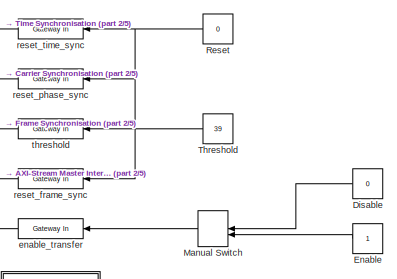
[diagram: root canvas - part 1/5, top right region]
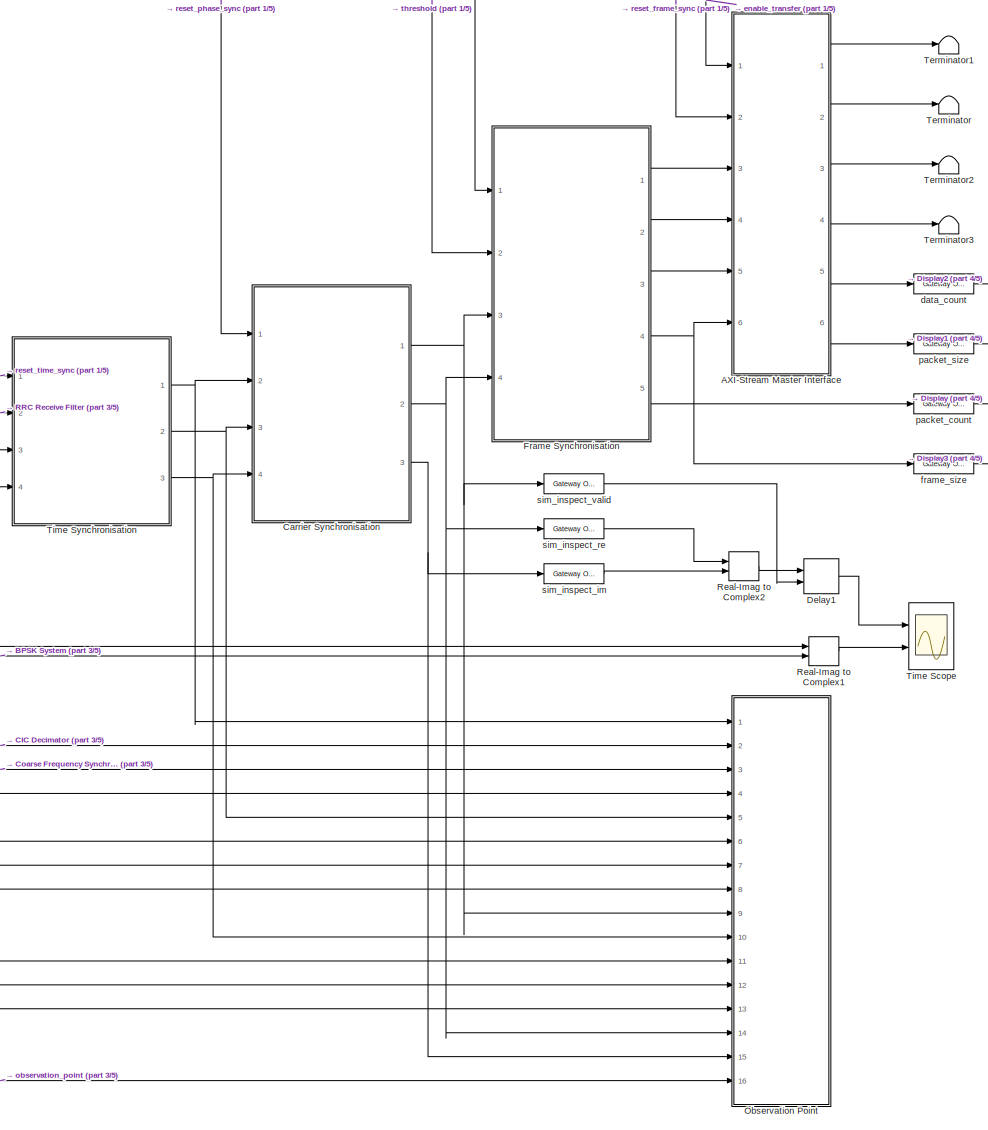
[diagram: root canvas - part 2/5, right side, full height]
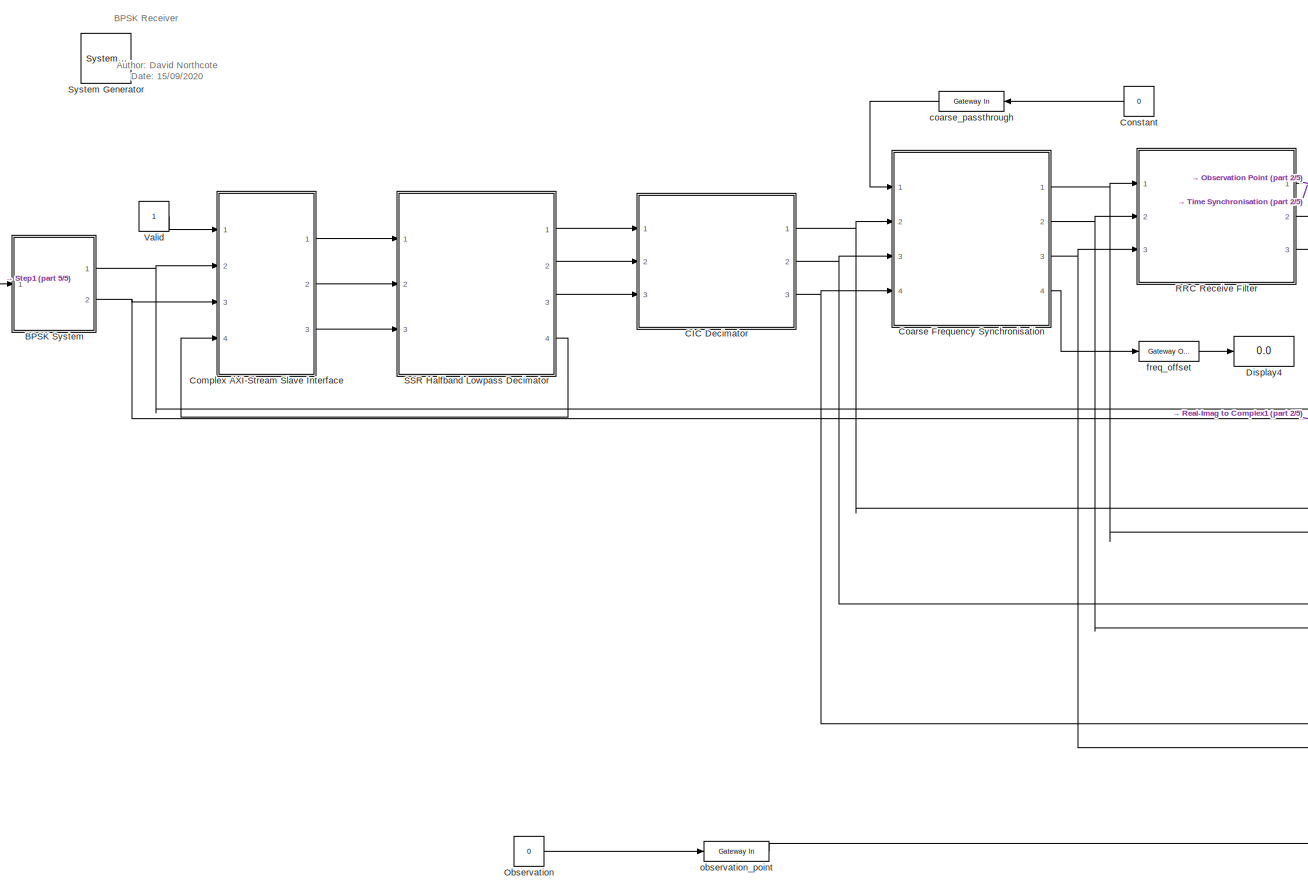
[diagram: root canvas - part 3/5, bottom left region]
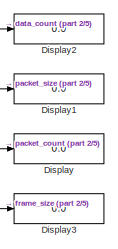
[diagram: root canvas - part 4/5, middle right region]
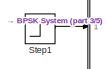
[diagram: root canvas - part 5/5, middle left region]
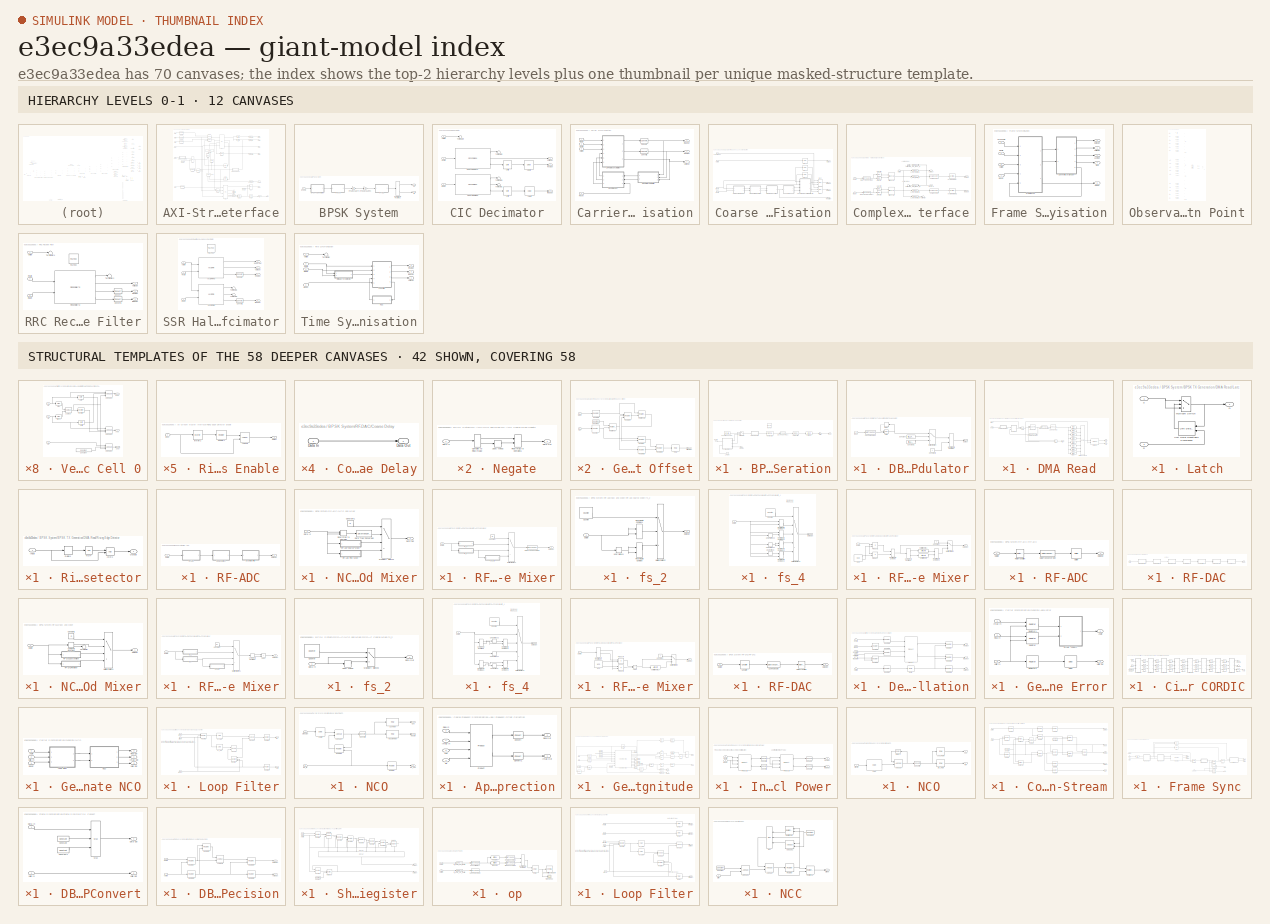
[diagram: thumbnail index - top-2 hierarchy levels (12 canvases) + 42 structural-template representatives of the remaining 58 canvases]
MODEL slx_e3ec9a33edea
KIND model
CONFIG AbsTol = auto
CONFIG EnableMultiTasking = off
CONFIG FixedStep = auto
CONFIG InitFcn = setup_bpsk_receiver
CONFIG MaxStep = auto
CONFIG MinStep = auto
CONFIG RelTol = 1e-3
CONFIG SampleTimeConstraint = Unconstrained
CONFIG Solver = VariableStepAuto
CONFIG SolverName = VariableStepAuto
CONFIG StartTime = 0.0
CONFIG StopTime = 10000/3.2e6
BLOCK [Reference]  System Generator  REF=xbsIndex_r4/ System Generator
  AttributesFormatString = System\nGenerator
  Ports = []
  SourceBlock = xbsIndex_r4/ System Generator
  SourceType = Xilinx System Generator Block
  Tag = genX
  UserDataPersistent = on
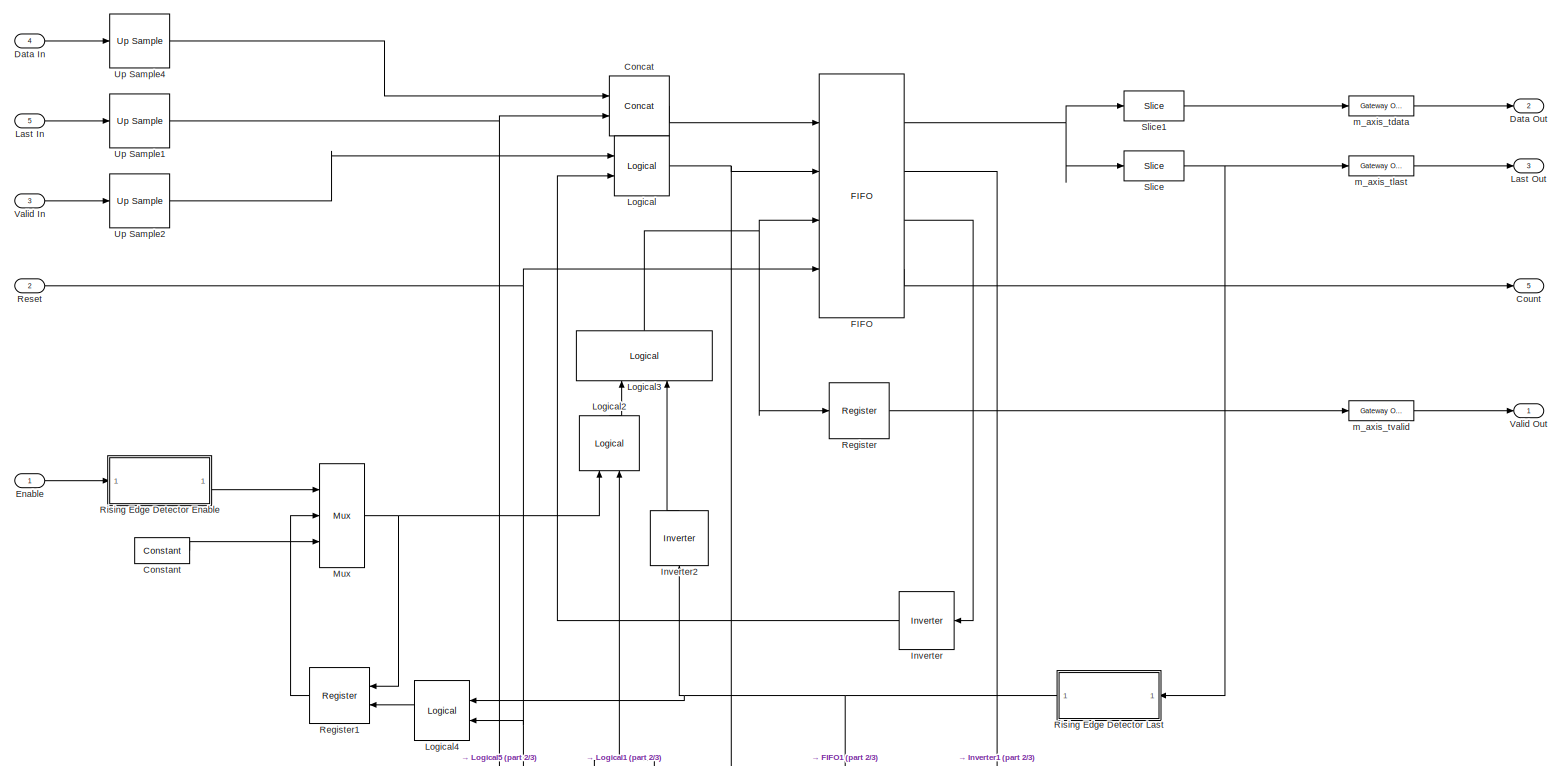
[diagram: AXI-Stream Master Interface - part 1/3, full width, top band]
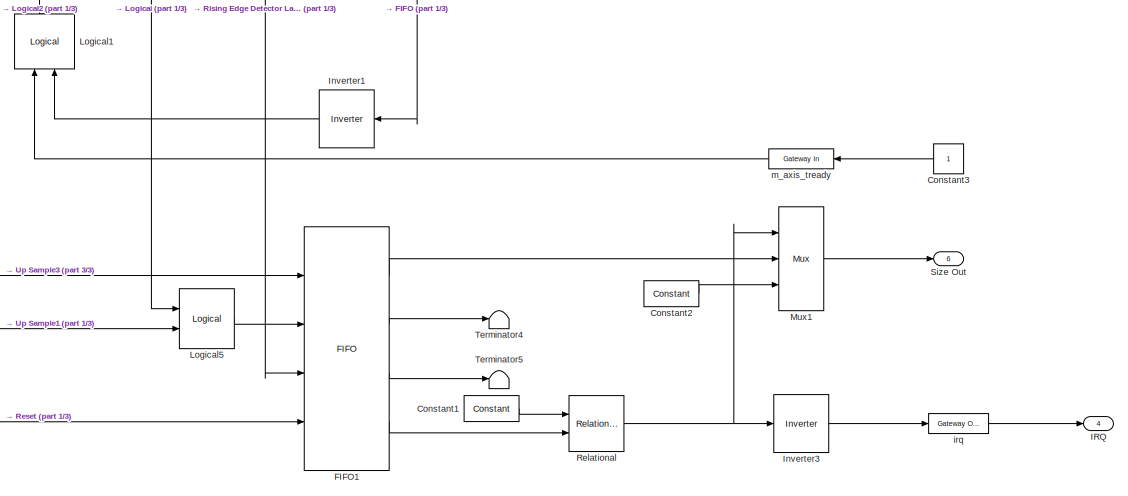
[diagram: AXI-Stream Master Interface - part 2/3, bottom right region]
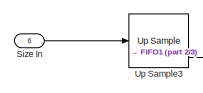
[diagram: AXI-Stream Master Interface - part 3/3, bottom left region]
BLOCK [SubSystem] AXI-Stream Master Interface
  Ports = [6, 6]
  RequestExecContextInheritance = off
BLOCK [Reference] AXI-Stream Master Interface/Concat  REF=xbsIndex_r4/Concat
  Ports = [2, 1]
  SourceBlock = xbsIndex_r4/Concat
  SourceType = Xilinx Bus Concatenator Block
BLOCK [Reference] AXI-Stream Master Interface/Constant  REF=xbsIndex_r4/Constant
  Ports = [0, 1]
  SourceBlock = xbsIndex_r4/Constant
  SourceType = Xilinx Constant Block Block
BLOCK [Reference] AXI-Stream Master Interface/Constant1  REF=xbsIndex_r4/Constant
  Ports = [0, 1]
  SourceBlock = xbsIndex_r4/Constant
  SourceType = Xilinx Constant Block Block
BLOCK [Reference] AXI-Stream Master Interface/Constant2  REF=xbsIndex_r4/Constant
  Ports = [0, 1]
  SourceBlock = xbsIndex_r4/Constant
  SourceType = Xilinx Constant Block Block
BLOCK [Constant] AXI-Stream Master Interface/Constant3
  SampleTime = 1/64e6
BLOCK [Outport] AXI-Stream Master Interface/Count
  Port = 5
  VectorParamsAs1DForOutWhenUnconnected = off
BLOCK [Inport] AXI-Stream Master Interface/Data In
  Port = 4
BLOCK [Outport] AXI-Stream Master Interface/Data Out
  Port = 2
  VectorParamsAs1DForOutWhenUnconnected = off
BLOCK [Inport] AXI-Stream Master Interface/Enable
BLOCK [Reference] AXI-Stream Master Interface/FIFO  REF=xbsIndex_r4/FIFO
  Ports = [4, 4]
  SourceBlock = xbsIndex_r4/FIFO
  SourceType = Xilinx FIFO Block Block
BLOCK [Reference] AXI-Stream Master Interface/FIFO1  REF=xbsIndex_r4/FIFO
  Ports = [4, 4]
  SourceBlock = xbsIndex_r4/FIFO
  SourceType = Xilinx FIFO Block Block
BLOCK [Outport] AXI-Stream Master Interface/IRQ
  Port = 4
  VectorParamsAs1DForOutWhenUnconnected = off
BLOCK [Reference] AXI-Stream Master Interface/Inverter  REF=xbsIndex_r4/Inverter
  Ports = [1, 1]
  SourceBlock = xbsIndex_r4/Inverter
  SourceType = Xilinx Inverter Block
BLOCK [Reference] AXI-Stream Master Interface/Inverter1  REF=xbsIndex_r4/Inverter
  Ports = [1, 1]
  SourceBlock = xbsIndex_r4/Inverter
  SourceType = Xilinx Inverter Block
BLOCK [Reference] AXI-Stream Master Interface/Inverter2  REF=xbsIndex_r4/Inverter
  NameLocation = left
  Ports = [1, 1]
  SourceBlock = xbsIndex_r4/Inverter
  SourceType = Xilinx Inverter Block
BLOCK [Reference] AXI-Stream Master Interface/Inverter3  REF=xbsIndex_r4/Inverter
  Ports = [1, 1]
  SourceBlock = xbsIndex_r4/Inverter
  SourceType = Xilinx Inverter Block
BLOCK [Inport] AXI-Stream Master Interface/Last In
  Port = 5
BLOCK [Outport] AXI-Stream Master Interface/Last Out
  Port = 3
  VectorParamsAs1DForOutWhenUnconnected = off
BLOCK [Reference] AXI-Stream Master Interface/Logical  REF=xbsIndex_r4/Logical
  Ports = [2, 1]
  SourceBlock = xbsIndex_r4/Logical
  SourceType = Xilinx Logical Block Block
BLOCK [Reference] AXI-Stream Master Interface/Logical1  REF=xbsIndex_r4/Logical
  NameLocation = right
  Ports = [2, 1]
  SourceBlock = xbsIndex_r4/Logical
  SourceType = Xilinx Logical Block Block
BLOCK [Reference] AXI-Stream Master Interface/Logical2  REF=xbsIndex_r4/Logical
  NameLocation = right
  Ports = [2, 1]
  SourceBlock = xbsIndex_r4/Logical
  SourceType = Xilinx Logical Block Block
BLOCK [Reference] AXI-Stream Master Interface/Logical3  REF=xbsIndex_r4/Logical
  NameLocation = right
  Ports = [2, 1]
  SourceBlock = xbsIndex_r4/Logical
  SourceType = Xilinx Logical Block Block
BLOCK [Reference] AXI-Stream Master Interface/Logical4  REF=xbsIndex_r4/Logical
  Ports = [2, 1]
  SourceBlock = xbsIndex_r4/Logical
  SourceType = Xilinx Logical Block Block
BLOCK [Reference] AXI-Stream Master Interface/Logical5  REF=xbsIndex_r4/Logical
  Ports = [2, 1]
  SourceBlock = xbsIndex_r4/Logical
  SourceType = Xilinx Logical Block Block
BLOCK [Reference] AXI-Stream Master Interface/Mux  REF=xbsIndex_r4/Mux
  Ports = [3, 1]
  SourceBlock = xbsIndex_r4/Mux
  SourceType = Xilinx Bus Multiplexer Block
BLOCK [Reference] AXI-Stream Master Interface/Mux1  REF=xbsIndex_r4/Mux
  Ports = [3, 1]
  SourceBlock = xbsIndex_r4/Mux
  SourceType = Xilinx Bus Multiplexer Block
BLOCK [Reference] AXI-Stream Master Interface/Register  REF=xbsIndex_r4/Register
  Ports = [1, 1]
  SourceBlock = xbsIndex_r4/Register
  SourceType = Xilinx Register Block
BLOCK [Reference] AXI-Stream Master Interface/Register1  REF=xbsIndex_r4/Register
  Ports = [2, 1]
  SourceBlock = xbsIndex_r4/Register
  SourceType = Xilinx Register Block
BLOCK [Reference] AXI-Stream Master Interface/Relational  REF=xbsIndex_r4/Relational
  Ports = [2, 1]
  SourceBlock = xbsIndex_r4/Relational
  SourceType = Xilinx Arithmetic Relational Operator Block
BLOCK [Inport] AXI-Stream Master Interface/Reset
  Port = 2
BLOCK [SubSystem] AXI-Stream Master Interface/Rising Edge Detector Enable
  Ports = [1, 1]
  RequestExecContextInheritance = off
BLOCK [Inport] AXI-Stream Master Interface/Rising Edge Detector Enable/Input
BLOCK [Reference] AXI-Stream Master Interface/Rising Edge Detector Enable/Inverter2  REF=xbsIndex_r4/Inverter
  Ports = [1, 1]
  SourceBlock = xbsIndex_r4/Inverter
  SourceType = Xilinx Inverter Block
BLOCK [Reference] AXI-Stream Master Interface/Rising Edge Detector Enable/Logical3  REF=xbsIndex_r4/Logical
  Ports = [2, 1]
  SourceBlock = xbsIndex_r4/Logical
  SourceType = Xilinx Logical Block Block
BLOCK [Outport] AXI-Stream Master Interface/Rising Edge Detector Enable/Output
  VectorParamsAs1DForOutWhenUnconnected = off
BLOCK [Reference] AXI-Stream Master Interface/Rising Edge Detector Enable/Register1  REF=xbsIndex_r4/Register
  Ports = [1, 1]
  SourceBlock = xbsIndex_r4/Register
  SourceType = Xilinx Register Block
BLOCK [SubSystem] AXI-Stream Master Interface/Rising Edge Detector Last
  Ports = [1, 1]
  RequestExecContextInheritance = off
BLOCK [Inport] AXI-Stream Master Interface/Rising Edge Detector Last/Input
BLOCK [Reference] AXI-Stream Master Interface/Rising Edge Detector Last/Inverter2  REF=xbsIndex_r4/Inverter
  Ports = [1, 1]
  SourceBlock = xbsIndex_r4/Inverter
  SourceType = Xilinx Inverter Block
BLOCK [Reference] AXI-Stream Master Interface/Rising Edge Detector Last/Logical3  REF=xbsIndex_r4/Logical
  Ports = [2, 1]
  SourceBlock = xbsIndex_r4/Logical
  SourceType = Xilinx Logical Block Block
BLOCK [Outport] AXI-Stream Master Interface/Rising Edge Detector Last/Output
  VectorParamsAs1DForOutWhenUnconnected = off
BLOCK [Reference] AXI-Stream Master Interface/Rising Edge Detector Last/Register1  REF=xbsIndex_r4/Register
  Ports = [1, 1]
  SourceBlock = xbsIndex_r4/Register
  SourceType = Xilinx Register Block
BLOCK [Inport] AXI-Stream Master Interface/Size In
  Port = 6
BLOCK [Outport] AXI-Stream Master Interface/Size Out
  Port = 6
  VectorParamsAs1DForOutWhenUnconnected = off
BLOCK [Reference] AXI-Stream Master Interface/Slice  REF=xbsIndex_r4/Slice
  Ports = [1, 1]
  SourceBlock = xbsIndex_r4/Slice
  SourceType = Xilinx Bit Slice Extractor Block
BLOCK [Reference] AXI-Stream Master Interface/Slice1  REF=xbsIndex_r4/Slice
  Ports = [1, 1]
  SourceBlock = xbsIndex_r4/Slice
  SourceType = Xilinx Bit Slice Extractor Block
BLOCK [Terminator] AXI-Stream Master Interface/Terminator4
BLOCK [Terminator] AXI-Stream Master Interface/Terminator5
BLOCK [Reference] AXI-Stream Master Interface/Up Sample1  REF=xbsIndex_r4/Up Sample
  Ports = [1, 1]
  SourceBlock = xbsIndex_r4/Up Sample
  SourceType = Xilinx Up Sampler Block
BLOCK [Reference] AXI-Stream Master Interface/Up Sample2  REF=xbsIndex_r4/Up Sample
  Ports = [1, 1]
  SourceBlock = xbsIndex_r4/Up Sample
  SourceType = Xilinx Up Sampler Block
BLOCK [Reference] AXI-Stream Master Interface/Up Sample3  REF=xbsIndex_r4/Up Sample
  Ports = [1, 1]
  SourceBlock = xbsIndex_r4/Up Sample
  SourceType = Xilinx Up Sampler Block
BLOCK [Reference] AXI-Stream Master Interface/Up Sample4  REF=xbsIndex_r4/Up Sample
  Ports = [1, 1]
  SourceBlock = xbsIndex_r4/Up Sample
  SourceType = Xilinx Up Sampler Block
BLOCK [Inport] AXI-Stream Master Interface/Valid In
  Port = 3
BLOCK [Outport] AXI-Stream Master Interface/Valid Out
  VectorParamsAs1DForOutWhenUnconnected = off
BLOCK [Reference] AXI-Stream Master Interface/irq  REF=xbsIndex_r4/Gateway Out
  Ports = [1, 1]
  SourceBlock = xbsIndex_r4/Gateway Out
  SourceType = Xilinx Gateway Out Block
BLOCK [Reference] AXI-Stream Master Interface/m_axis_tdata  REF=xbsIndex_r4/Gateway Out
  Ports = [1, 1]
  SourceBlock = xbsIndex_r4/Gateway Out
  SourceType = Xilinx Gateway Out Block
BLOCK [Reference] AXI-Stream Master Interface/m_axis_tlast  REF=xbsIndex_r4/Gateway Out
  Ports = [1, 1]
  SourceBlock = xbsIndex_r4/Gateway Out
  SourceType = Xilinx Gateway Out Block
BLOCK [Reference] AXI-Stream Master Interface/m_axis_tready  REF=xbsIndex_r4/Gateway In
  Ports = [1, 1]
  SourceBlock = xbsIndex_r4/Gateway In
  SourceType = Xilinx Gateway In Block
BLOCK [Reference] AXI-Stream Master Interface/m_axis_tvalid  REF=xbsIndex_r4/Gateway Out
  Ports = [1, 1]
  SourceBlock = xbsIndex_r4/Gateway Out
  SourceType = Xilinx Gateway Out Block
BLOCK [SubSystem] BPSK System
  Ports = [1, 2]
  RequestExecContextInheritance = off
BLOCK [SubSystem] BPSK System/BPSK TX Generation
  Ports = [1, 1]
  RequestExecContextInheritance = off
BLOCK [Outport] BPSK System/BPSK TX Generation/BPSK
  VectorParamsAs1DForOutWhenUnconnected = off
BLOCK [Reference] BPSK System/BPSK TX Generation/Bernoulli Binary Generator  REF=commrandsrc3/Bernoulli Binary
Generator
  Ports = [0, 1]
  SourceBlock = commrandsrc3/Bernoulli Binary\nGenerator
  SourceProductBaseCode = CM
  SourceType = Bernoulli Binary Generator
BLOCK [Reference] BPSK System/BPSK TX Generation/CIC Interpolation  REF=dspmlti4/CIC
Interpolation
  Ports = [1, 1]
  SourceBlock = dspmlti4/CIC\nInterpolation
  SourceProductBaseCode = DS
  SourceType = CIC Interpolation
  UserDataPersistent = on
BLOCK [Constant] BPSK System/BPSK TX Generation/Constant
  SampleTime = 1/12.5e3
BLOCK [SubSystem] BPSK System/BPSK TX Generation/DBPSK Modulator
  Ports = [1, 1]
  RequestExecContextInheritance = off
BLOCK [DataTypeConversion] BPSK System/BPSK TX Generation/DBPSK Modulator/Cast To Boolean
  OutDataTypeStr = boolean
  RndMeth = Floor
  SaturateOnIntegerOverflow = off
BLOCK [Constant] BPSK System/BPSK TX Generation/DBPSK Modulator/Constant
  OutDataTypeStr = fixdt(1,16,14)
  SampleTime = -1
  Value = fi(1, 1, 16, 14)
BLOCK [Constant] BPSK System/BPSK TX Generation/DBPSK Modulator/Constant1
  OutDataTypeStr = fixdt(1,16,14)
  SampleTime = -1
  Value = fi(-1, 1, 16, 14)
BLOCK [Constant] BPSK System/BPSK TX Generation/DBPSK Modulator/Constant2
  OutDataTypeStr = Inherit: Inherit via back propagation
  SampleTime = -1
  Value = 0
BLOCK [Delay] BPSK System/BPSK TX Generation/DBPSK Modulator/Delay
  DelayLength = 1
  InputPortMap = u0
  Ports = [1, 1]
BLOCK [Inport] BPSK System/BPSK TX Generation/DBPSK Modulator/Input
BLOCK [MultiPortSwitch] BPSK System/BPSK TX Generation/DBPSK Modulator/Multiport Switch
  DataPortOrder = Zero-based contiguous
  InputSameDT = off
  Inputs = 2
  Ports = [3, 1]
  SaturateOnIntegerOverflow = off
  zeroidx = on
BLOCK [Outport] BPSK System/BPSK TX Generation/DBPSK Modulator/Output
  VectorParamsAs1DForOutWhenUnconnected = off
BLOCK [RealImagToComplex] BPSK System/BPSK TX Generation/DBPSK Modulator/Real-Imag to Complex
  Ports = [2, 1]
BLOCK [Logic] BPSK System/BPSK TX Generation/DBPSK Modulator/XOR
  AllPortsSameDT = off
  IconShape = distinctive
  Operator = XOR
  OutDataTypeStr = boolean
  Ports = [2, 1]
BLOCK [SubSystem] BPSK System/BPSK TX Generation/DMA Read
  Ports = [2, 3]
  RequestExecContextInheritance = off
BLOCK [Lookup_n-D] BPSK System/BPSK TX Generation/DMA Read/1-D Lookup Table
  BreakpointsForDimension1 = [0:1:numel(tx_data)-1]
  ExtrapMethod = Clip
  InternalRulePriority = Speed
  NumberOfTableDimensions = 1
  OutDataTypeStr = Inherit: Inherit from 'Table data'
  Ports = [1, 1]
  RndMeth = Simplest
  Table = tx_data
  TableDataTypeStr = Inherit: Inherit from 'Table data'
BLOCK [Logic] BPSK System/BPSK TX Generation/DMA Read/AND
  AllPortsSameDT = off
  IconShape = distinctive
  OutDataTypeStr = boolean
  Ports = [2, 1]
BLOCK [Logic] BPSK System/BPSK TX Generation/DMA Read/AND1
  AllPortsSameDT = off
  IconShape = distinctive
  OutDataTypeStr = boolean
  Ports = [2, 1]
BLOCK [Reference] BPSK System/BPSK TX Generation/DMA Read/Bit Slice  REF=hdlsllib/Logic and Bit
Operations/Bit Slice
  Ports = [1, 1]
  SourceBlock = hdlsllib/Logic and Bit\nOperations/Bit Slice
  SourceProductBaseCode = SL
  SourceType = Bit Slice
BLOCK [Reference] BPSK System/BPSK TX Generation/DMA Read/Bit Slice1  REF=hdlsllib/Logic and Bit
Operations/Bit Slice
  Ports = [1, 1]
  SourceBlock = hdlsllib/Logic and Bit\nOperations/Bit Slice
  SourceProductBaseCode = SL
  SourceType = Bit Slice
BLOCK [Reference] BPSK System/BPSK TX Generation/DMA Read/Bit Slice2  REF=hdlsllib/Logic and Bit
Operations/Bit Slice
  Ports = [1, 1]
  SourceBlock = hdlsllib/Logic and Bit\nOperations/Bit Slice
  SourceProductBaseCode = SL
  SourceType = Bit Slice
BLOCK [Reference] BPSK System/BPSK TX Generation/DMA Read/Bit Slice3  REF=hdlsllib/Logic and Bit
Operations/Bit Slice
  Ports = [1, 1]
  SourceBlock = hdlsllib/Logic and Bit\nOperations/Bit Slice
  SourceProductBaseCode = SL
  SourceType = Bit Slice
BLOCK [Reference] BPSK System/BPSK TX Generation/DMA Read/Bit Slice4  REF=hdlsllib/Logic and Bit
Operations/Bit Slice
  Ports = [1, 1]
  SourceBlock = hdlsllib/Logic and Bit\nOperations/Bit Slice
  SourceProductBaseCode = SL
  SourceType = Bit Slice
BLOCK [Reference] BPSK System/BPSK TX Generation/DMA Read/Bit Slice5  REF=hdlsllib/Logic and Bit
Operations/Bit Slice
  Ports = [1, 1]
  SourceBlock = hdlsllib/Logic and Bit\nOperations/Bit Slice
  SourceProductBaseCode = SL
  SourceType = Bit Slice
BLOCK [Reference] BPSK System/BPSK TX Generation/DMA Read/Bit Slice6  REF=hdlsllib/Logic and Bit
Operations/Bit Slice
  Ports = [1, 1]
  SourceBlock = hdlsllib/Logic and Bit\nOperations/Bit Slice
  SourceProductBaseCode = SL
  SourceType = Bit Slice
BLOCK [Reference] BPSK System/BPSK TX Generation/DMA Read/Bit Slice7  REF=hdlsllib/Logic and Bit
Operations/Bit Slice
  Ports = [1, 1]
  SourceBlock = hdlsllib/Logic and Bit\nOperations/Bit Slice
  SourceProductBaseCode = SL
  SourceType = Bit Slice
BLOCK [Reference] BPSK System/BPSK TX Generation/DMA Read/Compare To Constant  REF=simulink/Logic and Bit
Operations/Compare
To Constant
  Ports = [1, 1]
  SourceBlock = simulink/Logic and Bit\nOperations/Compare\nTo Constant
  SourceProductBaseCode = SL
  SourceType = Compare To Constant
BLOCK [DataTypeConversion] BPSK System/BPSK TX Generation/DMA Read/Data Type Conversion
  OutDataTypeStr = fixdt(0, ceil(log2(numel(tx_data))), 0)
  RndMeth = Floor
  SaturateOnIntegerOverflow = off
BLOCK [Reference] BPSK System/BPSK TX Generation/DMA Read/HDL Counter  REF=hdlsllib/Sources/HDL Counter
  Ports = [2, 1]
  SourceBlock = hdlsllib/Sources/HDL Counter
  SourceProductBaseCode = SL
  SourceType = HDL Counter
BLOCK [SubSystem] BPSK System/BPSK TX Generation/DMA Read/Latch
  Ports = [2, 1]
  RequestExecContextInheritance = off
BLOCK [MultiPortSwitch] BPSK System/BPSK TX Generation/DMA Read/Latch/Multiport Switch
  DataPortOrder = Zero-based contiguous
  InputSameDT = off
  Inputs = 2
  Ports = [3, 1]
  SaturateOnIntegerOverflow = off
  zeroidx = on
BLOCK [Outport] BPSK System/BPSK TX Generation/DMA Read/Latch/Q
  VectorParamsAs1DForOutWhenUnconnected = off
BLOCK [Inport] BPSK System/BPSK TX Generation/DMA Read/Latch/R
  Port = 2
BLOCK [Inport] BPSK System/BPSK TX Generation/DMA Read/Latch/S
BLOCK [Reference] BPSK System/BPSK TX Generation/DMA Read/Latch/Unit Delay Resettable Synchronous  REF=hdlsllib/Discrete/Unit Delay Resettable
Synchronous
  Ports = [2, 1]
  SourceBlock = hdlsllib/Discrete/Unit Delay Resettable\nSynchronous
  SourceProductBaseCode = SL
  SourceType = Unit Delay Resettable Synchronous
BLOCK [Concatenate] BPSK System/BPSK TX Generation/DMA Read/Matrix Concatenate
  ConcatenateDimension = 2
  Mode = Multidimensional array
  NumInputs = 8
  Ports = [8, 1]
BLOCK [SubSystem] BPSK System/BPSK TX Generation/DMA Read/Rising Edge Detector
  Ports = [1, 1]
  RequestExecContextInheritance = off
BLOCK [Logic] BPSK System/BPSK TX Generation/DMA Read/Rising Edge Detector/AND1
  AllPortsSameDT = off
  IconShape = distinctive
  OutDataTypeStr = boolean
  Ports = [2, 1]
BLOCK [Delay] BPSK System/BPSK TX Generation/DMA Read/Rising Edge Detector/Delay1
  DelayLength = 1
  InputPortMap = u0
  Ports = [1, 1]
BLOCK [Inport] BPSK System/BPSK TX Generation/DMA Read/Rising Edge Detector/Input
BLOCK [Logic] BPSK System/BPSK TX Generation/DMA Read/Rising Edge Detector/NOT
  AllPortsSameDT = off
  IconShape = distinctive
  Operator = NOT
  OutDataTypeStr = boolean
  Ports = [1, 1]
BLOCK [Outport] BPSK System/BPSK TX Generation/DMA Read/Rising Edge Detector/Output
  VectorParamsAs1DForOutWhenUnconnected = off
BLOCK [Reference] BPSK System/BPSK TX Generation/DMA Read/Serializer1D  REF=hdlsllib/HDL Operations/Serializer1D
  Ports = [2, 2]
  SourceBlock = hdlsllib/HDL Operations/Serializer1D
  SourceProductBaseCode = SL
  SourceType = Serializer1D
BLOCK [Inport] BPSK System/BPSK TX Generation/DMA Read/enable
BLOCK [Outport] BPSK System/BPSK TX Generation/DMA Read/tdata
  VectorParamsAs1DForOutWhenUnconnected = off
BLOCK [Outport] BPSK System/BPSK TX Generation/DMA Read/tlast
  Port = 3
  VectorParamsAs1DForOutWhenUnconnected = off
BLOCK [Inport] BPSK System/BPSK TX Generation/DMA Read/tready
  Port = 2
BLOCK [Outport] BPSK System/BPSK TX Generation/DMA Read/tvalid
  Port = 2
  VectorParamsAs1DForOutWhenUnconnected = off
BLOCK [DataTypeConversion] BPSK System/BPSK TX Generation/Data Type Conversion2
  OutDataTypeStr = fixdt(1,16,14)
  RndMeth = Floor
  SaturateOnIntegerOverflow = off
BLOCK [Inport] BPSK System/BPSK TX Generation/Enable
BLOCK [Reference] BPSK System/BPSK TX Generation/FDATool  REF=xbsIndex_r4/FDATool
  Ports = []
  SourceBlock = xbsIndex_r4/FDATool
  SourceType = Xilinx FDATool Interface Block
  UserDataPersistent = on
BLOCK [Reference] BPSK System/BPSK TX Generation/FIR Interpolation  REF=dspmlti4/FIR
Interpolation
  Ports = [1, 1]
  SourceBlock = dspmlti4/FIR\nInterpolation
  SourceProductBaseCode = DS
  SourceType = FIR Interpolation
  UserDataPersistent = on
BLOCK [Gain] BPSK System/BPSK TX Generation/Multiply
  Gain = fi(0.8192, 1, 16, 14)
  OutDataTypeStr = fixdt(1,16,14)
  ParamDataTypeStr = fixdt(1,16,15)
BLOCK [MultiPortSwitch] BPSK System/BPSK TX Generation/Multiport Switch
  DataPortOrder = Zero-based contiguous
  InputSameDT = off
  Inputs = 2
  Ports = [3, 1]
  SaturateOnIntegerOverflow = off
  zeroidx = on
BLOCK [ArithShift] BPSK System/BPSK TX Generation/Shift Arithmetic
  BitShiftDirection = Right
  BitShiftNumber = 33
  InputPortMap = u0
  Ports = [1, 1]
BLOCK [Terminator] BPSK System/BPSK TX Generation/Terminator1
BLOCK [ComplexToRealImag] BPSK System/Complex to Real-Imag
  Ports = [1, 2]
BLOCK [Inport] BPSK System/Enable
BLOCK [Outport] BPSK System/Im
  Port = 2
  VectorParamsAs1DForOutWhenUnconnected = off
BLOCK [Gain] BPSK System/RF Balun Gain RX
  Gain = 1/2
BLOCK [Gain] BPSK System/RF Balun Gain TX
  Gain = 1/2
BLOCK [SubSystem] BPSK System/RF-ADC
  Ports = [1, 1]
  RequestExecContextInheritance = off
BLOCK [Inport] BPSK System/RF-ADC/Data In
BLOCK [Outport] BPSK System/RF-ADC/Data Out
  VectorParamsAs1DForOutWhenUnconnected = off
BLOCK [SubSystem] BPSK System/RF-ADC/Decimation Filter
  Ports = [1, 1]
  RequestExecContextInheritance = off
BLOCK [Inport] BPSK System/RF-ADC/Decimation Filter/Data In
BLOCK [Outport] BPSK System/RF-ADC/Decimation Filter/Data Out
  VectorParamsAs1DForOutWhenUnconnected = off
BLOCK [Reference] BPSK System/RF-ADC/Decimation Filter/FIR 0  REF=dspmlti4/FIR
Decimation
  Ports = [1, 1]
  SourceBlock = dspmlti4/FIR\nDecimation
  SourceProductBaseCode = DS
  SourceType = FIR Decimation
  UserDataPersistent = on
BLOCK [Reference] BPSK System/RF-ADC/Decimation Filter/FIR 1  REF=dspmlti4/FIR
Decimation
  Ports = [1, 1]
  SourceBlock = dspmlti4/FIR\nDecimation
  SourceProductBaseCode = DS
  SourceType = FIR Decimation
  UserDataPersistent = on
BLOCK [Reference] BPSK System/RF-ADC/Decimation Filter/FIR 2  REF=dspmlti4/FIR
Decimation
  Ports = [1, 1]
  SourceBlock = dspmlti4/FIR\nDecimation
  SourceProductBaseCode = DS
  SourceType = FIR Decimation
  UserDataPersistent = on
BLOCK [SubSystem] BPSK System/RF-ADC/NCO and Mixer
  Ports = [1, 1]
  RequestExecContextInheritance = off
BLOCK [Constant] BPSK System/RF-ADC/NCO and Mixer/Constant1
  OutDataTypeStr = fixdt(0,2,0)
  SampleTime = -1
  Value = m
BLOCK [Inport] BPSK System/RF-ADC/NCO and Mixer/Data In
BLOCK [Outport] BPSK System/RF-ADC/NCO and Mixer/Data Out
  VectorParamsAs1DForOutWhenUnconnected = off
BLOCK [DataTypeConversion] BPSK System/RF-ADC/NCO and Mixer/Data Type Conversion
  OutDataTypeStr = fixdt(1,16,14)
  RndMeth = Floor
  SaturateOnIntegerOverflow = off
BLOCK [MultiPortSwitch] BPSK System/RF-ADC/NCO and Mixer/Multiport Switch1
  DataPortOrder = Zero-based contiguous
  InputSameDT = off
  Ports = [4, 1]
  SaturateOnIntegerOverflow = off
  zeroidx = on
BLOCK [SubSystem] BPSK System/RF-ADC/NCO and Mixer/RF-ADC Coarse Mixer
  Ports = [1, 1]
  RequestExecContextInheritance = off
BLOCK [Constant] BPSK System/RF-ADC/NCO and Mixer/RF-ADC Coarse Mixer/Constant
  OutDataTypeStr = fixdt(0,2,0)
  SampleTime = -1
  Value = mc
BLOCK [Inport] BPSK System/RF-ADC/NCO and Mixer/RF-ADC Coarse Mixer/Data In
BLOCK [Outport] BPSK System/RF-ADC/NCO and Mixer/RF-ADC Coarse Mixer/Data Out
  VectorParamsAs1DForOutWhenUnconnected = off
BLOCK [DataTypeConversion] BPSK System/RF-ADC/NCO and Mixer/RF-ADC Coarse Mixer/Data Type Conversion
  OutDataTypeStr = fixdt(1,16,14)
  RndMeth = Floor
  SaturateOnIntegerOverflow = off
BLOCK [MultiPortSwitch] BPSK System/RF-ADC/NCO and Mixer/RF-ADC Coarse Mixer/Multiport Switch1
  DataPortOrder = Zero-based contiguous
  InputSameDT = off
  Ports = [4, 1]
  SaturateOnIntegerOverflow = off
  zeroidx = on
BLOCK [SubSystem] BPSK System/RF-ADC/NCO and Mixer/RF-ADC Coarse Mixer/Negate
  Ports = [1, 1]
  RequestExecContextInheritance = off
BLOCK [ComplexToRealImag] BPSK System/RF-ADC/NCO and Mixer/RF-ADC Coarse Mixer/Negate/Complex to Real-Imag2
  Ports = [1, 2]
BLOCK [Inport] BPSK System/RF-ADC/NCO and Mixer/RF-ADC Coarse Mixer/Negate/Data In
BLOCK [Outport] BPSK System/RF-ADC/NCO and Mixer/RF-ADC Coarse Mixer/Negate/Data Out
  VectorParamsAs1DForOutWhenUnconnected = off
BLOCK [RealImagToComplex] BPSK System/RF-ADC/NCO and Mixer/RF-ADC Coarse Mixer/Negate/Real-Imag to Complex1
  Ports = [2, 1]
BLOCK [UnaryMinus] BPSK System/RF-ADC/NCO and Mixer/RF-ADC Coarse Mixer/Negate/Unary Minus
BLOCK [SubSystem] BPSK System/RF-ADC/NCO and Mixer/RF-ADC Coarse Mixer/fs_2
  Ports = [1, 1]
  RequestExecContextInheritance = off
BLOCK [Reference] BPSK System/RF-ADC/NCO and Mixer/RF-ADC Coarse Mixer/fs_2/Counter  REF=dspswit3/Counter
  Ports = [0, 1]
  SourceBlock = dspswit3/Counter
  SourceProductBaseCode = DS
  SourceType = Counter
BLOCK [Inport] BPSK System/RF-ADC/NCO and Mixer/RF-ADC Coarse Mixer/fs_2/Data In
BLOCK [Outport] BPSK System/RF-ADC/NCO and Mixer/RF-ADC Coarse Mixer/fs_2/Data Out
  VectorParamsAs1DForOutWhenUnconnected = off
BLOCK [MultiPortSwitch] BPSK System/RF-ADC/NCO and Mixer/RF-ADC Coarse Mixer/fs_2/Multiport Switch2
  DataPortOrder = Zero-based contiguous
  InputSameDT = off
  Inputs = 2
  Ports = [3, 1]
  SaturateOnIntegerOverflow = off
  zeroidx = on
BLOCK [RealImagToComplex] BPSK System/RF-ADC/NCO and Mixer/RF-ADC Coarse Mixer/fs_2/Real-Imag to Complex
  Ports = [2, 1]
BLOCK [RealImagToComplex] BPSK System/RF-ADC/NCO and Mixer/RF-ADC Coarse Mixer/fs_2/Real-Imag to Complex1
  Ports = [2, 1]
BLOCK [UnaryMinus] BPSK System/RF-ADC/NCO and Mixer/RF-ADC Coarse Mixer/fs_2/Unary Minus1
BLOCK [SubSystem] BPSK System/RF-ADC/NCO and Mixer/RF-ADC Coarse Mixer/fs_4
  Ports = [1, 1]
  RequestExecContextInheritance = off
BLOCK [Reference] BPSK System/RF-ADC/NCO and Mixer/RF-ADC Coarse Mixer/fs_4/Counter  REF=dspswit3/Counter
  Ports = [0, 1]
  SourceBlock = dspswit3/Counter
  SourceProductBaseCode = DS
  SourceType = Counter
BLOCK [Inport] BPSK System/RF-ADC/NCO and Mixer/RF-ADC Coarse Mixer/fs_4/Data In
BLOCK [Outport] BPSK System/RF-ADC/NCO and Mixer/RF-ADC Coarse Mixer/fs_4/Data Out
  VectorParamsAs1DForOutWhenUnconnected = off
BLOCK [MultiPortSwitch] BPSK System/RF-ADC/NCO and Mixer/RF-ADC Coarse Mixer/fs_4/Multiport Switch2
  DataPortOrder = Zero-based contiguous
  InputSameDT = off
  Inputs = 4
  Ports = [5, 1]
  SaturateOnIntegerOverflow = off
  zeroidx = on
BLOCK [RealImagToComplex] BPSK System/RF-ADC/NCO and Mixer/RF-ADC Coarse Mixer/fs_4/Real-Imag to Complex1
  Ports = [2, 1]
BLOCK [RealImagToComplex] BPSK System/RF-ADC/NCO and Mixer/RF-ADC Coarse Mixer/fs_4/Real-Imag to Complex2
  Ports = [2, 1]
BLOCK [RealImagToComplex] BPSK System/RF-ADC/NCO and Mixer/RF-ADC Coarse Mixer/fs_4/Real-Imag to Complex3
  Ports = [2, 1]
BLOCK [RealImagToComplex] BPSK System/RF-ADC/NCO and Mixer/RF-ADC Coarse Mixer/fs_4/Real-Imag to Complex4
  Ports = [2, 1]
BLOCK [UnaryMinus] BPSK System/RF-ADC/NCO and Mixer/RF-ADC Coarse Mixer/fs_4/Unary Minus
BLOCK [UnaryMinus] BPSK System/RF-ADC/NCO and Mixer/RF-ADC Coarse Mixer/fs_4/Unary Minus1
BLOCK [UnaryMinus] BPSK System/RF-ADC/NCO and Mixer/RF-ADC Coarse Mixer/fs_4/Unary Minus2
BLOCK [SubSystem] BPSK System/RF-ADC/NCO and Mixer/RF-ADC Fine Mixer
  Ports = [1, 1]
  RequestExecContextInheritance = off
BLOCK [ComplexToRealImag] BPSK System/RF-ADC/NCO and Mixer/RF-ADC Fine Mixer/Complex to Real-Imag
  Ports = [1, 2]
BLOCK [Constant] BPSK System/RF-ADC/NCO and Mixer/RF-ADC Fine Mixer/Constant
  SampleTime = -1
  Value = 0
BLOCK [Inport] BPSK System/RF-ADC/NCO and Mixer/RF-ADC Fine Mixer/Data In
BLOCK [Outport] BPSK System/RF-ADC/NCO and Mixer/RF-ADC Fine Mixer/Data Out
  VectorParamsAs1DForOutWhenUnconnected = off
BLOCK [MultiPortSwitch] BPSK System/RF-ADC/NCO and Mixer/RF-ADC Fine Mixer/Multiport Switch
  DataPortOrder = Zero-based contiguous
  InputSameDT = off
  Inputs = 2
  Ports = [3, 1]
  SaturateOnIntegerOverflow = off
  zeroidx = on
BLOCK [Reference] BPSK System/RF-ADC/NCO and Mixer/RF-ADC Fine Mixer/NCO  REF=dspsigops/NCO
  Ports = [0, 2]
  SourceBlock = dspsigops/NCO
  SourceProductBaseCode = DS
  SourceType = NCO
BLOCK [Product] BPSK System/RF-ADC/NCO and Mixer/RF-ADC Fine Mixer/Product
  OutDataTypeStr = fixdt(1,16,14)
  Ports = [2, 1]
BLOCK [Product] BPSK System/RF-ADC/NCO and Mixer/RF-ADC Fine Mixer/Product1
  OutDataTypeStr = fixdt(1,16,14)
  Ports = [2, 1]
BLOCK [RealImagToComplex] BPSK System/RF-ADC/NCO and Mixer/RF-ADC Fine Mixer/Real-Imag to Complex
  Ports = [2, 1]
BLOCK [RealImagToComplex] BPSK System/RF-ADC/NCO and Mixer/RF-ADC Fine Mixer/Real-Imag to Complex1
  Ports = [2, 1]
BLOCK [ArithShift] BPSK System/RF-ADC/NCO and Mixer/RF-ADC Fine Mixer/Shift Arithmetic
  BitShiftDirection = Right
  BitShiftNumber = 1
  InputPortMap = u0
  Ports = [1, 1]
BLOCK [ArithShift] BPSK System/RF-ADC/NCO and Mixer/RF-ADC Fine Mixer/Shift Arithmetic1
  BitShiftDirection = Right
  BitShiftNumber = 1
  InputPortMap = u0
  Ports = [1, 1]
BLOCK [RealImagToComplex] BPSK System/RF-ADC/NCO and Mixer/Real-Imag to Complex
  Ports = [2, 1]
BLOCK [SubSystem] BPSK System/RF-ADC/RF-ADC
  Ports = [1, 1]
  RequestExecContextInheritance = off
BLOCK [Buffer] BPSK System/RF-ADC/RF-ADC/Buffer
  N = ssr
  OutputFrames = off
BLOCK [Inport] BPSK System/RF-ADC/RF-ADC/Data In
BLOCK [Outport] BPSK System/RF-ADC/RF-ADC/Data Out
  VectorParamsAs1DForOutWhenUnconnected = off
BLOCK [DataTypeConversion] BPSK System/RF-ADC/RF-ADC/Data Type Conversion
  OutDataTypeStr = fixdt(1,12,10)
  RndMeth = Floor
  SaturateOnIntegerOverflow = off
BLOCK [RateTransition] BPSK System/RF-ADC/RF-ADC/Rate Transition
  OutPortSampleTime = 1/fs
BLOCK [SubSystem] BPSK System/RF-DAC
  Ports = [1, 1]
  RequestExecContextInheritance = off
BLOCK [SubSystem] BPSK System/RF-DAC/Coarse Delay
  Ports = [1, 1]
  RequestExecContextInheritance = off
BLOCK [Inport] BPSK System/RF-DAC/Coarse Delay/Data In
BLOCK [Outport] BPSK System/RF-DAC/Coarse Delay/Data Out
  VectorParamsAs1DForOutWhenUnconnected = off
BLOCK [Inport] BPSK System/RF-DAC/Data In
BLOCK [Outport] BPSK System/RF-DAC/Data Out
  VectorParamsAs1DForOutWhenUnconnected = off
BLOCK [SubSystem] BPSK System/RF-DAC/Interpolation Filter
  Ports = [1, 1]
  RequestExecContextInheritance = off
BLOCK [Inport] BPSK System/RF-DAC/Interpolation Filter/Data In
BLOCK [Outport] BPSK System/RF-DAC/Interpolation Filter/Data Out
  VectorParamsAs1DForOutWhenUnconnected = off
BLOCK [Reference] BPSK System/RF-DAC/Interpolation Filter/FIR 0  REF=dspmlti4/FIR
Interpolation
  Ports = [1, 1]
  SourceBlock = dspmlti4/FIR\nInterpolation
  SourceProductBaseCode = DS
  SourceType = FIR Interpolation
  UserDataPersistent = on
BLOCK [Reference] BPSK System/RF-DAC/Interpolation Filter/FIR 1  REF=dspmlti4/FIR
Interpolation
  Ports = [1, 1]
  SourceBlock = dspmlti4/FIR\nInterpolation
  SourceProductBaseCode = DS
  SourceType = FIR Interpolation
  UserDataPersistent = on
BLOCK [Reference] BPSK System/RF-DAC/Interpolation Filter/FIR 2  REF=dspmlti4/FIR
Interpolation
  Ports = [1, 1]
  SourceBlock = dspmlti4/FIR\nInterpolation
  SourceProductBaseCode = DS
  SourceType = FIR Interpolation
  UserDataPersistent = on
BLOCK [SubSystem] BPSK System/RF-DAC/NCO and Mixer
  Ports = [1, 1]
  RequestExecContextInheritance = off
BLOCK [ComplexToRealImag] BPSK System/RF-DAC/NCO and Mixer/Complex to Real-Imag
  Ports = [1, 2]
BLOCK [Constant] BPSK System/RF-DAC/NCO and Mixer/Constant1
  OutDataTypeStr = fixdt(0,2,0)
  SampleTime = -1
  Value = m
BLOCK [Inport] BPSK System/RF-DAC/NCO and Mixer/Data In
BLOCK [Outport] BPSK System/RF-DAC/NCO and Mixer/Data Out
  VectorParamsAs1DForOutWhenUnconnected = off
BLOCK [MultiPortSwitch] BPSK System/RF-DAC/NCO and Mixer/Multiport Switch1
  DataPortOrder = Zero-based contiguous
  InputSameDT = off
  Ports = [4, 1]
  SaturateOnIntegerOverflow = off
  zeroidx = on
BLOCK [SubSystem] BPSK System/RF-DAC/NCO and Mixer/RF-DAC Coarse Mixer
  Ports = [1, 1]
  RequestExecContextInheritance = off
BLOCK [Sum] BPSK System/RF-DAC/NCO and Mixer/RF-DAC Coarse Mixer/Add2
  IconShape = rectangular
  Ports = [2, 1]
BLOCK [ComplexToRealImag] BPSK System/RF-DAC/NCO and Mixer/RF-DAC Coarse Mixer/Complex to Real-Imag
  Ports = [1, 2]
BLOCK [Constant] BPSK System/RF-DAC/NCO and Mixer/RF-DAC Coarse Mixer/Constant
  OutDataTypeStr = fixdt(0,2,0)
  SampleTime = -1
  Value = mc
BLOCK [Inport] BPSK System/RF-DAC/NCO and Mixer/RF-DAC Coarse Mixer/Data In
BLOCK [Outport] BPSK System/RF-DAC/NCO and Mixer/RF-DAC Coarse Mixer/Data Out
  VectorParamsAs1DForOutWhenUnconnected = off
BLOCK [MultiPortSwitch] BPSK System/RF-DAC/NCO and Mixer/RF-DAC Coarse Mixer/Multiport Switch1
  DataPortOrder = Zero-based contiguous
  InputSameDT = off
  Ports = [4, 1]
  SaturateOnIntegerOverflow = off
  zeroidx = on
BLOCK [SubSystem] BPSK System/RF-DAC/NCO and Mixer/RF-DAC Coarse Mixer/Negate
  Ports = [1, 1]
  RequestExecContextInheritance = off
BLOCK [ComplexToRealImag] BPSK System/RF-DAC/NCO and Mixer/RF-DAC Coarse Mixer/Negate/Complex to Real-Imag2
  Ports = [1, 2]
BLOCK [Inport] BPSK System/RF-DAC/NCO and Mixer/RF-DAC Coarse Mixer/Negate/Data In
BLOCK [Outport] BPSK System/RF-DAC/NCO and Mixer/RF-DAC Coarse Mixer/Negate/Data Out
  VectorParamsAs1DForOutWhenUnconnected = off
BLOCK [RealImagToComplex] BPSK System/RF-DAC/NCO and Mixer/RF-DAC Coarse Mixer/Negate/Real-Imag to Complex1
  Ports = [2, 1]
BLOCK [UnaryMinus] BPSK System/RF-DAC/NCO and Mixer/RF-DAC Coarse Mixer/Negate/Unary Minus
BLOCK [SubSystem] BPSK System/RF-DAC/NCO and Mixer/RF-DAC Coarse Mixer/fs_2
  Ports = [1, 1]
  RequestExecContextInheritance = off
BLOCK [Reference] BPSK System/RF-DAC/NCO and Mixer/RF-DAC Coarse Mixer/fs_2/Counter  REF=dspswit3/Counter
  Ports = [0, 1]
  SourceBlock = dspswit3/Counter
  SourceProductBaseCode = DS
  SourceType = Counter
BLOCK [Inport] BPSK System/RF-DAC/NCO and Mixer/RF-DAC Coarse Mixer/fs_2/Data In
BLOCK [Outport] BPSK System/RF-DAC/NCO and Mixer/RF-DAC Coarse Mixer/fs_2/Data Out
  VectorParamsAs1DForOutWhenUnconnected = off
BLOCK [MultiPortSwitch] BPSK System/RF-DAC/NCO and Mixer/RF-DAC Coarse Mixer/fs_2/Multiport Switch2
  DataPortOrder = Zero-based contiguous
  InputSameDT = off
  Inputs = 2
  Ports = [3, 1]
  SaturateOnIntegerOverflow = off
  zeroidx = on
BLOCK [UnaryMinus] BPSK System/RF-DAC/NCO and Mixer/RF-DAC Coarse Mixer/fs_2/Unary Minus
BLOCK [SubSystem] BPSK System/RF-DAC/NCO and Mixer/RF-DAC Coarse Mixer/fs_4
  Ports = [1, 1]
  RequestExecContextInheritance = off
BLOCK [ComplexToRealImag] BPSK System/RF-DAC/NCO and Mixer/RF-DAC Coarse Mixer/fs_4/Complex to Real-Imag
  Ports = [1, 2]
BLOCK [ComplexToRealImag] BPSK System/RF-DAC/NCO and Mixer/RF-DAC Coarse Mixer/fs_4/Complex to Real-Imag1
  Ports = [1, 2]
BLOCK [Reference] BPSK System/RF-DAC/NCO and Mixer/RF-DAC Coarse Mixer/fs_4/Counter  REF=dspswit3/Counter
  Ports = [0, 1]
  SourceBlock = dspswit3/Counter
  SourceProductBaseCode = DS
  SourceType = Counter
BLOCK [Inport] BPSK System/RF-DAC/NCO and Mixer/RF-DAC Coarse Mixer/fs_4/Data In
BLOCK [Outport] BPSK System/RF-DAC/NCO and Mixer/RF-DAC Coarse Mixer/fs_4/Data Out
  VectorParamsAs1DForOutWhenUnconnected = off
BLOCK [MultiPortSwitch] BPSK System/RF-DAC/NCO and Mixer/RF-DAC Coarse Mixer/fs_4/Multiport Switch2
  DataPortOrder = Zero-based contiguous
  InputSameDT = off
  Inputs = 4
  Ports = [5, 1]
  SaturateOnIntegerOverflow = off
  zeroidx = on
BLOCK [RealImagToComplex] BPSK System/RF-DAC/NCO and Mixer/RF-DAC Coarse Mixer/fs_4/Real-Imag to Complex2
  Ports = [2, 1]
BLOCK [RealImagToComplex] BPSK System/RF-DAC/NCO and Mixer/RF-DAC Coarse Mixer/fs_4/Real-Imag to Complex3
  Ports = [2, 1]
BLOCK [UnaryMinus] BPSK System/RF-DAC/NCO and Mixer/RF-DAC Coarse Mixer/fs_4/Unary Minus
BLOCK [UnaryMinus] BPSK System/RF-DAC/NCO and Mixer/RF-DAC Coarse Mixer/fs_4/Unary Minus1
BLOCK [UnaryMinus] BPSK System/RF-DAC/NCO and Mixer/RF-DAC Coarse Mixer/fs_4/Unary Minus2
BLOCK [SubSystem] BPSK System/RF-DAC/NCO and Mixer/RF-DAC Fine Mixer
  Ports = [1, 1]
  RequestExecContextInheritance = off
BLOCK [Sum] BPSK System/RF-DAC/NCO and Mixer/RF-DAC Fine Mixer/Add2
  IconShape = rectangular
  Ports = [2, 1]
BLOCK [ComplexToRealImag] BPSK System/RF-DAC/NCO and Mixer/RF-DAC Fine Mixer/Complex to Real-Imag1
  Ports = [1, 2]
BLOCK [Constant] BPSK System/RF-DAC/NCO and Mixer/RF-DAC Fine Mixer/Constant
  OutDataTypeStr = boolean
  SampleTime = -1
  Value = 0
BLOCK [Inport] BPSK System/RF-DAC/NCO and Mixer/RF-DAC Fine Mixer/Data In
BLOCK [Outport] BPSK System/RF-DAC/NCO and Mixer/RF-DAC Fine Mixer/Data Out
  VectorParamsAs1DForOutWhenUnconnected = off
BLOCK [MultiPortSwitch] BPSK System/RF-DAC/NCO and Mixer/RF-DAC Fine Mixer/Multiport Switch
  DataPortOrder = Zero-based contiguous
  InputSameDT = off
  Inputs = 2
  Ports = [3, 1]
  SaturateOnIntegerOverflow = off
  zeroidx = on
BLOCK [Reference] BPSK System/RF-DAC/NCO and Mixer/RF-DAC Fine Mixer/NCO  REF=dspsigops/NCO
  Ports = [0, 2]
  SourceBlock = dspsigops/NCO
  SourceProductBaseCode = DS
  SourceType = NCO
BLOCK [Product] BPSK System/RF-DAC/NCO and Mixer/RF-DAC Fine Mixer/Product1
  OutDataTypeStr = Inherit: Same as first input
  Ports = [2, 1]
BLOCK [Product] BPSK System/RF-DAC/NCO and Mixer/RF-DAC Fine Mixer/Product4
  OutDataTypeStr = Inherit: Same as first input
  Ports = [2, 1]
BLOCK [ArithShift] BPSK System/RF-DAC/NCO and Mixer/RF-DAC Fine Mixer/Shift Arithmetic1
  BitShiftDirection = Right
  BitShiftNumber = 1
  InputPortMap = u0
  Ports = [1, 1]
BLOCK [Terminator] BPSK System/RF-DAC/NCO and Mixer/Terminator
BLOCK [SubSystem] BPSK System/RF-DAC/Output Filter
  Ports = [1, 1]
  RequestExecContextInheritance = off
BLOCK [Inport] BPSK System/RF-DAC/Output Filter/Data In
BLOCK [Outport] BPSK System/RF-DAC/Output Filter/Data Out
  VectorParamsAs1DForOutWhenUnconnected = off
BLOCK [SubSystem] BPSK System/RF-DAC/QMC Gain & Phase
  Ports = [1, 1]
  RequestExecContextInheritance = off
BLOCK [Inport] BPSK System/RF-DAC/QMC Gain & Phase/Data In
BLOCK [Outport] BPSK System/RF-DAC/QMC Gain & Phase/Data Out
  VectorParamsAs1DForOutWhenUnconnected = off
BLOCK [SubSystem] BPSK System/RF-DAC/QMC Threshold
  Ports = [1, 1]
  RequestExecContextInheritance = off
BLOCK [Inport] BPSK System/RF-DAC/QMC Threshold/Data In
BLOCK [Outport] BPSK System/RF-DAC/QMC Threshold/Data Out
  VectorParamsAs1DForOutWhenUnconnected = off
BLOCK [SubSystem] BPSK System/RF-DAC/RF-DAC
  Ports = [1, 1]
  RequestExecContextInheritance = off
BLOCK [DataTypeConversion] BPSK System/RF-DAC/RF-DAC/Cast To Double
  OutDataTypeStr = double
  RndMeth = Floor
  SaturateOnIntegerOverflow = off
BLOCK [Inport] BPSK System/RF-DAC/RF-DAC/Data In
BLOCK [Outport] BPSK System/RF-DAC/RF-DAC/Data Out
  VectorParamsAs1DForOutWhenUnconnected = off
BLOCK [RateTransition] BPSK System/RF-DAC/RF-DAC/Rate Transition
  OutPortSampleTime = 0
BLOCK [Unbuffer] BPSK System/RF-DAC/RF-DAC/Unbuffer
  Ports = [1, 1]
BLOCK [Outport] BPSK System/Re
  VectorParamsAs1DForOutWhenUnconnected = off
BLOCK [SubSystem] CIC Decimator
  Ports = [3, 3]
  RequestExecContextInheritance = off
BLOCK [Reference] CIC Decimator/CIC Decimator Imag  REF=xbsIndex_r4/CIC Compiler 4.0 
  Ports = [1, 3]
  SourceBlock = xbsIndex_r4/CIC Compiler 4.0
  SourceType = Xilinx CIC Compiler 4.0 Block
BLOCK [Reference] CIC Decimator/CIC Decimator Real  REF=xbsIndex_r4/CIC Compiler 4.0 
  Ports = [1, 3]
  SourceBlock = xbsIndex_r4/CIC Compiler 4.0
  SourceType = Xilinx CIC Compiler 4.0 Block
BLOCK [Reference] CIC Decimator/CMult1  REF=xbsIndex_r4/CMult
  Ports = [1, 1]
  SourceBlock = xbsIndex_r4/CMult
  SourceType = Xilinx Constant Multiplier Block
BLOCK [Reference] CIC Decimator/CMult2  REF=xbsIndex_r4/CMult
  Ports = [1, 1]
  SourceBlock = xbsIndex_r4/CMult
  SourceType = Xilinx Constant Multiplier Block
BLOCK [Inport] CIC Decimator/Imag In
  Port = 3
BLOCK [Outport] CIC Decimator/Imag Out
  Port = 3
  VectorParamsAs1DForOutWhenUnconnected = off
BLOCK [Inport] CIC Decimator/Real In
  Port = 2
BLOCK [Outport] CIC Decimator/Real Out
  Port = 2
  VectorParamsAs1DForOutWhenUnconnected = off
BLOCK [Reference] CIC Decimator/Shift1  REF=xbsIndex_r4/Shift
  Ports = [1, 1]
  SourceBlock = xbsIndex_r4/Shift
  SourceType = Xilinx Binary Shift Operator Block
BLOCK [Reference] CIC Decimator/Shift2  REF=xbsIndex_r4/Shift
  Ports = [1, 1]
  SourceBlock = xbsIndex_r4/Shift
  SourceType = Xilinx Binary Shift Operator Block
BLOCK [Terminator] CIC Decimator/Terminator1
BLOCK [Terminator] CIC Decimator/Terminator2
BLOCK [Terminator] CIC Decimator/Terminator3
BLOCK [Terminator] CIC Decimator/Terminator4
BLOCK [Inport] CIC Decimator/Valid In
BLOCK [Outport] CIC Decimator/Valid Out
  VectorParamsAs1DForOutWhenUnconnected = off
BLOCK [SubSystem] Carrier Synchronisation
  Ports = [4, 3]
  RequestExecContextInheritance = off
BLOCK [Reference] Carrier Synchronisation/Convert  REF=xbsIndex_r4/Convert
  Ports = [1, 1]
  SourceBlock = xbsIndex_r4/Convert
  SourceType = Xilinx Type Converter Block
BLOCK [Reference] Carrier Synchronisation/Convert1  REF=xbsIndex_r4/Convert
  Ports = [1, 1]
  SourceBlock = xbsIndex_r4/Convert
  SourceType = Xilinx Type Converter Block
BLOCK [SubSystem] Carrier Synchronisation/De-Rotate Constellation
  Ports = [6, 3]
  RequestExecContextInheritance = off
BLOCK [Reference] Carrier Synchronisation/De-Rotate Constellation/Delay  REF=xbsIndex_r4/Delay
  Ports = [1, 1]
  SourceBlock = xbsIndex_r4/Delay
  SourceType = Xilinx Delay Block
BLOCK [Inport] Carrier Synchronisation/De-Rotate Constellation/Imag Error
  Port = 4
BLOCK [Inport] Carrier Synchronisation/De-Rotate Constellation/Imag In
BLOCK [Outport] Carrier Synchronisation/De-Rotate Constellation/Imag Out
  VectorParamsAs1DForOutWhenUnconnected = off
BLOCK [Reference] Carrier Synchronisation/De-Rotate Constellation/Product  REF=xbsIndex_r4/Product
  Ports = [4, 2]
  SourceBlock = xbsIndex_r4/Product
  SourceType = Xilinx Multiplier Block
BLOCK [Inport] Carrier Synchronisation/De-Rotate Constellation/Real Error
  Port = 5
BLOCK [Inport] Carrier Synchronisation/De-Rotate Constellation/Real In
  Port = 2
BLOCK [Outport] Carrier Synchronisation/De-Rotate Constellation/Real Out
  Port = 2
  VectorParamsAs1DForOutWhenUnconnected = off
BLOCK [Reference] Carrier Synchronisation/De-Rotate Constellation/Register  REF=xbsIndex_r4/Register
  Ports = [2, 1]
  SourceBlock = xbsIndex_r4/Register
  SourceType = Xilinx Register Block
BLOCK [Reference] Carrier Synchronisation/De-Rotate Constellation/Register1  REF=xbsIndex_r4/Register
  Ports = [2, 1]
  SourceBlock = xbsIndex_r4/Register
  SourceType = Xilinx Register Block
BLOCK [Reference] Carrier Synchronisation/De-Rotate Constellation/Register2  REF=xbsIndex_r4/Register
  Ports = [2, 1]
  SourceBlock = xbsIndex_r4/Register
  SourceType = Xilinx Register Block
BLOCK [Reference] Carrier Synchronisation/De-Rotate Constellation/Register3  REF=xbsIndex_r4/Register
  Ports = [2, 1]
  SourceBlock = xbsIndex_r4/Register
  SourceType = Xilinx Register Block
BLOCK [Reference] Carrier Synchronisation/De-Rotate Constellation/Register4  REF=xbsIndex_r4/Register
  Ports = [1, 1]
  SourceBlock = xbsIndex_r4/Register
  SourceType = Xilinx Register Block
BLOCK [Reference] Carrier Synchronisation/De-Rotate Constellation/Register5  REF=xbsIndex_r4/Register
  Ports = [1, 1]
  SourceBlock = xbsIndex_r4/Register
  SourceType = Xilinx Register Block
BLOCK [Reference] Carrier Synchronisation/De-Rotate Constellation/Register6  REF=xbsIndex_r4/Register
  Ports = [1, 1]
  SourceBlock = xbsIndex_r4/Register
  SourceType = Xilinx Register Block
BLOCK [Reference] Carrier Synchronisation/De-Rotate Constellation/Register7  REF=xbsIndex_r4/Register
  Ports = [1, 1]
  SourceBlock = xbsIndex_r4/Register
  SourceType = Xilinx Register Block
BLOCK [Inport] Carrier Synchronisation/De-Rotate Constellation/Valid Error
  Port = 6
BLOCK [Inport] Carrier Synchronisation/De-Rotate Constellation/Valid In
  Port = 3
BLOCK [Outport] Carrier Synchronisation/De-Rotate Constellation/Valid Out
  Port = 3
  VectorParamsAs1DForOutWhenUnconnected = off
BLOCK [SubSystem] Carrier Synchronisation/Generate Angle Error
  Ports = [3, 2]
  RequestExecContextInheritance = off
BLOCK [Outport] Carrier Synchronisation/Generate Angle Error/Angle
  VectorParamsAs1DForOutWhenUnconnected = off
BLOCK [SubSystem] Carrier Synchronisation/Generate Angle Error/Circular CORDIC
  Ports = [2, 1]
  RequestExecContextInheritance = off
BLOCK [Outport] Carrier Synchronisation/Generate Angle Error/Circular CORDIC/Angle
  VectorParamsAs1DForOutWhenUnconnected = off
BLOCK [Reference] Carrier Synchronisation/Generate Angle Error/Circular CORDIC/Constant  REF=xbsIndex_r4/Constant
  Ports = [0, 1]
  SourceBlock = xbsIndex_r4/Constant
  SourceType = Xilinx Constant Block Block
BLOCK [Reference] Carrier Synchronisation/Generate Angle Error/Circular CORDIC/Delay  REF=xbsIndex_r4/Delay
  Ports = [1, 1]
  SourceBlock = xbsIndex_r4/Delay
  SourceType = Xilinx Delay Block
BLOCK [Reference] Carrier Synchronisation/Generate Angle Error/Circular CORDIC/Delay1  REF=xbsIndex_r4/Delay
  Ports = [1, 1]
  SourceBlock = xbsIndex_r4/Delay
  SourceType = Xilinx Delay Block
BLOCK [Reference] Carrier Synchronisation/Generate Angle Error/Circular CORDIC/Delay10  REF=xbsIndex_r4/Delay
  Ports = [1, 1]
  SourceBlock = xbsIndex_r4/Delay
  SourceType = Xilinx Delay Block
BLOCK [Reference] Carrier Synchronisation/Generate Angle Error/Circular CORDIC/Delay11  REF=xbsIndex_r4/Delay
  Ports = [1, 1]
  SourceBlock = xbsIndex_r4/Delay
  SourceType = Xilinx Delay Block
BLOCK [Reference] Carrier Synchronisation/Generate Angle Error/Circular CORDIC/Delay12  REF=xbsIndex_r4/Delay
  Ports = [1, 1]
  SourceBlock = xbsIndex_r4/Delay
  SourceType = Xilinx Delay Block
BLOCK [Reference] Carrier Synchronisation/Generate Angle Error/Circular CORDIC/Delay13  REF=xbsIndex_r4/Delay
  Ports = [1, 1]
  SourceBlock = xbsIndex_r4/Delay
  SourceType = Xilinx Delay Block
BLOCK [Reference] Carrier Synchronisation/Generate Angle Error/Circular CORDIC/Delay14  REF=xbsIndex_r4/Delay
  Ports = [1, 1]
  SourceBlock = xbsIndex_r4/Delay
  SourceType = Xilinx Delay Block
BLOCK [Reference] Carrier Synchronisation/Generate Angle Error/Circular CORDIC/Delay15  REF=xbsIndex_r4/Delay
  Ports = [1, 1]
  SourceBlock = xbsIndex_r4/Delay
  SourceType = Xilinx Delay Block
BLOCK [Reference] Carrier Synchronisation/Generate Angle Error/Circular CORDIC/Delay16  REF=xbsIndex_r4/Delay
  Ports = [1, 1]
  SourceBlock = xbsIndex_r4/Delay
  SourceType = Xilinx Delay Block
BLOCK [Reference] Carrier Synchronisation/Generate Angle Error/Circular CORDIC/Delay17  REF=xbsIndex_r4/Delay
  Ports = [1, 1]
  SourceBlock = xbsIndex_r4/Delay
  SourceType = Xilinx Delay Block
BLOCK [Reference] Carrier Synchronisation/Generate Angle Error/Circular CORDIC/Delay18  REF=xbsIndex_r4/Delay
  Ports = [1, 1]
  SourceBlock = xbsIndex_r4/Delay
  SourceType = Xilinx Delay Block
BLOCK [Reference] Carrier Synchronisation/Generate Angle Error/Circular CORDIC/Delay19  REF=xbsIndex_r4/Delay
  Ports = [1, 1]
  SourceBlock = xbsIndex_r4/Delay
  SourceType = Xilinx Delay Block
BLOCK [Reference] Carrier Synchronisation/Generate Angle Error/Circular CORDIC/Delay2  REF=xbsIndex_r4/Delay
  Ports = [1, 1]
  SourceBlock = xbsIndex_r4/Delay
  SourceType = Xilinx Delay Block
BLOCK [Reference] Carrier Synchronisation/Generate Angle Error/Circular CORDIC/Delay20  REF=xbsIndex_r4/Delay
  Ports = [1, 1]
  SourceBlock = xbsIndex_r4/Delay
  SourceType = Xilinx Delay Block
BLOCK [Reference] Carrier Synchronisation/Generate Angle Error/Circular CORDIC/Delay23  REF=xbsIndex_r4/Delay
  Ports = [1, 1]
  SourceBlock = xbsIndex_r4/Delay
  SourceType = Xilinx Delay Block
BLOCK [Reference] Carrier Synchronisation/Generate Angle Error/Circular CORDIC/Delay3  REF=xbsIndex_r4/Delay
  Ports = [1, 1]
  SourceBlock = xbsIndex_r4/Delay
  SourceType = Xilinx Delay Block
BLOCK [Reference] Carrier Synchronisation/Generate Angle Error/Circular CORDIC/Delay4  REF=xbsIndex_r4/Delay
  Ports = [1, 1]
  SourceBlock = xbsIndex_r4/Delay
  SourceType = Xilinx Delay Block
BLOCK [Reference] Carrier Synchronisation/Generate Angle Error/Circular CORDIC/Delay5  REF=xbsIndex_r4/Delay
  Ports = [1, 1]
  SourceBlock = xbsIndex_r4/Delay
  SourceType = Xilinx Delay Block
BLOCK [Reference] Carrier Synchronisation/Generate Angle Error/Circular CORDIC/Delay6  REF=xbsIndex_r4/Delay
  Ports = [1, 1]
  SourceBlock = xbsIndex_r4/Delay
  SourceType = Xilinx Delay Block
BLOCK [Reference] Carrier Synchronisation/Generate Angle Error/Circular CORDIC/Delay7  REF=xbsIndex_r4/Delay
  Ports = [1, 1]
  SourceBlock = xbsIndex_r4/Delay
  SourceType = Xilinx Delay Block
BLOCK [Reference] Carrier Synchronisation/Generate Angle Error/Circular CORDIC/Delay8  REF=xbsIndex_r4/Delay
  Ports = [1, 1]
  SourceBlock = xbsIndex_r4/Delay
  SourceType = Xilinx Delay Block
BLOCK [Reference] Carrier Synchronisation/Generate Angle Error/Circular CORDIC/Delay9  REF=xbsIndex_r4/Delay
  Ports = [1, 1]
  SourceBlock = xbsIndex_r4/Delay
  SourceType = Xilinx Delay Block
BLOCK [Inport] Carrier Synchronisation/Generate Angle Error/Circular CORDIC/Imag In
BLOCK [Inport] Carrier Synchronisation/Generate Angle Error/Circular CORDIC/Real In
  Port = 2
BLOCK [Terminator] Carrier Synchronisation/Generate Angle Error/Circular CORDIC/Terminator
BLOCK [Terminator] Carrier Synchronisation/Generate Angle Error/Circular CORDIC/Terminator1
BLOCK [SubSystem] Carrier Synchronisation/Generate Angle Error/Circular CORDIC/Vectoring Cell 0
  Ports = [3, 3]
  RequestExecContextInheritance = off
BLOCK [Reference] Carrier Synchronisation/Generate Angle Error/Circular CORDIC/Vectoring Cell 0/AddSub1  REF=xbsIndex_r4/AddSub
  Ports = [3, 1]
  SourceBlock = xbsIndex_r4/AddSub
  SourceType = Xilinx Adder/Subtracter Block
BLOCK [Reference] Carrier Synchronisation/Generate Angle Error/Circular CORDIC/Vectoring Cell 0/AddSub2  REF=xbsIndex_r4/AddSub
  Ports = [3, 1]
  SourceBlock = xbsIndex_r4/AddSub
  SourceType = Xilinx Adder/Subtracter Block
BLOCK [Reference] Carrier Synchronisation/Generate Angle Error/Circular CORDIC/Vectoring Cell 0/AddSub3  REF=xbsIndex_r4/AddSub
  Ports = [3, 1]
  SourceBlock = xbsIndex_r4/AddSub
  SourceType = Xilinx Adder/Subtracter Block
BLOCK [Reference] Carrier Synchronisation/Generate Angle Error/Circular CORDIC/Vectoring Cell 0/Constant  REF=xbsIndex_r4/Constant
  Ports = [0, 1]
  SourceBlock = xbsIndex_r4/Constant
  SourceType = Xilinx Constant Block Block
BLOCK [Reference] Carrier Synchronisation/Generate Angle Error/Circular CORDIC/Vectoring Cell 0/Inverter  REF=xbsIndex_r4/Inverter
  Ports = [1, 1]
  SourceBlock = xbsIndex_r4/Inverter
  SourceType = Xilinx Inverter Block
BLOCK [Reference] Carrier Synchronisation/Generate Angle Error/Circular CORDIC/Vectoring Cell 0/Logical  REF=xbsIndex_r4/Logical
  Ports = [2, 1]
  SourceBlock = xbsIndex_r4/Logical
  SourceType = Xilinx Logical Block Block
BLOCK [Reference] Carrier Synchronisation/Generate Angle Error/Circular CORDIC/Vectoring Cell 0/Shift  REF=xbsIndex_r4/Shift
  Ports = [1, 1]
  SourceBlock = xbsIndex_r4/Shift
  SourceType = Xilinx Binary Shift Operator Block
BLOCK [Reference] Carrier Synchronisation/Generate Angle Error/Circular CORDIC/Vectoring Cell 0/Shift1  REF=xbsIndex_r4/Shift
  Ports = [1, 1]
  SourceBlock = xbsIndex_r4/Shift
  SourceType = Xilinx Binary Shift Operator Block
BLOCK [Reference] Carrier Synchronisation/Generate Angle Error/Circular CORDIC/Vectoring Cell 0/Slice  REF=xbsIndex_r4/Slice
  Ports = [1, 1]
  SourceBlock = xbsIndex_r4/Slice
  SourceType = Xilinx Bit Slice Extractor Block
BLOCK [Reference] Carrier Synchronisation/Generate Angle Error/Circular CORDIC/Vectoring Cell 0/Slice1  REF=xbsIndex_r4/Slice
  Ports = [1, 1]
  SourceBlock = xbsIndex_r4/Slice
  SourceType = Xilinx Bit Slice Extractor Block
BLOCK [Inport] Carrier Synchronisation/Generate Angle Error/Circular CORDIC/Vectoring Cell 0/x in
BLOCK [Outport] Carrier Synchronisation/Generate Angle Error/Circular CORDIC/Vectoring Cell 0/x out
  VectorParamsAs1DForOutWhenUnconnected = off
BLOCK [Inport] Carrier Synchronisation/Generate Angle Error/Circular CORDIC/Vectoring Cell 0/y in
  Port = 2
BLOCK [Outport] Carrier Synchronisation/Generate Angle Error/Circular CORDIC/Vectoring Cell 0/y out
  Port = 2
  VectorParamsAs1DForOutWhenUnconnected = off
BLOCK [Inport] Carrier Synchronisation/Generate Angle Error/Circular CORDIC/Vectoring Cell 0/z in
  Port = 3
BLOCK [Outport] Carrier Synchronisation/Generate Angle Error/Circular CORDIC/Vectoring Cell 0/z out
  Port = 3
  VectorParamsAs1DForOutWhenUnconnected = off
BLOCK [SubSystem] Carrier Synchronisation/Generate Angle Error/Circular CORDIC/Vectoring Cell 1
  Ports = [3, 3]
  RequestExecContextInheritance = off
BLOCK [Reference] Carrier Synchronisation/Generate Angle Error/Circular CORDIC/Vectoring Cell 1/AddSub1  REF=xbsIndex_r4/AddSub
  Ports = [3, 1]
  SourceBlock = xbsIndex_r4/AddSub
  SourceType = Xilinx Adder/Subtracter Block
BLOCK [Reference] Carrier Synchronisation/Generate Angle Error/Circular CORDIC/Vectoring Cell 1/AddSub2  REF=xbsIndex_r4/AddSub
  Ports = [3, 1]
  SourceBlock = xbsIndex_r4/AddSub
  SourceType = Xilinx Adder/Subtracter Block
BLOCK [Reference] Carrier Synchronisation/Generate Angle Error/Circular CORDIC/Vectoring Cell 1/AddSub3  REF=xbsIndex_r4/AddSub
  Ports = [3, 1]
  SourceBlock = xbsIndex_r4/AddSub
  SourceType = Xilinx Adder/Subtracter Block
BLOCK [Reference] Carrier Synchronisation/Generate Angle Error/Circular CORDIC/Vectoring Cell 1/Constant  REF=xbsIndex_r4/Constant
  Ports = [0, 1]
  SourceBlock = xbsIndex_r4/Constant
  SourceType = Xilinx Constant Block Block
BLOCK [Reference] Carrier Synchronisation/Generate Angle Error/Circular CORDIC/Vectoring Cell 1/Inverter  REF=xbsIndex_r4/Inverter
  Ports = [1, 1]
  SourceBlock = xbsIndex_r4/Inverter
  SourceType = Xilinx Inverter Block
BLOCK [Reference] Carrier Synchronisation/Generate Angle Error/Circular CORDIC/Vectoring Cell 1/Logical  REF=xbsIndex_r4/Logical
  Ports = [2, 1]
  SourceBlock = xbsIndex_r4/Logical
  SourceType = Xilinx Logical Block Block
BLOCK [Reference] Carrier Synchronisation/Generate Angle Error/Circular CORDIC/Vectoring Cell 1/Shift  REF=xbsIndex_r4/Shift
  Ports = [1, 1]
  SourceBlock = xbsIndex_r4/Shift
  SourceType = Xilinx Binary Shift Operator Block
BLOCK [Reference] Carrier Synchronisation/Generate Angle Error/Circular CORDIC/Vectoring Cell 1/Shift1  REF=xbsIndex_r4/Shift
  Ports = [1, 1]
  SourceBlock = xbsIndex_r4/Shift
  SourceType = Xilinx Binary Shift Operator Block
BLOCK [Reference] Carrier Synchronisation/Generate Angle Error/Circular CORDIC/Vectoring Cell 1/Slice  REF=xbsIndex_r4/Slice
  Ports = [1, 1]
  SourceBlock = xbsIndex_r4/Slice
  SourceType = Xilinx Bit Slice Extractor Block
BLOCK [Reference] Carrier Synchronisation/Generate Angle Error/Circular CORDIC/Vectoring Cell 1/Slice1  REF=xbsIndex_r4/Slice
  Ports = [1, 1]
  SourceBlock = xbsIndex_r4/Slice
  SourceType = Xilinx Bit Slice Extractor Block
BLOCK [Inport] Carrier Synchronisation/Generate Angle Error/Circular CORDIC/Vectoring Cell 1/x in
BLOCK [Outport] Carrier Synchronisation/Generate Angle Error/Circular CORDIC/Vectoring Cell 1/x out
  VectorParamsAs1DForOutWhenUnconnected = off
BLOCK [Inport] Carrier Synchronisation/Generate Angle Error/Circular CORDIC/Vectoring Cell 1/y in
  Port = 2
BLOCK [Outport] Carrier Synchronisation/Generate Angle Error/Circular CORDIC/Vectoring Cell 1/y out
  Port = 2
  VectorParamsAs1DForOutWhenUnconnected = off
BLOCK [Inport] Carrier Synchronisation/Generate Angle Error/Circular CORDIC/Vectoring Cell 1/z in
  Port = 3
BLOCK [Outport] Carrier Synchronisation/Generate Angle Error/Circular CORDIC/Vectoring Cell 1/z out
  Port = 3
  VectorParamsAs1DForOutWhenUnconnected = off
BLOCK [SubSystem] Carrier Synchronisation/Generate Angle Error/Circular CORDIC/Vectoring Cell 2
  Ports = [3, 3]
  RequestExecContextInheritance = off
BLOCK [Reference] Carrier Synchronisation/Generate Angle Error/Circular CORDIC/Vectoring Cell 2/AddSub1  REF=xbsIndex_r4/AddSub
  Ports = [3, 1]
  SourceBlock = xbsIndex_r4/AddSub
  SourceType = Xilinx Adder/Subtracter Block
BLOCK [Reference] Carrier Synchronisation/Generate Angle Error/Circular CORDIC/Vectoring Cell 2/AddSub2  REF=xbsIndex_r4/AddSub
  Ports = [3, 1]
  SourceBlock = xbsIndex_r4/AddSub
  SourceType = Xilinx Adder/Subtracter Block
BLOCK [Reference] Carrier Synchronisation/Generate Angle Error/Circular CORDIC/Vectoring Cell 2/AddSub3  REF=xbsIndex_r4/AddSub
  Ports = [3, 1]
  SourceBlock = xbsIndex_r4/AddSub
  SourceType = Xilinx Adder/Subtracter Block
BLOCK [Reference] Carrier Synchronisation/Generate Angle Error/Circular CORDIC/Vectoring Cell 2/Constant  REF=xbsIndex_r4/Constant
  Ports = [0, 1]
  SourceBlock = xbsIndex_r4/Constant
  SourceType = Xilinx Constant Block Block
BLOCK [Reference] Carrier Synchronisation/Generate Angle Error/Circular CORDIC/Vectoring Cell 2/Inverter  REF=xbsIndex_r4/Inverter
  Ports = [1, 1]
  SourceBlock = xbsIndex_r4/Inverter
  SourceType = Xilinx Inverter Block
BLOCK [Reference] Carrier Synchronisation/Generate Angle Error/Circular CORDIC/Vectoring Cell 2/Logical  REF=xbsIndex_r4/Logical
  Ports = [2, 1]
  SourceBlock = xbsIndex_r4/Logical
  SourceType = Xilinx Logical Block Block
BLOCK [Reference] Carrier Synchronisation/Generate Angle Error/Circular CORDIC/Vectoring Cell 2/Shift  REF=xbsIndex_r4/Shift
  Ports = [1, 1]
  SourceBlock = xbsIndex_r4/Shift
  SourceType = Xilinx Binary Shift Operator Block
BLOCK [Reference] Carrier Synchronisation/Generate Angle Error/Circular CORDIC/Vectoring Cell 2/Shift1  REF=xbsIndex_r4/Shift
  Ports = [1, 1]
  SourceBlock = xbsIndex_r4/Shift
  SourceType = Xilinx Binary Shift Operator Block
BLOCK [Reference] Carrier Synchronisation/Generate Angle Error/Circular CORDIC/Vectoring Cell 2/Slice  REF=xbsIndex_r4/Slice
  Ports = [1, 1]
  SourceBlock = xbsIndex_r4/Slice
  SourceType = Xilinx Bit Slice Extractor Block
BLOCK [Reference] Carrier Synchronisation/Generate Angle Error/Circular CORDIC/Vectoring Cell 2/Slice1  REF=xbsIndex_r4/Slice
  Ports = [1, 1]
  SourceBlock = xbsIndex_r4/Slice
  SourceType = Xilinx Bit Slice Extractor Block
BLOCK [Inport] Carrier Synchronisation/Generate Angle Error/Circular CORDIC/Vectoring Cell 2/x in
BLOCK [Outport] Carrier Synchronisation/Generate Angle Error/Circular CORDIC/Vectoring Cell 2/x out
  VectorParamsAs1DForOutWhenUnconnected = off
BLOCK [Inport] Carrier Synchronisation/Generate Angle Error/Circular CORDIC/Vectoring Cell 2/y in
  Port = 2
BLOCK [Outport] Carrier Synchronisation/Generate Angle Error/Circular CORDIC/Vectoring Cell 2/y out
  Port = 2
  VectorParamsAs1DForOutWhenUnconnected = off
BLOCK [Inport] Carrier Synchronisation/Generate Angle Error/Circular CORDIC/Vectoring Cell 2/z in
  Port = 3
BLOCK [Outport] Carrier Synchronisation/Generate Angle Error/Circular CORDIC/Vectoring Cell 2/z out
  Port = 3
  VectorParamsAs1DForOutWhenUnconnected = off
BLOCK [SubSystem] Carrier Synchronisation/Generate Angle Error/Circular CORDIC/Vectoring Cell 3
  Ports = [3, 3]
  RequestExecContextInheritance = off
BLOCK [Reference] Carrier Synchronisation/Generate Angle Error/Circular CORDIC/Vectoring Cell 3/AddSub1  REF=xbsIndex_r4/AddSub
  Ports = [3, 1]
  SourceBlock = xbsIndex_r4/AddSub
  SourceType = Xilinx Adder/Subtracter Block
BLOCK [Reference] Carrier Synchronisation/Generate Angle Error/Circular CORDIC/Vectoring Cell 3/AddSub2  REF=xbsIndex_r4/AddSub
  Ports = [3, 1]
  SourceBlock = xbsIndex_r4/AddSub
  SourceType = Xilinx Adder/Subtracter Block
BLOCK [Reference] Carrier Synchronisation/Generate Angle Error/Circular CORDIC/Vectoring Cell 3/AddSub3  REF=xbsIndex_r4/AddSub
  Ports = [3, 1]
  SourceBlock = xbsIndex_r4/AddSub
  SourceType = Xilinx Adder/Subtracter Block
BLOCK [Reference] Carrier Synchronisation/Generate Angle Error/Circular CORDIC/Vectoring Cell 3/Constant  REF=xbsIndex_r4/Constant
  Ports = [0, 1]
  SourceBlock = xbsIndex_r4/Constant
  SourceType = Xilinx Constant Block Block
BLOCK [Reference] Carrier Synchronisation/Generate Angle Error/Circular CORDIC/Vectoring Cell 3/Inverter  REF=xbsIndex_r4/Inverter
  Ports = [1, 1]
  SourceBlock = xbsIndex_r4/Inverter
  SourceType = Xilinx Inverter Block
BLOCK [Reference] Carrier Synchronisation/Generate Angle Error/Circular CORDIC/Vectoring Cell 3/Logical  REF=xbsIndex_r4/Logical
  Ports = [2, 1]
  SourceBlock = xbsIndex_r4/Logical
  SourceType = Xilinx Logical Block Block
BLOCK [Reference] Carrier Synchronisation/Generate Angle Error/Circular CORDIC/Vectoring Cell 3/Shift  REF=xbsIndex_r4/Shift
  Ports = [1, 1]
  SourceBlock = xbsIndex_r4/Shift
  SourceType = Xilinx Binary Shift Operator Block
BLOCK [Reference] Carrier Synchronisation/Generate Angle Error/Circular CORDIC/Vectoring Cell 3/Shift1  REF=xbsIndex_r4/Shift
  Ports = [1, 1]
  SourceBlock = xbsIndex_r4/Shift
  SourceType = Xilinx Binary Shift Operator Block
BLOCK [Reference] Carrier Synchronisation/Generate Angle Error/Circular CORDIC/Vectoring Cell 3/Slice  REF=xbsIndex_r4/Slice
  Ports = [1, 1]
  SourceBlock = xbsIndex_r4/Slice
  SourceType = Xilinx Bit Slice Extractor Block
BLOCK [Reference] Carrier Synchronisation/Generate Angle Error/Circular CORDIC/Vectoring Cell 3/Slice1  REF=xbsIndex_r4/Slice
  Ports = [1, 1]
  SourceBlock = xbsIndex_r4/Slice
  SourceType = Xilinx Bit Slice Extractor Block
BLOCK [Inport] Carrier Synchronisation/Generate Angle Error/Circular CORDIC/Vectoring Cell 3/x in
BLOCK [Outport] Carrier Synchronisation/Generate Angle Error/Circular CORDIC/Vectoring Cell 3/x out
  VectorParamsAs1DForOutWhenUnconnected = off
BLOCK [Inport] Carrier Synchronisation/Generate Angle Error/Circular CORDIC/Vectoring Cell 3/y in
  Port = 2
BLOCK [Outport] Carrier Synchronisation/Generate Angle Error/Circular CORDIC/Vectoring Cell 3/y out
  Port = 2
  VectorParamsAs1DForOutWhenUnconnected = off
BLOCK [Inport] Carrier Synchronisation/Generate Angle Error/Circular CORDIC/Vectoring Cell 3/z in
  Port = 3
BLOCK [Outport] Carrier Synchronisation/Generate Angle Error/Circular CORDIC/Vectoring Cell 3/z out
  Port = 3
  VectorParamsAs1DForOutWhenUnconnected = off
BLOCK [SubSystem] Carrier Synchronisation/Generate Angle Error/Circular CORDIC/Vectoring Cell 4
  Ports = [3, 3]
  RequestExecContextInheritance = off
BLOCK [Reference] Carrier Synchronisation/Generate Angle Error/Circular CORDIC/Vectoring Cell 4/AddSub1  REF=xbsIndex_r4/AddSub
  Ports = [3, 1]
  SourceBlock = xbsIndex_r4/AddSub
  SourceType = Xilinx Adder/Subtracter Block
BLOCK [Reference] Carrier Synchronisation/Generate Angle Error/Circular CORDIC/Vectoring Cell 4/AddSub2  REF=xbsIndex_r4/AddSub
  Ports = [3, 1]
  SourceBlock = xbsIndex_r4/AddSub
  SourceType = Xilinx Adder/Subtracter Block
BLOCK [Reference] Carrier Synchronisation/Generate Angle Error/Circular CORDIC/Vectoring Cell 4/AddSub3  REF=xbsIndex_r4/AddSub
  Ports = [3, 1]
  SourceBlock = xbsIndex_r4/AddSub
  SourceType = Xilinx Adder/Subtracter Block
BLOCK [Reference] Carrier Synchronisation/Generate Angle Error/Circular CORDIC/Vectoring Cell 4/Constant  REF=xbsIndex_r4/Constant
  Ports = [0, 1]
  SourceBlock = xbsIndex_r4/Constant
  SourceType = Xilinx Constant Block Block
BLOCK [Reference] Carrier Synchronisation/Generate Angle Error/Circular CORDIC/Vectoring Cell 4/Inverter  REF=xbsIndex_r4/Inverter
  Ports = [1, 1]
  SourceBlock = xbsIndex_r4/Inverter
  SourceType = Xilinx Inverter Block
BLOCK [Reference] Carrier Synchronisation/Generate Angle Error/Circular CORDIC/Vectoring Cell 4/Logical  REF=xbsIndex_r4/Logical
  Ports = [2, 1]
  SourceBlock = xbsIndex_r4/Logical
  SourceType = Xilinx Logical Block Block
BLOCK [Reference] Carrier Synchronisation/Generate Angle Error/Circular CORDIC/Vectoring Cell 4/Shift  REF=xbsIndex_r4/Shift
  Ports = [1, 1]
  SourceBlock = xbsIndex_r4/Shift
  SourceType = Xilinx Binary Shift Operator Block
BLOCK [Reference] Carrier Synchronisation/Generate Angle Error/Circular CORDIC/Vectoring Cell 4/Shift1  REF=xbsIndex_r4/Shift
  Ports = [1, 1]
  SourceBlock = xbsIndex_r4/Shift
  SourceType = Xilinx Binary Shift Operator Block
BLOCK [Reference] Carrier Synchronisation/Generate Angle Error/Circular CORDIC/Vectoring Cell 4/Slice  REF=xbsIndex_r4/Slice
  Ports = [1, 1]
  SourceBlock = xbsIndex_r4/Slice
  SourceType = Xilinx Bit Slice Extractor Block
BLOCK [Reference] Carrier Synchronisation/Generate Angle Error/Circular CORDIC/Vectoring Cell 4/Slice1  REF=xbsIndex_r4/Slice
  Ports = [1, 1]
  SourceBlock = xbsIndex_r4/Slice
  SourceType = Xilinx Bit Slice Extractor Block
BLOCK [Inport] Carrier Synchronisation/Generate Angle Error/Circular CORDIC/Vectoring Cell 4/x in
BLOCK [Outport] Carrier Synchronisation/Generate Angle Error/Circular CORDIC/Vectoring Cell 4/x out
  VectorParamsAs1DForOutWhenUnconnected = off
BLOCK [Inport] Carrier Synchronisation/Generate Angle Error/Circular CORDIC/Vectoring Cell 4/y in
  Port = 2
BLOCK [Outport] Carrier Synchronisation/Generate Angle Error/Circular CORDIC/Vectoring Cell 4/y out
  Port = 2
  VectorParamsAs1DForOutWhenUnconnected = off
BLOCK [Inport] Carrier Synchronisation/Generate Angle Error/Circular CORDIC/Vectoring Cell 4/z in
  Port = 3
BLOCK [Outport] Carrier Synchronisation/Generate Angle Error/Circular CORDIC/Vectoring Cell 4/z out
  Port = 3
  VectorParamsAs1DForOutWhenUnconnected = off
BLOCK [SubSystem] Carrier Synchronisation/Generate Angle Error/Circular CORDIC/Vectoring Cell 5
  Ports = [3, 3]
  RequestExecContextInheritance = off
BLOCK [Reference] Carrier Synchronisation/Generate Angle Error/Circular CORDIC/Vectoring Cell 5/AddSub1  REF=xbsIndex_r4/AddSub
  Ports = [3, 1]
  SourceBlock = xbsIndex_r4/AddSub
  SourceType = Xilinx Adder/Subtracter Block
BLOCK [Reference] Carrier Synchronisation/Generate Angle Error/Circular CORDIC/Vectoring Cell 5/AddSub2  REF=xbsIndex_r4/AddSub
  Ports = [3, 1]
  SourceBlock = xbsIndex_r4/AddSub
  SourceType = Xilinx Adder/Subtracter Block
BLOCK [Reference] Carrier Synchronisation/Generate Angle Error/Circular CORDIC/Vectoring Cell 5/AddSub3  REF=xbsIndex_r4/AddSub
  Ports = [3, 1]
  SourceBlock = xbsIndex_r4/AddSub
  SourceType = Xilinx Adder/Subtracter Block
BLOCK [Reference] Carrier Synchronisation/Generate Angle Error/Circular CORDIC/Vectoring Cell 5/Constant  REF=xbsIndex_r4/Constant
  Ports = [0, 1]
  SourceBlock = xbsIndex_r4/Constant
  SourceType = Xilinx Constant Block Block
BLOCK [Reference] Carrier Synchronisation/Generate Angle Error/Circular CORDIC/Vectoring Cell 5/Inverter  REF=xbsIndex_r4/Inverter
  Ports = [1, 1]
  SourceBlock = xbsIndex_r4/Inverter
  SourceType = Xilinx Inverter Block
BLOCK [Reference] Carrier Synchronisation/Generate Angle Error/Circular CORDIC/Vectoring Cell 5/Logical  REF=xbsIndex_r4/Logical
  Ports = [2, 1]
  SourceBlock = xbsIndex_r4/Logical
  SourceType = Xilinx Logical Block Block
BLOCK [Reference] Carrier Synchronisation/Generate Angle Error/Circular CORDIC/Vectoring Cell 5/Shift  REF=xbsIndex_r4/Shift
  Ports = [1, 1]
  SourceBlock = xbsIndex_r4/Shift
  SourceType = Xilinx Binary Shift Operator Block
BLOCK [Reference] Carrier Synchronisation/Generate Angle Error/Circular CORDIC/Vectoring Cell 5/Shift1  REF=xbsIndex_r4/Shift
  Ports = [1, 1]
  SourceBlock = xbsIndex_r4/Shift
  SourceType = Xilinx Binary Shift Operator Block
BLOCK [Reference] Carrier Synchronisation/Generate Angle Error/Circular CORDIC/Vectoring Cell 5/Slice  REF=xbsIndex_r4/Slice
  Ports = [1, 1]
  SourceBlock = xbsIndex_r4/Slice
  SourceType = Xilinx Bit Slice Extractor Block
BLOCK [Reference] Carrier Synchronisation/Generate Angle Error/Circular CORDIC/Vectoring Cell 5/Slice1  REF=xbsIndex_r4/Slice
  Ports = [1, 1]
  SourceBlock = xbsIndex_r4/Slice
  SourceType = Xilinx Bit Slice Extractor Block
BLOCK [Inport] Carrier Synchronisation/Generate Angle Error/Circular CORDIC/Vectoring Cell 5/x in
BLOCK [Outport] Carrier Synchronisation/Generate Angle Error/Circular CORDIC/Vectoring Cell 5/x out
  VectorParamsAs1DForOutWhenUnconnected = off
BLOCK [Inport] Carrier Synchronisation/Generate Angle Error/Circular CORDIC/Vectoring Cell 5/y in
  Port = 2
BLOCK [Outport] Carrier Synchronisation/Generate Angle Error/Circular CORDIC/Vectoring Cell 5/y out
  Port = 2
  VectorParamsAs1DForOutWhenUnconnected = off
BLOCK [Inport] Carrier Synchronisation/Generate Angle Error/Circular CORDIC/Vectoring Cell 5/z in
  Port = 3
BLOCK [Outport] Carrier Synchronisation/Generate Angle Error/Circular CORDIC/Vectoring Cell 5/z out
  Port = 3
  VectorParamsAs1DForOutWhenUnconnected = off
BLOCK [SubSystem] Carrier Synchronisation/Generate Angle Error/Circular CORDIC/Vectoring Cell 6
  Ports = [3, 3]
  RequestExecContextInheritance = off
BLOCK [Reference] Carrier Synchronisation/Generate Angle Error/Circular CORDIC/Vectoring Cell 6/AddSub1  REF=xbsIndex_r4/AddSub
  Ports = [3, 1]
  SourceBlock = xbsIndex_r4/AddSub
  SourceType = Xilinx Adder/Subtracter Block
BLOCK [Reference] Carrier Synchronisation/Generate Angle Error/Circular CORDIC/Vectoring Cell 6/AddSub2  REF=xbsIndex_r4/AddSub
  Ports = [3, 1]
  SourceBlock = xbsIndex_r4/AddSub
  SourceType = Xilinx Adder/Subtracter Block
BLOCK [Reference] Carrier Synchronisation/Generate Angle Error/Circular CORDIC/Vectoring Cell 6/AddSub3  REF=xbsIndex_r4/AddSub
  Ports = [3, 1]
  SourceBlock = xbsIndex_r4/AddSub
  SourceType = Xilinx Adder/Subtracter Block
BLOCK [Reference] Carrier Synchronisation/Generate Angle Error/Circular CORDIC/Vectoring Cell 6/Constant  REF=xbsIndex_r4/Constant
  Ports = [0, 1]
  SourceBlock = xbsIndex_r4/Constant
  SourceType = Xilinx Constant Block Block
BLOCK [Reference] Carrier Synchronisation/Generate Angle Error/Circular CORDIC/Vectoring Cell 6/Inverter  REF=xbsIndex_r4/Inverter
  Ports = [1, 1]
  SourceBlock = xbsIndex_r4/Inverter
  SourceType = Xilinx Inverter Block
BLOCK [Reference] Carrier Synchronisation/Generate Angle Error/Circular CORDIC/Vectoring Cell 6/Logical  REF=xbsIndex_r4/Logical
  Ports = [2, 1]
  SourceBlock = xbsIndex_r4/Logical
  SourceType = Xilinx Logical Block Block
BLOCK [Reference] Carrier Synchronisation/Generate Angle Error/Circular CORDIC/Vectoring Cell 6/Shift  REF=xbsIndex_r4/Shift
  Ports = [1, 1]
  SourceBlock = xbsIndex_r4/Shift
  SourceType = Xilinx Binary Shift Operator Block
BLOCK [Reference] Carrier Synchronisation/Generate Angle Error/Circular CORDIC/Vectoring Cell 6/Shift1  REF=xbsIndex_r4/Shift
  Ports = [1, 1]
  SourceBlock = xbsIndex_r4/Shift
  SourceType = Xilinx Binary Shift Operator Block
BLOCK [Reference] Carrier Synchronisation/Generate Angle Error/Circular CORDIC/Vectoring Cell 6/Slice  REF=xbsIndex_r4/Slice
  Ports = [1, 1]
  SourceBlock = xbsIndex_r4/Slice
  SourceType = Xilinx Bit Slice Extractor Block
BLOCK [Reference] Carrier Synchronisation/Generate Angle Error/Circular CORDIC/Vectoring Cell 6/Slice1  REF=xbsIndex_r4/Slice
  Ports = [1, 1]
  SourceBlock = xbsIndex_r4/Slice
  SourceType = Xilinx Bit Slice Extractor Block
BLOCK [Inport] Carrier Synchronisation/Generate Angle Error/Circular CORDIC/Vectoring Cell 6/x in
BLOCK [Outport] Carrier Synchronisation/Generate Angle Error/Circular CORDIC/Vectoring Cell 6/x out
  VectorParamsAs1DForOutWhenUnconnected = off
BLOCK [Inport] Carrier Synchronisation/Generate Angle Error/Circular CORDIC/Vectoring Cell 6/y in
  Port = 2
BLOCK [Outport] Carrier Synchronisation/Generate Angle Error/Circular CORDIC/Vectoring Cell 6/y out
  Port = 2
  VectorParamsAs1DForOutWhenUnconnected = off
BLOCK [Inport] Carrier Synchronisation/Generate Angle Error/Circular CORDIC/Vectoring Cell 6/z in
  Port = 3
BLOCK [Outport] Carrier Synchronisation/Generate Angle Error/Circular CORDIC/Vectoring Cell 6/z out
  Port = 3
  VectorParamsAs1DForOutWhenUnconnected = off
BLOCK [SubSystem] Carrier Synchronisation/Generate Angle Error/Circular CORDIC/Vectoring Cell 7
  Ports = [3, 3]
  RequestExecContextInheritance = off
BLOCK [Reference] Carrier Synchronisation/Generate Angle Error/Circular CORDIC/Vectoring Cell 7/AddSub1  REF=xbsIndex_r4/AddSub
  Ports = [3, 1]
  SourceBlock = xbsIndex_r4/AddSub
  SourceType = Xilinx Adder/Subtracter Block
BLOCK [Reference] Carrier Synchronisation/Generate Angle Error/Circular CORDIC/Vectoring Cell 7/AddSub2  REF=xbsIndex_r4/AddSub
  Ports = [3, 1]
  SourceBlock = xbsIndex_r4/AddSub
  SourceType = Xilinx Adder/Subtracter Block
BLOCK [Reference] Carrier Synchronisation/Generate Angle Error/Circular CORDIC/Vectoring Cell 7/AddSub3  REF=xbsIndex_r4/AddSub
  Ports = [3, 1]
  SourceBlock = xbsIndex_r4/AddSub
  SourceType = Xilinx Adder/Subtracter Block
BLOCK [Reference] Carrier Synchronisation/Generate Angle Error/Circular CORDIC/Vectoring Cell 7/Constant  REF=xbsIndex_r4/Constant
  Ports = [0, 1]
  SourceBlock = xbsIndex_r4/Constant
  SourceType = Xilinx Constant Block Block
BLOCK [Reference] Carrier Synchronisation/Generate Angle Error/Circular CORDIC/Vectoring Cell 7/Inverter  REF=xbsIndex_r4/Inverter
  Ports = [1, 1]
  SourceBlock = xbsIndex_r4/Inverter
  SourceType = Xilinx Inverter Block
BLOCK [Reference] Carrier Synchronisation/Generate Angle Error/Circular CORDIC/Vectoring Cell 7/Logical  REF=xbsIndex_r4/Logical
  Ports = [2, 1]
  SourceBlock = xbsIndex_r4/Logical
  SourceType = Xilinx Logical Block Block
BLOCK [Reference] Carrier Synchronisation/Generate Angle Error/Circular CORDIC/Vectoring Cell 7/Shift  REF=xbsIndex_r4/Shift
  Ports = [1, 1]
  SourceBlock = xbsIndex_r4/Shift
  SourceType = Xilinx Binary Shift Operator Block
BLOCK [Reference] Carrier Synchronisation/Generate Angle Error/Circular CORDIC/Vectoring Cell 7/Shift1  REF=xbsIndex_r4/Shift
  Ports = [1, 1]
  SourceBlock = xbsIndex_r4/Shift
  SourceType = Xilinx Binary Shift Operator Block
BLOCK [Reference] Carrier Synchronisation/Generate Angle Error/Circular CORDIC/Vectoring Cell 7/Slice  REF=xbsIndex_r4/Slice
  Ports = [1, 1]
  SourceBlock = xbsIndex_r4/Slice
  SourceType = Xilinx Bit Slice Extractor Block
BLOCK [Reference] Carrier Synchronisation/Generate Angle Error/Circular CORDIC/Vectoring Cell 7/Slice1  REF=xbsIndex_r4/Slice
  Ports = [1, 1]
  SourceBlock = xbsIndex_r4/Slice
  SourceType = Xilinx Bit Slice Extractor Block
BLOCK [Inport] Carrier Synchronisation/Generate Angle Error/Circular CORDIC/Vectoring Cell 7/x in
BLOCK [Outport] Carrier Synchronisation/Generate Angle Error/Circular CORDIC/Vectoring Cell 7/x out
  VectorParamsAs1DForOutWhenUnconnected = off
BLOCK [Inport] Carrier Synchronisation/Generate Angle Error/Circular CORDIC/Vectoring Cell 7/y in
  Port = 2
BLOCK [Outport] Carrier Synchronisation/Generate Angle Error/Circular CORDIC/Vectoring Cell 7/y out
  Port = 2
  VectorParamsAs1DForOutWhenUnconnected = off
BLOCK [Inport] Carrier Synchronisation/Generate Angle Error/Circular CORDIC/Vectoring Cell 7/z in
  Port = 3
BLOCK [Outport] Carrier Synchronisation/Generate Angle Error/Circular CORDIC/Vectoring Cell 7/z out
  Port = 3
  VectorParamsAs1DForOutWhenUnconnected = off
BLOCK [Reference] Carrier Synchronisation/Generate Angle Error/Delay  REF=xbsIndex_r4/Delay
  Ports = [1, 1]
  SourceBlock = xbsIndex_r4/Delay
  SourceType = Xilinx Delay Block
BLOCK [Inport] Carrier Synchronisation/Generate Angle Error/Imag In
BLOCK [Inport] Carrier Synchronisation/Generate Angle Error/Real In
  Port = 2
BLOCK [Reference] Carrier Synchronisation/Generate Angle Error/Register  REF=xbsIndex_r4/Register
  Ports = [2, 1]
  SourceBlock = xbsIndex_r4/Register
  SourceType = Xilinx Register Block
BLOCK [Reference] Carrier Synchronisation/Generate Angle Error/Register1  REF=xbsIndex_r4/Register
  Ports = [2, 1]
  SourceBlock = xbsIndex_r4/Register
  SourceType = Xilinx Register Block
BLOCK [Reference] Carrier Synchronisation/Generate Angle Error/Register3  REF=xbsIndex_r4/Register
  Ports = [1, 1]
  SourceBlock = xbsIndex_r4/Register
  SourceType = Xilinx Register Block
BLOCK [Inport] Carrier Synchronisation/Generate Angle Error/Valid In
  Port = 3
BLOCK [Outport] Carrier Synchronisation/Generate Angle Error/Valid Out
  Port = 2
  VectorParamsAs1DForOutWhenUnconnected = off
BLOCK [SubSystem] Carrier Synchronisation/Generate NCO
  Ports = [3, 3]
  RequestExecContextInheritance = off
BLOCK [Inport] Carrier Synchronisation/Generate NCO/Angle
BLOCK [Outport] Carrier Synchronisation/Generate NCO/Imag Out
  VectorParamsAs1DForOutWhenUnconnected = off
BLOCK [SubSystem] Carrier Synchronisation/Generate NCO/Loop Filter
  Ports = [3, 2]
  RequestExecContextInheritance = off
BLOCK [Reference] Carrier Synchronisation/Generate NCO/Loop Filter/AddSub  REF=xbsIndex_r4/AddSub
  Ports = [2, 1]
  SourceBlock = xbsIndex_r4/AddSub
  SourceType = Xilinx Adder/Subtracter Block
BLOCK [Reference] Carrier Synchronisation/Generate NCO/Loop Filter/AddSub1  REF=xbsIndex_r4/AddSub
  Ports = [2, 1]
  SourceBlock = xbsIndex_r4/AddSub
  SourceType = Xilinx Adder/Subtracter Block
BLOCK [Outport] Carrier Synchronisation/Generate NCO/Loop Filter/Error
  VectorParamsAs1DForOutWhenUnconnected = off
BLOCK [Reference] Carrier Synchronisation/Generate NCO/Loop Filter/K1_Gain  REF=xbsIndex_r4/CMult
  Ports = [1, 1]
  SourceBlock = xbsIndex_r4/CMult
  SourceType = Xilinx Constant Multiplier Block
BLOCK [Reference] Carrier Synchronisation/Generate NCO/Loop Filter/K2_Gain  REF=xbsIndex_r4/CMult
  Ports = [1, 1]
  SourceBlock = xbsIndex_r4/CMult
  SourceType = Xilinx Constant Multiplier Block
BLOCK [Reference] Carrier Synchronisation/Generate NCO/Loop Filter/Register  REF=xbsIndex_r4/Register
  Ports = [3, 1]
  SourceBlock = xbsIndex_r4/Register
  SourceType = Xilinx Register Block
BLOCK [Reference] Carrier Synchronisation/Generate NCO/Loop Filter/Register1  REF=xbsIndex_r4/Register
  Ports = [3, 1]
  SourceBlock = xbsIndex_r4/Register
  SourceType = Xilinx Register Block
BLOCK [Reference] Carrier Synchronisation/Generate NCO/Loop Filter/Register3  REF=xbsIndex_r4/Register
  Ports = [1, 1]
  SourceBlock = xbsIndex_r4/Register
  SourceType = Xilinx Register Block
BLOCK [Reference] Carrier Synchronisation/Generate NCO/Loop Filter/Register4  REF=xbsIndex_r4/Register
  Ports = [1, 1]
  SourceBlock = xbsIndex_r4/Register
  SourceType = Xilinx Register Block
BLOCK [Inport] Carrier Synchronisation/Generate NCO/Loop Filter/Reset
  Port = 3
BLOCK [Inport] Carrier Synchronisation/Generate NCO/Loop Filter/Signal
BLOCK [Inport] Carrier Synchronisation/Generate NCO/Loop Filter/Strobe
  Port = 2
BLOCK [Outport] Carrier Synchronisation/Generate NCO/Loop Filter/Valid
  Port = 2
  VectorParamsAs1DForOutWhenUnconnected = off
BLOCK [SubSystem] Carrier Synchronisation/Generate NCO/NCO
  Ports = [2, 3]
  RequestExecContextInheritance = off
BLOCK [Reference] Carrier Synchronisation/Generate NCO/NCO/AddSub4  REF=xbsIndex_r4/AddSub
  Ports = [2, 1]
  SourceBlock = xbsIndex_r4/AddSub
  SourceType = Xilinx Adder/Subtracter Block
BLOCK [Reference] Carrier Synchronisation/Generate NCO/NCO/CMult1  REF=xbsIndex_r4/CMult
  Ports = [1, 1]
  SourceBlock = xbsIndex_r4/CMult
  SourceType = Xilinx Constant Multiplier Block
BLOCK [Reference] Carrier Synchronisation/Generate NCO/NCO/Convert1  REF=xbsIndex_r4/Convert
  Ports = [1, 1]
  SourceBlock = xbsIndex_r4/Convert
  SourceType = Xilinx Type Converter Block
BLOCK [Outport] Carrier Synchronisation/Generate NCO/NCO/Cos
  VectorParamsAs1DForOutWhenUnconnected = off
BLOCK [Reference] Carrier Synchronisation/Generate NCO/NCO/Cos ROM  REF=xbsIndex_r4/ROM
  Ports = [1, 1]
  SourceBlock = xbsIndex_r4/ROM
  SourceType = Xilinx Single Port Read-Only Memory Block
BLOCK [Inport] Carrier Synchronisation/Generate NCO/NCO/En_in
  Port = 2
BLOCK [Outport] Carrier Synchronisation/Generate NCO/NCO/En_out
  Port = 3
  VectorParamsAs1DForOutWhenUnconnected = off
BLOCK [Outport] Carrier Synchronisation/Generate NCO/NCO/Neg Sin
  Port = 2
  VectorParamsAs1DForOutWhenUnconnected = off
BLOCK [Reference] Carrier Synchronisation/Generate NCO/NCO/Neg Sin ROM  REF=xbsIndex_r4/ROM
  Ports = [1, 1]
  SourceBlock = xbsIndex_r4/ROM
  SourceType = Xilinx Single Port Read-Only Memory Block
BLOCK [Reference] Carrier Synchronisation/Generate NCO/NCO/Register  REF=xbsIndex_r4/Register
  Ports = [1, 1]
  SourceBlock = xbsIndex_r4/Register
  SourceType = Xilinx Register Block
BLOCK [Reference] Carrier Synchronisation/Generate NCO/NCO/Register1  REF=xbsIndex_r4/Register
  Ports = [2, 1]
  SourceBlock = xbsIndex_r4/Register
  SourceType = Xilinx Register Block
BLOCK [Inport] Carrier Synchronisation/Generate NCO/NCO/Step Size
BLOCK [Outport] Carrier Synchronisation/Generate NCO/Real Out
  Port = 2
  VectorParamsAs1DForOutWhenUnconnected = off
BLOCK [Inport] Carrier Synchronisation/Generate NCO/Reset
  Port = 3
BLOCK [Inport] Carrier Synchronisation/Generate NCO/Valid In
  Port = 2
BLOCK [Outport] Carrier Synchronisation/Generate NCO/Valid Out
  Port = 3
  VectorParamsAs1DForOutWhenUnconnected = off
BLOCK [Inport] Carrier Synchronisation/Imag In
  Port = 4
BLOCK [Outport] Carrier Synchronisation/Imag Out
  Port = 3
  VectorParamsAs1DForOutWhenUnconnected = off
BLOCK [Inport] Carrier Synchronisation/Real In
  Port = 3
BLOCK [Outport] Carrier Synchronisation/Real Out
  Port = 2
  VectorParamsAs1DForOutWhenUnconnected = off
BLOCK [Inport] Carrier Synchronisation/Reset
BLOCK [Inport] Carrier Synchronisation/Valid In
  Port = 2
BLOCK [Outport] Carrier Synchronisation/Valid Out
  VectorParamsAs1DForOutWhenUnconnected = off
BLOCK [SubSystem] Coarse Frequency Synchronisation
  Ports = [4, 4]
  RequestExecContextInheritance = off
BLOCK [SubSystem] Coarse Frequency Synchronisation/Apply Frequency Offset Correction
  Ports = [4, 2]
  RequestExecContextInheritance = off
BLOCK [Reference] Coarse Frequency Synchronisation/Apply Frequency Offset Correction/Convert  REF=xbsIndex_r4/Convert
  Ports = [1, 1]
  SourceBlock = xbsIndex_r4/Convert
  SourceType = Xilinx Type Converter Block
BLOCK [Reference] Coarse Frequency Synchronisation/Apply Frequency Offset Correction/Convert1  REF=xbsIndex_r4/Convert
  Ports = [1, 1]
  SourceBlock = xbsIndex_r4/Convert
  SourceType = Xilinx Type Converter Block
BLOCK [Inport] Coarse Frequency Synchronisation/Apply Frequency Offset Correction/Imag In
BLOCK [Outport] Coarse Frequency Synchronisation/Apply Frequency Offset Correction/Imag Out
  VectorParamsAs1DForOutWhenUnconnected = off
BLOCK [Reference] Coarse Frequency Synchronisation/Apply Frequency Offset Correction/Product  REF=xbsIndex_r4/Product
  Ports = [4, 2]
  SourceBlock = xbsIndex_r4/Product
  SourceType = Xilinx Multiplier Block
BLOCK [Inport] Coarse Frequency Synchronisation/Apply Frequency Offset Correction/Real In
  Port = 2
BLOCK [Outport] Coarse Frequency Synchronisation/Apply Frequency Offset Correction/Real Out
  Port = 2
  VectorParamsAs1DForOutWhenUnconnected = off
BLOCK [Inport] Coarse Frequency Synchronisation/Apply Frequency Offset Correction/cos
  Port = 3
BLOCK [Inport] Coarse Frequency Synchronisation/Apply Frequency Offset Correction/sin
  Port = 4
BLOCK [Reference] Coarse Frequency Synchronisation/Delay1  REF=xbsIndex_r4/Delay
  Ports = [1, 1]
  SourceBlock = xbsIndex_r4/Delay
  SourceType = Xilinx Delay Block
BLOCK [Reference] Coarse Frequency Synchronisation/Delay2  REF=xbsIndex_r4/Delay
  Ports = [1, 1]
  SourceBlock = xbsIndex_r4/Delay
  SourceType = Xilinx Delay Block
BLOCK [Reference] Coarse Frequency Synchronisation/Delay3  REF=xbsIndex_r4/Delay
  Ports = [1, 1]
  SourceBlock = xbsIndex_r4/Delay
  SourceType = Xilinx Delay Block
BLOCK [Outport] Coarse Frequency Synchronisation/Freq Offset
  Port = 4
  VectorParamsAs1DForOutWhenUnconnected = off
BLOCK [SubSystem] Coarse Frequency Synchronisation/Get Frequency Offset
  Ports = [2, 1]
  RequestExecContextInheritance = off
BLOCK [Reference] Coarse Frequency Synchronisation/Get Frequency Offset/Constant  REF=xbsIndex_r4/Constant
  Ports = [0, 1]
  SourceBlock = xbsIndex_r4/Constant
  SourceType = Xilinx Constant Block Block
BLOCK [Reference] Coarse Frequency Synchronisation/Get Frequency Offset/Counter  REF=xbsIndex_r4/Counter
  Ports = [1, 1]
  SourceBlock = xbsIndex_r4/Counter
  SourceType = Xilinx Counter Block
BLOCK [Inport] Coarse Frequency Synchronisation/Get Frequency Offset/Mag In
BLOCK [Outport] Coarse Frequency Synchronisation/Get Frequency Offset/Offset Out
  VectorParamsAs1DForOutWhenUnconnected = off
BLOCK [Reference] Coarse Frequency Synchronisation/Get Frequency Offset/ROM  REF=xbsIndex_r4/ROM
  Ports = [1, 1]
  SourceBlock = xbsIndex_r4/ROM
  SourceType = Xilinx Single Port Read-Only Memory Block
BLOCK [Reference] Coarse Frequency Synchronisation/Get Frequency Offset/Register  REF=xbsIndex_r4/Register
  Ports = [2, 1]
  SourceBlock = xbsIndex_r4/Register
  SourceType = Xilinx Register Block
BLOCK [Reference] Coarse Frequency Synchronisation/Get Frequency Offset/Register1  REF=xbsIndex_r4/Register
  Ports = [2, 1]
  SourceBlock = xbsIndex_r4/Register
  SourceType = Xilinx Register Block
BLOCK [Reference] Coarse Frequency Synchronisation/Get Frequency Offset/Register2  REF=xbsIndex_r4/Register
  Ports = [1, 1]
  SourceBlock = xbsIndex_r4/Register
  SourceType = Xilinx Register Block
BLOCK [Reference] Coarse Frequency Synchronisation/Get Frequency Offset/Register3  REF=xbsIndex_r4/Register
  Ports = [1, 1]
  SourceBlock = xbsIndex_r4/Register
  SourceType = Xilinx Register Block
BLOCK [Reference] Coarse Frequency Synchronisation/Get Frequency Offset/Register4  REF=xbsIndex_r4/Register
  Ports = [3, 1]
  SourceBlock = xbsIndex_r4/Register
  SourceType = Xilinx Register Block
BLOCK [Reference] Coarse Frequency Synchronisation/Get Frequency Offset/Relational  REF=xbsIndex_r4/Relational
  Ports = [2, 1]
  SourceBlock = xbsIndex_r4/Relational
  SourceType = Xilinx Arithmetic Relational Operator Block
BLOCK [Reference] Coarse Frequency Synchronisation/Get Frequency Offset/Relational2  REF=xbsIndex_r4/Relational
  Ports = [2, 1]
  SourceBlock = xbsIndex_r4/Relational
  SourceType = Xilinx Arithmetic Relational Operator Block
BLOCK [Inport] Coarse Frequency Synchronisation/Get Frequency Offset/SoF
  Port = 2
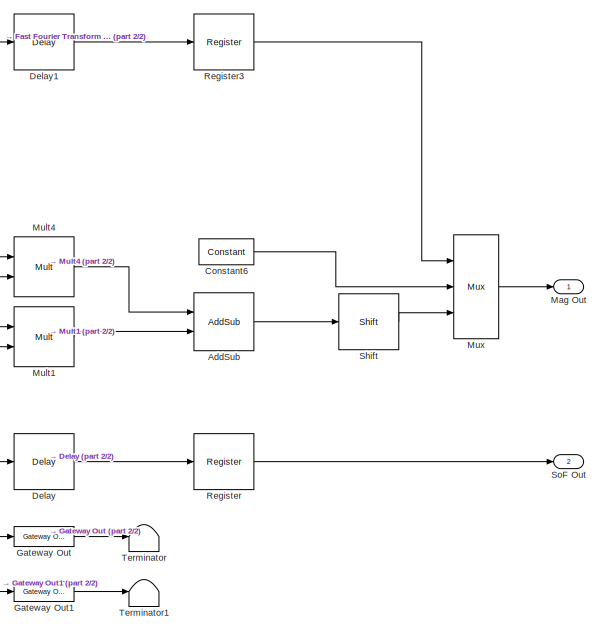
[diagram: Coarse Frequency Synchronisation/Get Spectrum Magnitude - part 1/2, right side, full height]
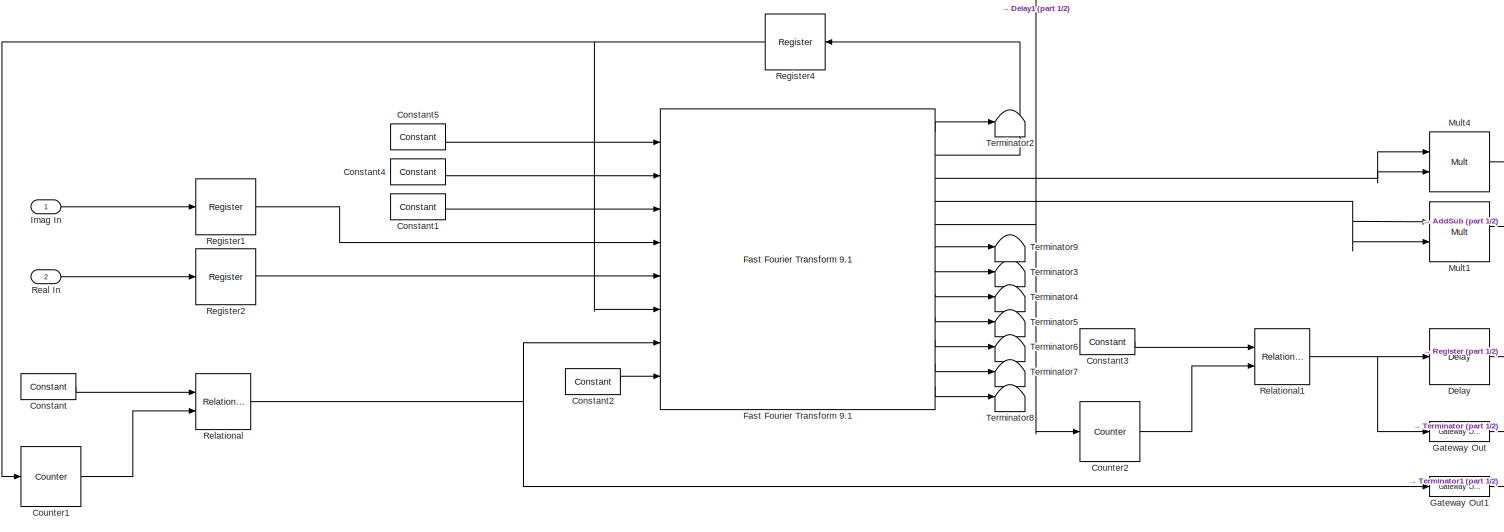
[diagram: Coarse Frequency Synchronisation/Get Spectrum Magnitude - part 2/2, most of the canvas]
BLOCK [SubSystem] Coarse Frequency Synchronisation/Get Spectrum Magnitude
  Ports = [2, 2]
  RequestExecContextInheritance = off
BLOCK [Reference] Coarse Frequency Synchronisation/Get Spectrum Magnitude/AddSub  REF=xbsIndex_r4/AddSub
  Ports = [2, 1]
  SourceBlock = xbsIndex_r4/AddSub
  SourceType = Xilinx Adder/Subtracter Block
BLOCK [Reference] Coarse Frequency Synchronisation/Get Spectrum Magnitude/Constant  REF=xbsIndex_r4/Constant
  Ports = [0, 1]
  SourceBlock = xbsIndex_r4/Constant
  SourceType = Xilinx Constant Block Block
BLOCK [Reference] Coarse Frequency Synchronisation/Get Spectrum Magnitude/Constant1  REF=xbsIndex_r4/Constant
  Ports = [0, 1]
  SourceBlock = xbsIndex_r4/Constant
  SourceType = Xilinx Constant Block Block
BLOCK [Reference] Coarse Frequency Synchronisation/Get Spectrum Magnitude/Constant2  REF=xbsIndex_r4/Constant
  Ports = [0, 1]
  SourceBlock = xbsIndex_r4/Constant
  SourceType = Xilinx Constant Block Block
BLOCK [Reference] Coarse Frequency Synchronisation/Get Spectrum Magnitude/Constant3  REF=xbsIndex_r4/Constant
  Ports = [0, 1]
  SourceBlock = xbsIndex_r4/Constant
  SourceType = Xilinx Constant Block Block
BLOCK [Reference] Coarse Frequency Synchronisation/Get Spectrum Magnitude/Constant4  REF=xbsIndex_r4/Constant
  Ports = [0, 1]
  SourceBlock = xbsIndex_r4/Constant
  SourceType = Xilinx Constant Block Block
BLOCK [Reference] Coarse Frequency Synchronisation/Get Spectrum Magnitude/Constant5  REF=xbsIndex_r4/Constant
  Ports = [0, 1]
  SourceBlock = xbsIndex_r4/Constant
  SourceType = Xilinx Constant Block Block
BLOCK [Reference] Coarse Frequency Synchronisation/Get Spectrum Magnitude/Constant6  REF=xbsIndex_r4/Constant
  Ports = [0, 1]
  SourceBlock = xbsIndex_r4/Constant
  SourceType = Xilinx Constant Block Block
BLOCK [Reference] Coarse Frequency Synchronisation/Get Spectrum Magnitude/Counter1  REF=xbsIndex_r4/Counter
  Ports = [1, 1]
  SourceBlock = xbsIndex_r4/Counter
  SourceType = Xilinx Counter Block
BLOCK [Reference] Coarse Frequency Synchronisation/Get Spectrum Magnitude/Counter2  REF=xbsIndex_r4/Counter
  Ports = [1, 1]
  SourceBlock = xbsIndex_r4/Counter
  SourceType = Xilinx Counter Block
BLOCK [Reference] Coarse Frequency Synchronisation/Get Spectrum Magnitude/Delay  REF=xbsIndex_r4/Delay
  Ports = [1, 1]
  SourceBlock = xbsIndex_r4/Delay
  SourceType = Xilinx Delay Block
BLOCK [Reference] Coarse Frequency Synchronisation/Get Spectrum Magnitude/Delay1  REF=xbsIndex_r4/Delay
  Ports = [1, 1]
  SourceBlock = xbsIndex_r4/Delay
  SourceType = Xilinx Delay Block
BLOCK [Reference] Coarse Frequency Synchronisation/Get Spectrum Magnitude/Fast Fourier Transform 9.1   REF=xbsIndex_r4/Fast Fourier Transform 9.1 
  Ports = [8, 12]
  SourceBlock = xbsIndex_r4/Fast Fourier Transform 9.1
  SourceType = Xilinx Fast Fourier Transform 9.1  Block
BLOCK [Reference] Coarse Frequency Synchronisation/Get Spectrum Magnitude/Gateway Out  REF=xbsIndex_r4/Gateway Out
  Ports = [1, 1]
  SourceBlock = xbsIndex_r4/Gateway Out
  SourceType = Xilinx Gateway Out Block
BLOCK [Reference] Coarse Frequency Synchronisation/Get Spectrum Magnitude/Gateway Out1  REF=xbsIndex_r4/Gateway Out
  Ports = [1, 1]
  SourceBlock = xbsIndex_r4/Gateway Out
  SourceType = Xilinx Gateway Out Block
BLOCK [Inport] Coarse Frequency Synchronisation/Get Spectrum Magnitude/Imag In
BLOCK [Outport] Coarse Frequency Synchronisation/Get Spectrum Magnitude/Mag Out
  VectorParamsAs1DForOutWhenUnconnected = off
BLOCK [Reference] Coarse Frequency Synchronisation/Get Spectrum Magnitude/Mult1  REF=xbsIndex_r4/Mult
  Ports = [2, 1]
  SourceBlock = xbsIndex_r4/Mult
  SourceType = Xilinx Multiplier Block
BLOCK [Reference] Coarse Frequency Synchronisation/Get Spectrum Magnitude/Mult4  REF=xbsIndex_r4/Mult
  Ports = [2, 1]
  SourceBlock = xbsIndex_r4/Mult
  SourceType = Xilinx Multiplier Block
BLOCK [Reference] Coarse Frequency Synchronisation/Get Spectrum Magnitude/Mux  REF=xbsIndex_r4/Mux
  Ports = [3, 1]
  SourceBlock = xbsIndex_r4/Mux
  SourceType = Xilinx Bus Multiplexer Block
BLOCK [Inport] Coarse Frequency Synchronisation/Get Spectrum Magnitude/Real In
  Port = 2
BLOCK [Reference] Coarse Frequency Synchronisation/Get Spectrum Magnitude/Register  REF=xbsIndex_r4/Register
  Ports = [1, 1]
  SourceBlock = xbsIndex_r4/Register
  SourceType = Xilinx Register Block
BLOCK [Reference] Coarse Frequency Synchronisation/Get Spectrum Magnitude/Register1  REF=xbsIndex_r4/Register
  Ports = [1, 1]
  SourceBlock = xbsIndex_r4/Register
  SourceType = Xilinx Register Block
BLOCK [Reference] Coarse Frequency Synchronisation/Get Spectrum Magnitude/Register2  REF=xbsIndex_r4/Register
  Ports = [1, 1]
  SourceBlock = xbsIndex_r4/Register
  SourceType = Xilinx Register Block
BLOCK [Reference] Coarse Frequency Synchronisation/Get Spectrum Magnitude/Register3  REF=xbsIndex_r4/Register
  Ports = [1, 1]
  SourceBlock = xbsIndex_r4/Register
  SourceType = Xilinx Register Block
BLOCK [Reference] Coarse Frequency Synchronisation/Get Spectrum Magnitude/Register4  REF=xbsIndex_r4/Register
  Ports = [1, 1]
  SourceBlock = xbsIndex_r4/Register
  SourceType = Xilinx Register Block
BLOCK [Reference] Coarse Frequency Synchronisation/Get Spectrum Magnitude/Relational  REF=xbsIndex_r4/Relational
  Ports = [2, 1]
  SourceBlock = xbsIndex_r4/Relational
  SourceType = Xilinx Arithmetic Relational Operator Block
BLOCK [Reference] Coarse Frequency Synchronisation/Get Spectrum Magnitude/Relational1  REF=xbsIndex_r4/Relational
  Ports = [2, 1]
  SourceBlock = xbsIndex_r4/Relational
  SourceType = Xilinx Arithmetic Relational Operator Block
BLOCK [Reference] Coarse Frequency Synchronisation/Get Spectrum Magnitude/Shift  REF=xbsIndex_r4/Shift
  Ports = [1, 1]
  SourceBlock = xbsIndex_r4/Shift
  SourceType = Xilinx Binary Shift Operator Block
BLOCK [Outport] Coarse Frequency Synchronisation/Get Spectrum Magnitude/SoF Out
  Port = 2
  VectorParamsAs1DForOutWhenUnconnected = off
BLOCK [Terminator] Coarse Frequency Synchronisation/Get Spectrum Magnitude/Terminator
BLOCK [Terminator] Coarse Frequency Synchronisation/Get Spectrum Magnitude/Terminator1
BLOCK [Terminator] Coarse Frequency Synchronisation/Get Spectrum Magnitude/Terminator2
BLOCK [Terminator] Coarse Frequency Synchronisation/Get Spectrum Magnitude/Terminator3
BLOCK [Terminator] Coarse Frequency Synchronisation/Get Spectrum Magnitude/Terminator4
BLOCK [Terminator] Coarse Frequency Synchronisation/Get Spectrum Magnitude/Terminator5
BLOCK [Terminator] Coarse Frequency Synchronisation/Get Spectrum Magnitude/Terminator6
BLOCK [Terminator] Coarse Frequency Synchronisation/Get Spectrum Magnitude/Terminator7
BLOCK [Terminator] Coarse Frequency Synchronisation/Get Spectrum Magnitude/Terminator8
BLOCK [Terminator] Coarse Frequency Synchronisation/Get Spectrum Magnitude/Terminator9
BLOCK [Inport] Coarse Frequency Synchronisation/Imag In
  Port = 4
BLOCK [Outport] Coarse Frequency Synchronisation/Imag Out
  Port = 3
  VectorParamsAs1DForOutWhenUnconnected = off
BLOCK [SubSystem] Coarse Frequency Synchronisation/Increase Signal Power
  Ports = [2, 2]
  RequestExecContextInheritance = off
BLOCK [Reference] Coarse Frequency Synchronisation/Increase Signal Power/Convert  REF=xbsIndex_r4/Convert
  Ports = [1, 1]
  SourceBlock = xbsIndex_r4/Convert
  SourceType = Xilinx Type Converter Block
BLOCK [Reference] Coarse Frequency Synchronisation/Increase Signal Power/Convert1  REF=xbsIndex_r4/Convert
  Ports = [1, 1]
  SourceBlock = xbsIndex_r4/Convert
  SourceType = Xilinx Type Converter Block
BLOCK [Reference] Coarse Frequency Synchronisation/Increase Signal Power/Convert2  REF=xbsIndex_r4/Convert
  Ports = [1, 1]
  SourceBlock = xbsIndex_r4/Convert
  SourceType = Xilinx Type Converter Block
BLOCK [Reference] Coarse Frequency Synchronisation/Increase Signal Power/Convert4  REF=xbsIndex_r4/Convert
  Ports = [1, 1]
  SourceBlock = xbsIndex_r4/Convert
  SourceType = Xilinx Type Converter Block
BLOCK [Inport] Coarse Frequency Synchronisation/Increase Signal Power/Imag In
BLOCK [Outport] Coarse Frequency Synchronisation/Increase Signal Power/Imag Out
  VectorParamsAs1DForOutWhenUnconnected = off
BLOCK [Reference] Coarse Frequency Synchronisation/Increase Signal Power/Product1  REF=xbsIndex_r4/Product
  Ports = [4, 2]
  SourceBlock = xbsIndex_r4/Product
  SourceType = Xilinx Multiplier Block
BLOCK [Reference] Coarse Frequency Synchronisation/Increase Signal Power/Product2  REF=xbsIndex_r4/Product
  Ports = [4, 2]
  SourceBlock = xbsIndex_r4/Product
  SourceType = Xilinx Multiplier Block
BLOCK [Inport] Coarse Frequency Synchronisation/Increase Signal Power/Real In
  Port = 2
BLOCK [Outport] Coarse Frequency Synchronisation/Increase Signal Power/Real Out
  Port = 2
  VectorParamsAs1DForOutWhenUnconnected = off
BLOCK [Reference] Coarse Frequency Synchronisation/Mux1  REF=xbsIndex_r4/Mux
  Ports = [3, 1]
  SourceBlock = xbsIndex_r4/Mux
  SourceType = Xilinx Bus Multiplexer Block
BLOCK [Reference] Coarse Frequency Synchronisation/Mux2  REF=xbsIndex_r4/Mux
  Ports = [3, 1]
  SourceBlock = xbsIndex_r4/Mux
  SourceType = Xilinx Bus Multiplexer Block
BLOCK [SubSystem] Coarse Frequency Synchronisation/NCO
  Ports = [1, 2]
  RequestExecContextInheritance = off
BLOCK [Reference] Coarse Frequency Synchronisation/NCO/AddSub  REF=xbsIndex_r4/AddSub
  Ports = [2, 1]
  SourceBlock = xbsIndex_r4/AddSub
  SourceType = Xilinx Adder/Subtracter Block
BLOCK [Reference] Coarse Frequency Synchronisation/NCO/CMult  REF=xbsIndex_r4/CMult
  Ports = [1, 1]
  SourceBlock = xbsIndex_r4/CMult
  SourceType = Xilinx Constant Multiplier Block
BLOCK [Reference] Coarse Frequency Synchronisation/NCO/Convert4  REF=xbsIndex_r4/Convert
  Ports = [1, 1]
  SourceBlock = xbsIndex_r4/Convert
  SourceType = Xilinx Type Converter Block
BLOCK [Reference] Coarse Frequency Synchronisation/NCO/Delay2  REF=xbsIndex_r4/Delay
  Ports = [1, 1]
  SourceBlock = xbsIndex_r4/Delay
  SourceType = Xilinx Delay Block
BLOCK [Inport] Coarse Frequency Synchronisation/NCO/Offset In
BLOCK [Reference] Coarse Frequency Synchronisation/NCO/Sin_ROM  REF=xbsIndex_r4/ROM
  Ports = [1, 1]
  SourceBlock = xbsIndex_r4/ROM
  SourceType = Xilinx Single Port Read-Only Memory Block
BLOCK [Outport] Coarse Frequency Synchronisation/NCO/cos
  VectorParamsAs1DForOutWhenUnconnected = off
BLOCK [Reference] Coarse Frequency Synchronisation/NCO/cos_ROM  REF=xbsIndex_r4/ROM
  Ports = [1, 1]
  SourceBlock = xbsIndex_r4/ROM
  SourceType = Xilinx Single Port Read-Only Memory Block
BLOCK [Outport] Coarse Frequency Synchronisation/NCO/sin
  Port = 2
  VectorParamsAs1DForOutWhenUnconnected = off
BLOCK [Inport] Coarse Frequency Synchronisation/Passthrough
BLOCK [Inport] Coarse Frequency Synchronisation/Real In
  Port = 3
BLOCK [Outport] Coarse Frequency Synchronisation/Real Out
  Port = 2
  VectorParamsAs1DForOutWhenUnconnected = off
BLOCK [Inport] Coarse Frequency Synchronisation/Valid In
  Port = 2
BLOCK [Outport] Coarse Frequency Synchronisation/Valid Out
  VectorParamsAs1DForOutWhenUnconnected = off
BLOCK [SubSystem] Complex AXI-Stream Slave Interface
  Ports = [4, 3]
  RequestExecContextInheritance = off
BLOCK [Reference] Complex AXI-Stream Slave Interface/Bit Concat  REF=hdlsllib/Logic and Bit
Operations/Bit Concat
  Ports = [2, 1]
  SourceBlock = hdlsllib/Logic and Bit\nOperations/Bit Concat
  SourceProductBaseCode = SL
  SourceType = Bit Concat
BLOCK [Reference] Complex AXI-Stream Slave Interface/Bit Concat1  REF=hdlsllib/Logic and Bit
Operations/Bit Concat
  Ports = [2, 1]
  SourceBlock = hdlsllib/Logic and Bit\nOperations/Bit Concat
  SourceProductBaseCode = SL
  SourceType = Bit Concat
BLOCK [DataTypeConversion] Complex AXI-Stream Slave Interface/Data Type Conversion
  ConvertRealWorld = Stored Integer (SI)
  OutDataTypeStr = uint16
  RndMeth = Floor
  SaturateOnIntegerOverflow = off
BLOCK [DataTypeConversion] Complex AXI-Stream Slave Interface/Data Type Conversion1
  ConvertRealWorld = Stored Integer (SI)
  OutDataTypeStr = uint16
  RndMeth = Floor
  SaturateOnIntegerOverflow = off
BLOCK [Inport] Complex AXI-Stream Slave Interface/Imag In
  Port = 3
BLOCK [Outport] Complex AXI-Stream Slave Interface/Imag Out
  Port = 3
  VectorParamsAs1DForOutWhenUnconnected = off
BLOCK [Inport] Complex AXI-Stream Slave Interface/Ready In
  Port = 4
BLOCK [Inport] Complex AXI-Stream Slave Interface/Real In
  Port = 2
BLOCK [Outport] Complex AXI-Stream Slave Interface/Real Out
  Port = 2
  VectorParamsAs1DForOutWhenUnconnected = off
BLOCK [Reference] Complex AXI-Stream Slave Interface/Scalar2Vector  REF=xrbsSSR_Library/Scalar2Vector
  Ports = [1, 1]
  SourceBlock = xrbsSSR_Library/Scalar2Vector
  SourceProductName = Xilinx SSR Blockset
  SourceType = Xilinx Scalar2Vector Block
BLOCK [Reference] Complex AXI-Stream Slave Interface/Scalar2Vector1  REF=xrbsSSR_Library/Scalar2Vector
  Ports = [1, 1]
  SourceBlock = xrbsSSR_Library/Scalar2Vector
  SourceProductName = Xilinx SSR Blockset
  SourceType = Xilinx Scalar2Vector Block
BLOCK [Selector] Complex AXI-Stream Slave Interface/Selector
  IndexMode = Zero-based
  IndexOptions = Index vector (dialog),Index vector (dialog)
  Indices = 0,0
  InputPortWidth = 3
  NumberOfDimensions = 2
  OutputSizes = 1,1
  Ports = [1, 1]
BLOCK [Selector] Complex AXI-Stream Slave Interface/Selector1
  IndexMode = Zero-based
  IndexOptions = Index vector (dialog),Index vector (dialog)
  Indices = 1,0
  InputPortWidth = 3
  NumberOfDimensions = 2
  OutputSizes = 1,1
  Ports = [1, 1]
BLOCK [Selector] Complex AXI-Stream Slave Interface/Selector2
  IndexMode = Zero-based
  IndexOptions = Index vector (dialog),Index vector (dialog)
  Indices = 0,0
  InputPortWidth = 3
  NumberOfDimensions = 2
  OutputSizes = 1,1
  Ports = [1, 1]
BLOCK [Selector] Complex AXI-Stream Slave Interface/Selector3
  IndexMode = Zero-based
  IndexOptions = Index vector (dialog),Index vector (dialog)
  Indices = 1,0
  InputPortWidth = 3
  NumberOfDimensions = 2
  OutputSizes = 1,1
  Ports = [1, 1]
BLOCK [Terminator] Complex AXI-Stream Slave Interface/Terminator
BLOCK [Terminator] Complex AXI-Stream Slave Interface/Terminator1
BLOCK [Terminator] Complex AXI-Stream Slave Interface/Terminator3
BLOCK [Inport] Complex AXI-Stream Slave Interface/Valid In
BLOCK [Outport] Complex AXI-Stream Slave Interface/Valid Out
  VectorParamsAs1DForOutWhenUnconnected = off
BLOCK [Reference] Complex AXI-Stream Slave Interface/Vector Reinterpret  REF=xrbsSSR_Library/Vector Reinterpret
  Ports = [1, 1]
  SourceBlock = xrbsSSR_Library/Vector Reinterpret
  SourceProductName = Xilinx SSR Blockset
  SourceType = Xilinx Vector Type Reinterpreter Block
BLOCK [Reference] Complex AXI-Stream Slave Interface/Vector Reinterpret1  REF=xrbsSSR_Library/Vector Reinterpret
  Ports = [1, 1]
  SourceBlock = xrbsSSR_Library/Vector Reinterpret
  SourceProductName = Xilinx SSR Blockset
  SourceType = Xilinx Vector Type Reinterpreter Block
BLOCK [Reference] Complex AXI-Stream Slave Interface/s_axis_tdata_im  REF=xbsIndex_r4/Gateway In
  Ports = [1, 1]
  SourceBlock = xbsIndex_r4/Gateway In
  SourceType = Xilinx Gateway In Block
BLOCK [Reference] Complex AXI-Stream Slave Interface/s_axis_tdata_re  REF=xbsIndex_r4/Gateway In
  Ports = [1, 1]
  SourceBlock = xbsIndex_r4/Gateway In
  SourceType = Xilinx Gateway In Block
BLOCK [Reference] Complex AXI-Stream Slave Interface/s_axis_tready_im  REF=xbsIndex_r4/Gateway Out
  Ports = [1, 1]
  SourceBlock = xbsIndex_r4/Gateway Out
  SourceType = Xilinx Gateway Out Block
BLOCK [Reference] Complex AXI-Stream Slave Interface/s_axis_tready_re  REF=xbsIndex_r4/Gateway Out
  Ports = [1, 1]
  SourceBlock = xbsIndex_r4/Gateway Out
  SourceType = Xilinx Gateway Out Block
BLOCK [Reference] Complex AXI-Stream Slave Interface/s_axis_tvalid_im  REF=xbsIndex_r4/Gateway In
  Ports = [1, 1]
  SourceBlock = xbsIndex_r4/Gateway In
  SourceType = Xilinx Gateway In Block
BLOCK [Reference] Complex AXI-Stream Slave Interface/s_axis_tvalid_re  REF=xbsIndex_r4/Gateway In
  Ports = [1, 1]
  SourceBlock = xbsIndex_r4/Gateway In
  SourceType = Xilinx Gateway In Block
BLOCK [Constant] Constant
  SampleTime = -1
  Value = 0
BLOCK [Delay] Delay1
  DelayLength = 0
  InputPortMap = u0,e6
  Ports = [2, 1]
  ShowEnablePort = on
BLOCK [Constant] Disable
  OutDataTypeStr = boolean
  SampleTime = -1
  Value = 0
BLOCK [Display] Display
  Decimation = 1
  Ports = [1]
BLOCK [Display] Display1
  Decimation = 1
  Ports = [1]
BLOCK [Display] Display2
  Decimation = 1
  Ports = [1]
BLOCK [Display] Display3
  Decimation = 1
  Ports = [1]
BLOCK [Display] Display4
  Decimation = 1
  Format = long
  Ports = [1]
BLOCK [Constant] Enable
  OutDataTypeStr = boolean
  SampleTime = -1
BLOCK [SubSystem] Frame Synchronisation
  Ports = [4, 5]
  RequestExecContextInheritance = off
BLOCK [SubSystem] Frame Synchronisation/Convert to AXI-Stream
  Ports = [2, 5]
  RequestExecContextInheritance = off
BLOCK [Reference] Frame Synchronisation/Convert to AXI-Stream/Constant  REF=xbsIndex_r4/Constant
  Ports = [0, 1]
  SourceBlock = xbsIndex_r4/Constant
  SourceType = Xilinx Constant Block Block
BLOCK [Reference] Frame Synchronisation/Convert to AXI-Stream/Constant1  REF=xbsIndex_r4/Constant
  Ports = [0, 1]
  SourceBlock = xbsIndex_r4/Constant
  SourceType = Xilinx Constant Block Block
BLOCK [Reference] Frame Synchronisation/Convert to AXI-Stream/Counter  REF=xbsIndex_r4/Counter
  Ports = [2, 1]
  SourceBlock = xbsIndex_r4/Counter
  SourceType = Xilinx Counter Block
BLOCK [Reference] Frame Synchronisation/Convert to AXI-Stream/Counter1  REF=xbsIndex_r4/Counter
  Ports = [2, 1]
  SourceBlock = xbsIndex_r4/Counter
  SourceType = Xilinx Counter Block
BLOCK [Inport] Frame Synchronisation/Convert to AXI-Stream/Data In
BLOCK [Outport] Frame Synchronisation/Convert to AXI-Stream/Data Out
  VectorParamsAs1DForOutWhenUnconnected = off
BLOCK [Outport] Frame Synchronisation/Convert to AXI-Stream/Last Out
  Port = 3
  VectorParamsAs1DForOutWhenUnconnected = off
BLOCK [Reference] Frame Synchronisation/Convert to AXI-Stream/Logical  REF=xbsIndex_r4/Logical
  Ports = [2, 1]
  SourceBlock = xbsIndex_r4/Logical
  SourceType = Xilinx Logical Block Block
BLOCK [Reference] Frame Synchronisation/Convert to AXI-Stream/Logical1  REF=xbsIndex_r4/Logical
  Ports = [2, 1]
  SourceBlock = xbsIndex_r4/Logical
  SourceType = Xilinx Logical Block Block
BLOCK [Reference] Frame Synchronisation/Convert to AXI-Stream/Logical2  REF=xbsIndex_r4/Logical
  Ports = [2, 1]
  SourceBlock = xbsIndex_r4/Logical
  SourceType = Xilinx Logical Block Block
BLOCK [Reference] Frame Synchronisation/Convert to AXI-Stream/Register  REF=xbsIndex_r4/Register
  Ports = [1, 1]
  SourceBlock = xbsIndex_r4/Register
  SourceType = Xilinx Register Block
BLOCK [Reference] Frame Synchronisation/Convert to AXI-Stream/Register1  REF=xbsIndex_r4/Register
  Ports = [2, 1]
  SourceBlock = xbsIndex_r4/Register
  SourceType = Xilinx Register Block
BLOCK [Reference] Frame Synchronisation/Convert to AXI-Stream/Register2  REF=xbsIndex_r4/Register
  Ports = [1, 1]
  SourceBlock = xbsIndex_r4/Register
  SourceType = Xilinx Register Block
BLOCK [Reference] Frame Synchronisation/Convert to AXI-Stream/Register3  REF=xbsIndex_r4/Register
  Ports = [1, 1]
  SourceBlock = xbsIndex_r4/Register
  SourceType = Xilinx Register Block
BLOCK [Reference] Frame Synchronisation/Convert to AXI-Stream/Register4  REF=xbsIndex_r4/Register
  Ports = [1, 1]
  SourceBlock = xbsIndex_r4/Register
  SourceType = Xilinx Register Block
BLOCK [Reference] Frame Synchronisation/Convert to AXI-Stream/Register5  REF=xbsIndex_r4/Register
  Ports = [1, 1]
  SourceBlock = xbsIndex_r4/Register
  SourceType = Xilinx Register Block
BLOCK [Reference] Frame Synchronisation/Convert to AXI-Stream/Register6  REF=xbsIndex_r4/Register
  Ports = [1, 1]
  SourceBlock = xbsIndex_r4/Register
  SourceType = Xilinx Register Block
BLOCK [Reference] Frame Synchronisation/Convert to AXI-Stream/Relational  REF=xbsIndex_r4/Relational
  Ports = [2, 1]
  SourceBlock = xbsIndex_r4/Relational
  SourceType = Xilinx Arithmetic Relational Operator Block
BLOCK [Reference] Frame Synchronisation/Convert to AXI-Stream/Relational1  REF=xbsIndex_r4/Relational
  Ports = [2, 1]
  SourceBlock = xbsIndex_r4/Relational
  SourceType = Xilinx Arithmetic Relational Operator Block
BLOCK [Reference] Frame Synchronisation/Convert to AXI-Stream/Relational2  REF=xbsIndex_r4/Relational
  Ports = [2, 1]
  SourceBlock = xbsIndex_r4/Relational
  SourceType = Xilinx Arithmetic Relational Operator Block
BLOCK [Reference] Frame Synchronisation/Convert to AXI-Stream/Relational3  REF=xbsIndex_r4/Relational
  Ports = [2, 1]
  SourceBlock = xbsIndex_r4/Relational
  SourceType = Xilinx Arithmetic Relational Operator Block
BLOCK [Outport] Frame Synchronisation/Convert to AXI-Stream/Reset
  Port = 5
  VectorParamsAs1DForOutWhenUnconnected = off
BLOCK [Outport] Frame Synchronisation/Convert to AXI-Stream/Size
  Port = 4
  VectorParamsAs1DForOutWhenUnconnected = off
BLOCK [Inport] Frame Synchronisation/Convert to AXI-Stream/Valid In
  Port = 2
BLOCK [Outport] Frame Synchronisation/Convert to AXI-Stream/Valid Out
  Port = 2
  VectorParamsAs1DForOutWhenUnconnected = off
BLOCK [Outport] Frame Synchronisation/Count
  Port = 5
  VectorParamsAs1DForOutWhenUnconnected = off
BLOCK [Outport] Frame Synchronisation/Data Out
  Port = 2
  VectorParamsAs1DForOutWhenUnconnected = off
BLOCK [SubSystem] Frame Synchronisation/Frame Sync
  Ports = [5, 3]
  RequestExecContextInheritance = off
BLOCK [Reference] Frame Synchronisation/Frame Sync/Counter1  REF=xbsIndex_r4/Counter
  Ports = [2, 1]
  SourceBlock = xbsIndex_r4/Counter
  SourceType = Xilinx Counter Block
BLOCK [SubSystem] Frame Synchronisation/Frame Sync/DBPSK Convert
  Ports = [2, 2]
  RequestExecContextInheritance = off
BLOCK [Reference] Frame Synchronisation/Frame Sync/DBPSK Convert/Constant  REF=xbsIndex_r4/Constant
  Ports = [0, 1]
  SourceBlock = xbsIndex_r4/Constant
  SourceType = Xilinx Constant Block Block
BLOCK [Reference] Frame Synchronisation/Frame Sync/DBPSK Convert/Constant1  REF=xbsIndex_r4/Constant
  Ports = [0, 1]
  SourceBlock = xbsIndex_r4/Constant
  SourceType = Xilinx Constant Block Block
BLOCK [Inport] Frame Synchronisation/Frame Sync/DBPSK Convert/Data In
BLOCK [Outport] Frame Synchronisation/Frame Sync/DBPSK Convert/Data Out
  VectorParamsAs1DForOutWhenUnconnected = off
BLOCK [Reference] Frame Synchronisation/Frame Sync/DBPSK Convert/Mux  REF=xbsIndex_r4/Mux
  Ports = [3, 1]
  SourceBlock = xbsIndex_r4/Mux
  SourceType = Xilinx Bus Multiplexer Block
BLOCK [Inport] Frame Synchronisation/Frame Sync/DBPSK Convert/Valid In
  Port = 2
BLOCK [Outport] Frame Synchronisation/Frame Sync/DBPSK Convert/Valid Out
  Port = 2
  VectorParamsAs1DForOutWhenUnconnected = off
BLOCK [SubSystem] Frame Synchronisation/Frame Sync/DBPSK Decision
  Ports = [2, 2]
  RequestExecContextInheritance = off
BLOCK [Inport] Frame Synchronisation/Frame Sync/DBPSK Decision/Data In
BLOCK [Outport] Frame Synchronisation/Frame Sync/DBPSK Decision/Data Out
  VectorParamsAs1DForOutWhenUnconnected = off
BLOCK [Reference] Frame Synchronisation/Frame Sync/DBPSK Decision/Logical1  REF=xbsIndex_r4/Logical
  Ports = [2, 1]
  SourceBlock = xbsIndex_r4/Logical
  SourceType = Xilinx Logical Block Block
BLOCK [Reference] Frame Synchronisation/Frame Sync/DBPSK Decision/Register  REF=xbsIndex_r4/Register
  Ports = [2, 1]
  SourceBlock = xbsIndex_r4/Register
  SourceType = Xilinx Register Block
BLOCK [Reference] Frame Synchronisation/Frame Sync/DBPSK Decision/Register2  REF=xbsIndex_r4/Register
  Ports = [1, 1]
  SourceBlock = xbsIndex_r4/Register
  SourceType = Xilinx Register Block
BLOCK [Reference] Frame Synchronisation/Frame Sync/DBPSK Decision/Register3  REF=xbsIndex_r4/Register
  Ports = [2, 1]
  SourceBlock = xbsIndex_r4/Register
  SourceType = Xilinx Register Block
BLOCK [Reference] Frame Synchronisation/Frame Sync/DBPSK Decision/Register4  REF=xbsIndex_r4/Register
  Ports = [2, 1]
  SourceBlock = xbsIndex_r4/Register
  SourceType = Xilinx Register Block
BLOCK [Reference] Frame Synchronisation/Frame Sync/DBPSK Decision/Register5  REF=xbsIndex_r4/Register
  Ports = [1, 1]
  SourceBlock = xbsIndex_r4/Register
  SourceType = Xilinx Register Block
BLOCK [Inport] Frame Synchronisation/Frame Sync/DBPSK Decision/Valid In
  Port = 2
BLOCK [Outport] Frame Synchronisation/Frame Sync/DBPSK Decision/Valid Out
  Port = 2
  VectorParamsAs1DForOutWhenUnconnected = off
BLOCK [Inport] Frame Synchronisation/Frame Sync/Data In
  Port = 2
BLOCK [Outport] Frame Synchronisation/Frame Sync/Data Out
  VectorParamsAs1DForOutWhenUnconnected = off
BLOCK [Reference] Frame Synchronisation/Frame Sync/Delay  REF=xbsIndex_r4/Delay
  Ports = [1, 1]
  SourceBlock = xbsIndex_r4/Delay
  SourceType = Xilinx Delay Block
BLOCK [Reference] Frame Synchronisation/Frame Sync/Delay1  REF=xbsIndex_r4/Delay
  Ports = [2, 1]
  SourceBlock = xbsIndex_r4/Delay
  SourceType = Xilinx Delay Block
BLOCK [Reference] Frame Synchronisation/Frame Sync/FIR Compiler 7.2   REF=xbsIndex_r4/FIR Compiler 7.2 
  Ports = [2, 3]
  SourceBlock = xbsIndex_r4/FIR Compiler 7.2
  SourceType = Xilinx FIR Compiler 7.2 Block
BLOCK [Reference] Frame Synchronisation/Frame Sync/Logical  REF=xbsIndex_r4/Logical
  Ports = [2, 1]
  SourceBlock = xbsIndex_r4/Logical
  SourceType = Xilinx Logical Block Block
BLOCK [Reference] Frame Synchronisation/Frame Sync/Logical1  REF=xbsIndex_r4/Logical
  Ports = [2, 1]
  SourceBlock = xbsIndex_r4/Logical
  SourceType = Xilinx Logical Block Block
BLOCK [Reference] Frame Synchronisation/Frame Sync/Register1  REF=xbsIndex_r4/Register
  Ports = [3, 1]
  SourceBlock = xbsIndex_r4/Register
  SourceType = Xilinx Register Block
BLOCK [Reference] Frame Synchronisation/Frame Sync/Relational1  REF=xbsIndex_r4/Relational
  Ports = [2, 1]
  SourceBlock = xbsIndex_r4/Relational
  SourceType = Xilinx Arithmetic Relational Operator Block
BLOCK [Inport] Frame Synchronisation/Frame Sync/Reset
  Port = 5
BLOCK [SubSystem] Frame Synchronisation/Frame Sync/Rising Edge Detector
  Ports = [1, 1]
  RequestExecContextInheritance = off
BLOCK [Inport] Frame Synchronisation/Frame Sync/Rising Edge Detector/Input
BLOCK [Reference] Frame Synchronisation/Frame Sync/Rising Edge Detector/Inverter  REF=xbsIndex_r4/Inverter
  Ports = [1, 1]
  SourceBlock = xbsIndex_r4/Inverter
  SourceType = Xilinx Inverter Block
BLOCK [Reference] Frame Synchronisation/Frame Sync/Rising Edge Detector/Logical1  REF=xbsIndex_r4/Logical
  Ports = [2, 1]
  SourceBlock = xbsIndex_r4/Logical
  SourceType = Xilinx Logical Block Block
BLOCK [Outport] Frame Synchronisation/Frame Sync/Rising Edge Detector/Output
  VectorParamsAs1DForOutWhenUnconnected = off
BLOCK [Reference] Frame Synchronisation/Frame Sync/Rising Edge Detector/Register2  REF=xbsIndex_r4/Register
  Ports = [1, 1]
  SourceBlock = xbsIndex_r4/Register
  SourceType = Xilinx Register Block
BLOCK [SubSystem] Frame Synchronisation/Frame Sync/Shift Register
  Ports = [2, 2]
  RequestExecContextInheritance = off
BLOCK [Reference] Frame Synchronisation/Frame Sync/Shift Register/Concat  REF=xbsIndex_r4/Concat
  NameLocation = left
  Ports = [8, 1]
  SourceBlock = xbsIndex_r4/Concat
  SourceType = Xilinx Bus Concatenator Block
BLOCK [Reference] Frame Synchronisation/Frame Sync/Shift Register/Constant  REF=xbsIndex_r4/Constant
  Ports = [0, 1]
  SourceBlock = xbsIndex_r4/Constant
  SourceType = Xilinx Constant Block Block
BLOCK [Reference] Frame Synchronisation/Frame Sync/Shift Register/Counter  REF=xbsIndex_r4/Counter
  Ports = [2, 1]
  SourceBlock = xbsIndex_r4/Counter
  SourceType = Xilinx Counter Block
BLOCK [Inport] Frame Synchronisation/Frame Sync/Shift Register/Data In
BLOCK [Outport] Frame Synchronisation/Frame Sync/Shift Register/Data Out
  VectorParamsAs1DForOutWhenUnconnected = off
BLOCK [Reference] Frame Synchronisation/Frame Sync/Shift Register/Register  REF=xbsIndex_r4/Register
  Ports = [2, 1]
  SourceBlock = xbsIndex_r4/Register
  SourceType = Xilinx Register Block
BLOCK [Reference] Frame Synchronisation/Frame Sync/Shift Register/Register1  REF=xbsIndex_r4/Register
  Ports = [2, 1]
  SourceBlock = xbsIndex_r4/Register
  SourceType = Xilinx Register Block
BLOCK [Reference] Frame Synchronisation/Frame Sync/Shift Register/Register2  REF=xbsIndex_r4/Register
  Ports = [2, 1]
  SourceBlock = xbsIndex_r4/Register
  SourceType = Xilinx Register Block
BLOCK [Reference] Frame Synchronisation/Frame Sync/Shift Register/Register3  REF=xbsIndex_r4/Register
  Ports = [2, 1]
  SourceBlock = xbsIndex_r4/Register
  SourceType = Xilinx Register Block
BLOCK [Reference] Frame Synchronisation/Frame Sync/Shift Register/Register4  REF=xbsIndex_r4/Register
  Ports = [2, 1]
  SourceBlock = xbsIndex_r4/Register
  SourceType = Xilinx Register Block
BLOCK [Reference] Frame Synchronisation/Frame Sync/Shift Register/Register5  REF=xbsIndex_r4/Register
  Ports = [2, 1]
  SourceBlock = xbsIndex_r4/Register
  SourceType = Xilinx Register Block
BLOCK [Reference] Frame Synchronisation/Frame Sync/Shift Register/Register6  REF=xbsIndex_r4/Register
  Ports = [2, 1]
  SourceBlock = xbsIndex_r4/Register
  SourceType = Xilinx Register Block
BLOCK [Reference] Frame Synchronisation/Frame Sync/Shift Register/Register7  REF=xbsIndex_r4/Register
  Ports = [2, 1]
  SourceBlock = xbsIndex_r4/Register
  SourceType = Xilinx Register Block
BLOCK [Reference] Frame Synchronisation/Frame Sync/Shift Register/Relational  REF=xbsIndex_r4/Relational
  Ports = [2, 1]
  SourceBlock = xbsIndex_r4/Relational
  SourceType = Xilinx Arithmetic Relational Operator Block
BLOCK [Inport] Frame Synchronisation/Frame Sync/Shift Register/Valid In
  Port = 2
BLOCK [Outport] Frame Synchronisation/Frame Sync/Shift Register/Valid Out
  Port = 2
  VectorParamsAs1DForOutWhenUnconnected = off
BLOCK [Reference] Frame Synchronisation/Frame Sync/Slice  REF=xbsIndex_r4/Slice
  Ports = [1, 1]
  SourceBlock = xbsIndex_r4/Slice
  SourceType = Xilinx Bit Slice Extractor Block
BLOCK [Terminator] Frame Synchronisation/Frame Sync/Terminator
BLOCK [Terminator] Frame Synchronisation/Frame Sync/Terminator1
BLOCK [Inport] Frame Synchronisation/Frame Sync/Threshold
BLOCK [Inport] Frame Synchronisation/Frame Sync/Valid In
  Port = 3
BLOCK [Outport] Frame Synchronisation/Frame Sync/Valid Out
  Port = 2
  VectorParamsAs1DForOutWhenUnconnected = off
BLOCK [Outport] Frame Synchronisation/Frame Sync/count
  Port = 3
  VectorParamsAs1DForOutWhenUnconnected = off
BLOCK [Inport] Frame Synchronisation/Frame Sync/reset_count
  Port = 4
BLOCK [Outport] Frame Synchronisation/Last Out
  Port = 3
  VectorParamsAs1DForOutWhenUnconnected = off
BLOCK [Inport] Frame Synchronisation/Real In
  Port = 4
BLOCK [Inport] Frame Synchronisation/Reset
BLOCK [Outport] Frame Synchronisation/Size
  Port = 4
  VectorParamsAs1DForOutWhenUnconnected = off
BLOCK [Inport] Frame Synchronisation/Threshold
  Port = 2
BLOCK [Inport] Frame Synchronisation/Valid In
  Port = 3
BLOCK [Outport] Frame Synchronisation/Valid Out
  VectorParamsAs1DForOutWhenUnconnected = off
BLOCK [ManualSwitch] Manual Switch
BLOCK [Constant] Observation
  OutDataTypeStr = uint32
  SampleTime = -1
  Value = 0
BLOCK [SubSystem] Observation Point
  Ports = [16]
  RequestExecContextInheritance = off
BLOCK [Reference] Observation Point/Concat  REF=xbsIndex_r4/Concat
  Ports = [2, 1]
  SourceBlock = xbsIndex_r4/Concat
  SourceType = Xilinx Bus Concatenator Block
BLOCK [Inport] Observation Point/Control
  Port = 16
BLOCK [Inport] Observation Point/Imag A
  Port = 15
BLOCK [Inport] Observation Point/Imag B
  Port = 10
BLOCK [Inport] Observation Point/Imag C
  Port = 13
BLOCK [Inport] Observation Point/Imag D
  Port = 12
BLOCK [Inport] Observation Point/Imag E
  Port = 11
BLOCK [Reference] Observation Point/Mux Im  REF=xbsIndex_r4/Mux
  Ports = [6, 1]
  SourceBlock = xbsIndex_r4/Mux
  SourceType = Xilinx Bus Multiplexer Block
BLOCK [Reference] Observation Point/Mux Re  REF=xbsIndex_r4/Mux
  Ports = [6, 1]
  SourceBlock = xbsIndex_r4/Mux
  SourceType = Xilinx Bus Multiplexer Block
BLOCK [Reference] Observation Point/Mux Valid  REF=xbsIndex_r4/Mux
  Ports = [6, 1]
  SourceBlock = xbsIndex_r4/Mux
  SourceType = Xilinx Bus Multiplexer Block
BLOCK [Inport] Observation Point/Real A
  Port = 14
BLOCK [Inport] Observation Point/Real B
  Port = 5
BLOCK [Inport] Observation Point/Real C
  Port = 8
BLOCK [Inport] Observation Point/Real D
  Port = 7
BLOCK [Inport] Observation Point/Real E
  Port = 6
BLOCK [Reference] Observation Point/Reinterpret  REF=xbsIndex_r4/Reinterpret
  Ports = [1, 1]
  SourceBlock = xbsIndex_r4/Reinterpret
  SourceType = Xilinx Type Reinterpreter Block
BLOCK [Reference] Observation Point/Reinterpret1  REF=xbsIndex_r4/Reinterpret
  Ports = [1, 1]
  SourceBlock = xbsIndex_r4/Reinterpret
  SourceType = Xilinx Type Reinterpreter Block
BLOCK [Reference] Observation Point/Slice  REF=xbsIndex_r4/Slice
  Ports = [1, 1]
  SourceBlock = xbsIndex_r4/Slice
  SourceType = Xilinx Bit Slice Extractor Block
BLOCK [Reference] Observation Point/Up Sample1  REF=xbsIndex_r4/Up Sample
  Ports = [1, 1]
  SourceBlock = xbsIndex_r4/Up Sample
  SourceType = Xilinx Up Sampler Block
BLOCK [Reference] Observation Point/Up Sample10  REF=xbsIndex_r4/Up Sample
  Ports = [1, 1]
  SourceBlock = xbsIndex_r4/Up Sample
  SourceType = Xilinx Up Sampler Block
BLOCK [Reference] Observation Point/Up Sample11  REF=xbsIndex_r4/Up Sample
  Ports = [1, 1]
  SourceBlock = xbsIndex_r4/Up Sample
  SourceType = Xilinx Up Sampler Block
BLOCK [Reference] Observation Point/Up Sample12  REF=xbsIndex_r4/Up Sample
  Ports = [1, 1]
  SourceBlock = xbsIndex_r4/Up Sample
  SourceType = Xilinx Up Sampler Block
BLOCK [Reference] Observation Point/Up Sample13  REF=xbsIndex_r4/Up Sample
  Ports = [1, 1]
  SourceBlock = xbsIndex_r4/Up Sample
  SourceType = Xilinx Up Sampler Block
BLOCK [Reference] Observation Point/Up Sample14  REF=xbsIndex_r4/Up Sample
  Ports = [1, 1]
  SourceBlock = xbsIndex_r4/Up Sample
  SourceType = Xilinx Up Sampler Block
BLOCK [Reference] Observation Point/Up Sample15  REF=xbsIndex_r4/Up Sample
  Ports = [1, 1]
  SourceBlock = xbsIndex_r4/Up Sample
  SourceType = Xilinx Up Sampler Block
BLOCK [Reference] Observation Point/Up Sample2  REF=xbsIndex_r4/Up Sample
  Ports = [1, 1]
  SourceBlock = xbsIndex_r4/Up Sample
  SourceType = Xilinx Up Sampler Block
BLOCK [Reference] Observation Point/Up Sample3  REF=xbsIndex_r4/Up Sample
  Ports = [1, 1]
  SourceBlock = xbsIndex_r4/Up Sample
  SourceType = Xilinx Up Sampler Block
BLOCK [Reference] Observation Point/Up Sample4  REF=xbsIndex_r4/Up Sample
  Ports = [1, 1]
  SourceBlock = xbsIndex_r4/Up Sample
  SourceType = Xilinx Up Sampler Block
BLOCK [Reference] Observation Point/Up Sample5  REF=xbsIndex_r4/Up Sample
  Ports = [1, 1]
  SourceBlock = xbsIndex_r4/Up Sample
  SourceType = Xilinx Up Sampler Block
BLOCK [Reference] Observation Point/Up Sample6  REF=xbsIndex_r4/Up Sample
  Ports = [1, 1]
  SourceBlock = xbsIndex_r4/Up Sample
  SourceType = Xilinx Up Sampler Block
BLOCK [Reference] Observation Point/Up Sample7  REF=xbsIndex_r4/Up Sample
  Ports = [1, 1]
  SourceBlock = xbsIndex_r4/Up Sample
  SourceType = Xilinx Up Sampler Block
BLOCK [Reference] Observation Point/Up Sample8  REF=xbsIndex_r4/Up Sample
  Ports = [1, 1]
  SourceBlock = xbsIndex_r4/Up Sample
  SourceType = Xilinx Up Sampler Block
BLOCK [Reference] Observation Point/Up Sample9  REF=xbsIndex_r4/Up Sample
  Ports = [1, 1]
  SourceBlock = xbsIndex_r4/Up Sample
  SourceType = Xilinx Up Sampler Block
BLOCK [Inport] Observation Point/Valid A
  Port = 9
BLOCK [Inport] Observation Point/Valid B
BLOCK [Inport] Observation Point/Valid C
  Port = 4
BLOCK [Inport] Observation Point/Valid D
  Port = 3
BLOCK [Inport] Observation Point/Valid E
  Port = 2
BLOCK [SubSystem] Observation Point/op
  Ports = [2]
  RequestExecContextInheritance = off
BLOCK [DataTypeConversion] Observation Point/op/Cast To Boolean
  OutDataTypeStr = boolean
  RndMeth = Floor
  SaturateOnIntegerOverflow = off
BLOCK [ConstellationDiagram] Observation Point/op/Constellation Diagram
  Ports = [1]
  ScopeSpecificationString = comm.scopes.ConstellationDiagramBlockCfg('CurrentConfiguration', extmgr.ConfigurationSet(extmgr.Configuration('Core','General UI',true),extmgr.Configuration('Core','Source UI',true),extmgr.Configuration('Sources','WiredSimulink',true),extmgr.Configuration('Sources','SimulinkEvent',false),extmgr.Configuration('Sources','Simulink',false),extmgr.Configuration('Sources','SPTool',false),extmgr.Configur...<+2500ch>
BLOCK [DataTypeConversion] Observation Point/op/Convert Protect
  ConvertRealWorld = Stored Integer (SI)
  OutDataTypeStr = fixdt(0,32,0)
  RndMeth = Floor
  SaturateOnIntegerOverflow = off
BLOCK [Inport] Observation Point/op/Data In
BLOCK [Delay] Observation Point/op/Delay
  DelayLength = 1
  InputPortMap = u0,e6
  Ports = [2, 1]
  ShowEnablePort = on
BLOCK [DataTypeConversion] Observation Point/op/Imag Conversion
  ConvertRealWorld = Stored Integer (SI)
  OutDataTypeStr = fixdt(1,16,15)
  RndMeth = Floor
  SaturateOnIntegerOverflow = off
BLOCK [Reference] Observation Point/op/Imag Slice  REF=hdlsllib/Logic and Bit
Operations/Bit Slice
  Ports = [1, 1]
  SourceBlock = hdlsllib/Logic and Bit\nOperations/Bit Slice
  SourceProductBaseCode = SL
  SourceType = Bit Slice
BLOCK [DataTypeConversion] Observation Point/op/Real Conversion
  ConvertRealWorld = Stored Integer (SI)
  OutDataTypeStr = fixdt(1,16,15)
  RndMeth = Floor
  SaturateOnIntegerOverflow = off
BLOCK [Reference] Observation Point/op/Real Slice  REF=hdlsllib/Logic and Bit
Operations/Bit Slice
  Ports = [1, 1]
  SourceBlock = hdlsllib/Logic and Bit\nOperations/Bit Slice
  SourceProductBaseCode = SL
  SourceType = Bit Slice
BLOCK [RealImagToComplex] Observation Point/op/Real-Imag to Complex
  Ports = [2, 1]
BLOCK [Scope] Observation Point/op/Time Scope
  DefaultConfigurationName = spbscopes.TimeScopeBlockCfg
  Floating = off
  NumInputPorts = 1
  Ports = [1]
  ScopeSpecificationString = spbscopes.TimeScopeBlockCfg('CurrentConfiguration', extmgr.ConfigurationSet(extmgr.Configuration('Core','General UI',true,'FigureColor',[0.156862745098039 0.156862745098039 0.156862745098039]),extmgr.Configuration('Core','Source UI',true),extmgr.Configuration('Sources','WiredSimulink',true),extmgr.Configuration('Visuals','Time Domain',true,'DisplayPropertyDefaults',struct('MinYLimReal','-0.16','Ma...<+1585ch>
  UserDataPersistent = on
BLOCK [Inport] Observation Point/op/Valid In
  Port = 2
BLOCK [Reference] Observation Point/op/m_axis_op_tdata  REF=xbsIndex_r4/Gateway Out
  Ports = [1, 1]
  SourceBlock = xbsIndex_r4/Gateway Out
  SourceType = Xilinx Gateway Out Block
BLOCK [Reference] Observation Point/op/m_axis_op_tvalid  REF=xbsIndex_r4/Gateway Out
  Ports = [1, 1]
  SourceBlock = xbsIndex_r4/Gateway Out
  SourceType = Xilinx Gateway Out Block
BLOCK [SubSystem] RRC Receive Filter
  Ports = [3, 3]
  RequestExecContextInheritance = off
BLOCK [Reference] RRC Receive Filter/Convert  REF=xbsIndex_r4/Convert
  Ports = [1, 1]
  SourceBlock = xbsIndex_r4/Convert
  SourceType = Xilinx Type Converter Block
BLOCK [Reference] RRC Receive Filter/Convert1  REF=xbsIndex_r4/Convert
  Ports = [1, 1]
  SourceBlock = xbsIndex_r4/Convert
  SourceType = Xilinx Type Converter Block
BLOCK [Reference] RRC Receive Filter/FDATool  REF=xbsIndex_r4/FDATool
  Ports = []
  SourceBlock = xbsIndex_r4/FDATool
  SourceType = Xilinx FDATool Interface Block
  UserDataPersistent = on
BLOCK [Reference] RRC Receive Filter/FIR Compiler 7.2   REF=xbsIndex_r4/FIR Compiler 7.2 
  Ports = [2, 4]
  SourceBlock = xbsIndex_r4/FIR Compiler 7.2
  SourceType = Xilinx FIR Compiler 7.2 Block
BLOCK [Inport] RRC Receive Filter/Imag In
  Port = 3
BLOCK [Outport] RRC Receive Filter/Imag Out
  Port = 3
  VectorParamsAs1DForOutWhenUnconnected = off
BLOCK [Inport] RRC Receive Filter/Real In
  Port = 2
BLOCK [Outport] RRC Receive Filter/Real Out
  Port = 2
  VectorParamsAs1DForOutWhenUnconnected = off
BLOCK [Terminator] RRC Receive Filter/Terminator2
BLOCK [Terminator] RRC Receive Filter/Terminator4
BLOCK [Inport] RRC Receive Filter/Valid In
BLOCK [Outport] RRC Receive Filter/Valid Out
  VectorParamsAs1DForOutWhenUnconnected = off
BLOCK [RealImagToComplex] Real-Imag to Complex1
  Ports = [2, 1]
BLOCK [RealImagToComplex] Real-Imag to Complex2
  Ports = [2, 1]
BLOCK [Constant] Reset
  OutDataTypeStr = boolean
  SampleTime = -1
  Value = 0
BLOCK [SubSystem] SSR Halfband Lowpass Decimator
  Ports = [3, 4]
  RequestExecContextInheritance = off
BLOCK [Reference] SSR Halfband Lowpass Decimator/Convert  REF=xbsIndex_r4/Convert
  Ports = [1, 1]
  SourceBlock = xbsIndex_r4/Convert
  SourceType = Xilinx Type Converter Block
BLOCK [Reference] SSR Halfband Lowpass Decimator/Convert1  REF=xbsIndex_r4/Convert
  Ports = [1, 1]
  SourceBlock = xbsIndex_r4/Convert
  SourceType = Xilinx Type Converter Block
BLOCK [Reference] SSR Halfband Lowpass Decimator/FDATool  REF=xbsIndex_r4/FDATool
  Ports = []
  SourceBlock = xbsIndex_r4/FDATool
  SourceType = Xilinx FDATool Interface Block
  UserDataPersistent = on
BLOCK [Inport] SSR Halfband Lowpass Decimator/Imag In
  Port = 3
BLOCK [Outport] SSR Halfband Lowpass Decimator/Imag Out
  Port = 3
  VectorParamsAs1DForOutWhenUnconnected = off
BLOCK [Outport] SSR Halfband Lowpass Decimator/Ready Out
  Port = 4
  VectorParamsAs1DForOutWhenUnconnected = off
BLOCK [Inport] SSR Halfband Lowpass Decimator/Real In
  Port = 2
BLOCK [Outport] SSR Halfband Lowpass Decimator/Real Out
  Port = 2
  VectorParamsAs1DForOutWhenUnconnected = off
BLOCK [Terminator] SSR Halfband Lowpass Decimator/Terminator1
BLOCK [Terminator] SSR Halfband Lowpass Decimator/Terminator2
BLOCK [Inport] SSR Halfband Lowpass Decimator/Valid In
BLOCK [Outport] SSR Halfband Lowpass Decimator/Valid Out
  VectorParamsAs1DForOutWhenUnconnected = off
BLOCK [Reference] SSR Halfband Lowpass Decimator/Vector FIR Im  REF=xrbsSSR_Library/Vector FIR
  Ports = [2, 3]
  SourceBlock = xrbsSSR_Library/Vector FIR
  SourceProductName = Xilinx SSR Blockset
  SourceType = Xilinx Vector FIR Compiler 7.2 Block
BLOCK [Reference] SSR Halfband Lowpass Decimator/Vector FIR Re  REF=xrbsSSR_Library/Vector FIR
  Ports = [2, 3]
  SourceBlock = xrbsSSR_Library/Vector FIR
  SourceProductName = Xilinx SSR Blockset
  SourceType = Xilinx Vector FIR Compiler 7.2 Block
BLOCK [Step] Step1
  SampleTime = 1/12.5e3
  Time = 2/12.5e3
BLOCK [Terminator] Terminator
BLOCK [Terminator] Terminator1
BLOCK [Terminator] Terminator2
BLOCK [Terminator] Terminator3
BLOCK [Constant] Threshold
  OutDataTypeStr = uint32
  SampleTime = -1
  Value = 39
BLOCK [Scope] Time Scope
  DefaultConfigurationName = spbscopes.TimeScopeBlockCfg
  Floating = off
  NumInputPorts = 2
  Ports = [2]
  ScopeSpecificationString = spbscopes.TimeScopeBlockCfg('CurrentConfiguration', extmgr.ConfigurationSet(extmgr.Configuration('Core','General UI',true,'FigureColor',[1 1 1]),extmgr.Configuration('Core','Source UI',true),extmgr.Configuration('Sources','WiredSimulink',true),extmgr.Configuration('Visuals','Time Domain',true,'DisplayLayoutDimensions',[2 1],'DisplayPropertyDefaults',struct('YLabelReal','Amplitude','ColorOrder',[1 ...<+3430ch>
  UserDataPersistent = on
BLOCK [SubSystem] Time Synchronisation
  Ports = [4, 3]
  RequestExecContextInheritance = off
BLOCK [Inport] Time Synchronisation/Imag In
  Port = 4
BLOCK [Outport] Time Synchronisation/Imag Out
  Port = 3
  VectorParamsAs1DForOutWhenUnconnected = off
BLOCK [SubSystem] Time Synchronisation/Loop Filter
  Ports = [5, 4]
  RequestExecContextInheritance = off
BLOCK [Reference] Time Synchronisation/Loop Filter/AddSub  REF=xbsIndex_r4/AddSub
  Ports = [2, 1]
  SourceBlock = xbsIndex_r4/AddSub
  SourceType = Xilinx Adder/Subtracter Block
BLOCK [Reference] Time Synchronisation/Loop Filter/AddSub1  REF=xbsIndex_r4/AddSub
  Ports = [2, 1]
  SourceBlock = xbsIndex_r4/AddSub
  SourceType = Xilinx Adder/Subtracter Block
BLOCK [Reference] Time Synchronisation/Loop Filter/Delay1  REF=xbsIndex_r4/Delay
  Ports = [1, 1]
  SourceBlock = xbsIndex_r4/Delay
  SourceType = Xilinx Delay Block
BLOCK [Reference] Time Synchronisation/Loop Filter/Delay2  REF=xbsIndex_r4/Delay
  Ports = [1, 1]
  SourceBlock = xbsIndex_r4/Delay
  SourceType = Xilinx Delay Block
BLOCK [Reference] Time Synchronisation/Loop Filter/Delay3  REF=xbsIndex_r4/Delay
  Ports = [1, 1]
  SourceBlock = xbsIndex_r4/Delay
  SourceType = Xilinx Delay Block
BLOCK [Outport] Time Synchronisation/Loop Filter/Error Out
  Port = 4
  VectorParamsAs1DForOutWhenUnconnected = off
BLOCK [Inport] Time Synchronisation/Loop Filter/Imag In
  Port = 2
BLOCK [Outport] Time Synchronisation/Loop Filter/Imag Out
  Port = 2
  VectorParamsAs1DForOutWhenUnconnected = off
BLOCK [Reference] Time Synchronisation/Loop Filter/K1_Gain  REF=xbsIndex_r4/CMult
  Ports = [1, 1]
  SourceBlock = xbsIndex_r4/CMult
  SourceType = Xilinx Constant Multiplier Block
BLOCK [Reference] Time Synchronisation/Loop Filter/K2_Gain  REF=xbsIndex_r4/CMult
  Ports = [1, 1]
  SourceBlock = xbsIndex_r4/CMult
  SourceType = Xilinx Constant Multiplier Block
BLOCK [Inport] Time Synchronisation/Loop Filter/Real In
BLOCK [Outport] Time Synchronisation/Loop Filter/Real Out
  VectorParamsAs1DForOutWhenUnconnected = off
BLOCK [Reference] Time Synchronisation/Loop Filter/Register  REF=xbsIndex_r4/Register
  NameLocation = top
  Ports = [3, 1]
  SourceBlock = xbsIndex_r4/Register
  SourceType = Xilinx Register Block
BLOCK [Reference] Time Synchronisation/Loop Filter/Register1  REF=xbsIndex_r4/Register
  Ports = [3, 1]
  SourceBlock = xbsIndex_r4/Register
  SourceType = Xilinx Register Block
BLOCK [Inport] Time Synchronisation/Loop Filter/Reset
  Port = 5
BLOCK [Inport] Time Synchronisation/Loop Filter/Signal In
  Port = 3
BLOCK [Inport] Time Synchronisation/Loop Filter/Valid In
  Port = 4
BLOCK [Outport] Time Synchronisation/Loop Filter/Valid Out
  Port = 3
  VectorParamsAs1DForOutWhenUnconnected = off
BLOCK [SubSystem] Time Synchronisation/NCC
  Ports = [1, 1]
  RequestExecContextInheritance = off
BLOCK [Reference] Time Synchronisation/NCC/AddSub  REF=xbsIndex_r4/AddSub
  Ports = [2, 1]
  SourceBlock = xbsIndex_r4/AddSub
  SourceType = Xilinx Adder/Subtracter Block
BLOCK [Reference] Time Synchronisation/NCC/AddSub1  REF=xbsIndex_r4/AddSub
  Ports = [2, 1]
  SourceBlock = xbsIndex_r4/AddSub
  SourceType = Xilinx Adder/Subtracter Block
BLOCK [Reference] Time Synchronisation/NCC/AddSub2  REF=xbsIndex_r4/AddSub
  Ports = [2, 1]
  SourceBlock = xbsIndex_r4/AddSub
  SourceType = Xilinx Adder/Subtracter Block
BLOCK [Reference] Time Synchronisation/NCC/Constant  REF=xbsIndex_r4/Constant
  Ports = [0, 1]
  SourceBlock = xbsIndex_r4/Constant
  SourceType = Xilinx Constant Block Block
BLOCK [Reference] Time Synchronisation/NCC/Constant1  REF=xbsIndex_r4/Constant
  Ports = [0, 1]
  SourceBlock = xbsIndex_r4/Constant
  SourceType = Xilinx Constant Block Block
BLOCK [Inport] Time Synchronisation/NCC/Error
BLOCK [Reference] Time Synchronisation/NCC/Mux  REF=xbsIndex_r4/Mux
  Ports = [3, 1]
  SourceBlock = xbsIndex_r4/Mux
  SourceType = Xilinx Bus Multiplexer Block
BLOCK [Reference] Time Synchronisation/NCC/Register  REF=xbsIndex_r4/Register
  Ports = [1, 1]
  SourceBlock = xbsIndex_r4/Register
  SourceType = Xilinx Register Block
BLOCK [Reference] Time Synchronisation/NCC/Relational  REF=xbsIndex_r4/Relational
  Ports = [2, 1]
  SourceBlock = xbsIndex_r4/Relational
  SourceType = Xilinx Arithmetic Relational Operator Block
BLOCK [Reference] Time Synchronisation/NCC/Relational1  REF=xbsIndex_r4/Relational
  Ports = [2, 1]
  SourceBlock = xbsIndex_r4/Relational
  SourceType = Xilinx Arithmetic Relational Operator Block
BLOCK [Outport] Time Synchronisation/NCC/Strobe
  VectorParamsAs1DForOutWhenUnconnected = off
BLOCK [Inport] Time Synchronisation/Real In
  Port = 3
BLOCK [Outport] Time Synchronisation/Real Out
  Port = 2
  VectorParamsAs1DForOutWhenUnconnected = off
BLOCK [Inport] Time Synchronisation/Reset
BLOCK [Terminator] Time Synchronisation/Terminator
BLOCK [SubSystem] Time Synchronisation/Timing Error Detector
  Ports = [2, 1]
  RequestExecContextInheritance = off
BLOCK [Reference] Time Synchronisation/Timing Error Detector/AddSub  REF=xbsIndex_r4/AddSub
  Ports = [2, 1]
  SourceBlock = xbsIndex_r4/AddSub
  SourceType = Xilinx Adder/Subtracter Block
BLOCK [Reference] Time Synchronisation/Timing Error Detector/AddSub1  REF=xbsIndex_r4/AddSub
  Ports = [2, 1]
  SourceBlock = xbsIndex_r4/AddSub
  SourceType = Xilinx Adder/Subtracter Block
BLOCK [Reference] Time Synchronisation/Timing Error Detector/AddSub2  REF=xbsIndex_r4/AddSub
  Ports = [2, 1]
  SourceBlock = xbsIndex_r4/AddSub
  SourceType = Xilinx Adder/Subtracter Block
BLOCK [Reference] Time Synchronisation/Timing Error Detector/CMult  REF=xbsIndex_r4/CMult
  Ports = [1, 1]
  SourceBlock = xbsIndex_r4/CMult
  SourceType = Xilinx Constant Multiplier Block
BLOCK [Reference] Time Synchronisation/Timing Error Detector/Delay  REF=xbsIndex_r4/Delay
  Ports = [1, 1]
  SourceBlock = xbsIndex_r4/Delay
  SourceType = Xilinx Delay Block
BLOCK [Reference] Time Synchronisation/Timing Error Detector/Delay1  REF=xbsIndex_r4/Delay
  Ports = [1, 1]
  SourceBlock = xbsIndex_r4/Delay
  SourceType = Xilinx Delay Block
BLOCK [Outport] Time Synchronisation/Timing Error Detector/Error
  VectorParamsAs1DForOutWhenUnconnected = off
BLOCK [Inport] Time Synchronisation/Timing Error Detector/Imag In
  Port = 2
BLOCK [Reference] Time Synchronisation/Timing Error Detector/Mult1  REF=xbsIndex_r4/Mult
  Ports = [2, 1]
  SourceBlock = xbsIndex_r4/Mult
  SourceType = Xilinx Multiplier Block
BLOCK [Reference] Time Synchronisation/Timing Error Detector/Mult2  REF=xbsIndex_r4/Mult
  Ports = [2, 1]
  SourceBlock = xbsIndex_r4/Mult
  SourceType = Xilinx Multiplier Block
BLOCK [Inport] Time Synchronisation/Timing Error Detector/Real In
BLOCK [Reference] Time Synchronisation/Timing Error Detector/Reinterpret  REF=xbsIndex_r4/Reinterpret
  Ports = [1, 1]
  SourceBlock = xbsIndex_r4/Reinterpret
  SourceType = Xilinx Type Reinterpreter Block
BLOCK [Reference] Time Synchronisation/Timing Error Detector/Reinterpret1  REF=xbsIndex_r4/Reinterpret
  Ports = [1, 1]
  SourceBlock = xbsIndex_r4/Reinterpret
  SourceType = Xilinx Type Reinterpreter Block
BLOCK [Inport] Time Synchronisation/Valid In
  Port = 2
BLOCK [Outport] Time Synchronisation/Valid Out
  VectorParamsAs1DForOutWhenUnconnected = off
BLOCK [Constant] Valid
  OutDataTypeStr = boolean
  SampleTime = 1/64e6
BLOCK [Reference] coarse_passthrough  REF=xbsIndex_r4/Gateway In
  Ports = [1, 1]
  SourceBlock = xbsIndex_r4/Gateway In
  SourceType = Xilinx Gateway In Block
BLOCK [Reference] data_count  REF=xbsIndex_r4/Gateway Out
  Ports = [1, 1]
  SourceBlock = xbsIndex_r4/Gateway Out
  SourceType = Xilinx Gateway Out Block
BLOCK [Reference] enable_transfer  REF=xbsIndex_r4/Gateway In
  Ports = [1, 1]
  SourceBlock = xbsIndex_r4/Gateway In
  SourceType = Xilinx Gateway In Block
BLOCK [Reference] frame_size  REF=xbsIndex_r4/Gateway Out
  Ports = [1, 1]
  SourceBlock = xbsIndex_r4/Gateway Out
  SourceType = Xilinx Gateway Out Block
BLOCK [Reference] freq_offset  REF=xbsIndex_r4/Gateway Out
  Ports = [1, 1]
  SourceBlock = xbsIndex_r4/Gateway Out
  SourceType = Xilinx Gateway Out Block
BLOCK [Reference] observation_point  REF=xbsIndex_r4/Gateway In
  Ports = [1, 1]
  SourceBlock = xbsIndex_r4/Gateway In
  SourceType = Xilinx Gateway In Block
BLOCK [Reference] packet_count  REF=xbsIndex_r4/Gateway Out
  Ports = [1, 1]
  SourceBlock = xbsIndex_r4/Gateway Out
  SourceType = Xilinx Gateway Out Block
BLOCK [Reference] packet_size  REF=xbsIndex_r4/Gateway Out
  Ports = [1, 1]
  SourceBlock = xbsIndex_r4/Gateway Out
  SourceType = Xilinx Gateway Out Block
BLOCK [Reference] reset_frame_sync  REF=xbsIndex_r4/Gateway In
  Ports = [1, 1]
  SourceBlock = xbsIndex_r4/Gateway In
  SourceType = Xilinx Gateway In Block
BLOCK [Reference] reset_phase_sync  REF=xbsIndex_r4/Gateway In
  Ports = [1, 1]
  SourceBlock = xbsIndex_r4/Gateway In
  SourceType = Xilinx Gateway In Block
BLOCK [Reference] reset_time_sync  REF=xbsIndex_r4/Gateway In
  Ports = [1, 1]
  SourceBlock = xbsIndex_r4/Gateway In
  SourceType = Xilinx Gateway In Block
BLOCK [Reference] sim_inspect_im  REF=xbsIndex_r4/Gateway Out
  Ports = [1, 1]
  SourceBlock = xbsIndex_r4/Gateway Out
  SourceType = Xilinx Gateway Out Block
BLOCK [Reference] sim_inspect_re  REF=xbsIndex_r4/Gateway Out
  Ports = [1, 1]
  SourceBlock = xbsIndex_r4/Gateway Out
  SourceType = Xilinx Gateway Out Block
BLOCK [Reference] sim_inspect_valid  REF=xbsIndex_r4/Gateway Out
  Ports = [1, 1]
  SourceBlock = xbsIndex_r4/Gateway Out
  SourceType = Xilinx Gateway Out Block
BLOCK [Reference] threshold  REF=xbsIndex_r4/Gateway In
  Ports = [1, 1]
  SourceBlock = xbsIndex_r4/Gateway In
  SourceType = Xilinx Gateway In Block
ANNOTATION (root): BPSK Receiver
ANNOTATION (root): Author: David Northcote Date: 15/09/2020
ANNOTATION BPSK System/RF-ADC/NCO and Mixer/RF-ADC Coarse Mixer/fs_4: Real: 1, 0, -1, 0 Imag: 0, 1, 0, -1
ANNOTATION BPSK System/RF-DAC: Not Ready
ANNOTATION BPSK System/RF-DAC/NCO and Mixer/RF-DAC Coarse Mixer/fs_4: Real: 1, 0, -1, 0 Imag: 0, 1, 0, -1
ANNOTATION Carrier Synchronisation/Generate NCO/Loop Filter: The input to the loop filter should only be changed once per symbol. Use an enable register with the strobe from the NCC to hold the data in place.
ANNOTATION Coarse Frequency Synchronisation/Increase Signal Power: 18-bit multiply for DSP48E2
ANNOTATION Coarse Frequency Synchronisation/Increase Signal Power: Product block is required as it is a complex multiplication
ANNOTATION Complex AXI-Stream Slave Interface: AXI-Stream Imag
ANNOTATION Complex AXI-Stream Slave Interface: AXI-Stream Real
ANNOTATION Time Synchronisation/Loop Filter: The input to the loop filter should only be changed once per symbol. Use an enable register with the strobe from the NCC to hold the data in place.
ANNOTATION Time Synchronisation/Loop Filter: Get centre of symbol
LINE AXI-Stream Master Interface/Concat:1 -> AXI-Stream Master Interface/FIFO:1
LINE AXI-Stream Master Interface/Constant1:1 -> AXI-Stream Master Interface/Relational:1
LINE AXI-Stream Master Interface/Constant2:1 -> AXI-Stream Master Interface/Mux1:3
LINE AXI-Stream Master Interface/Constant3:1 -> AXI-Stream Master Interface/m_axis_tready:1
LINE AXI-Stream Master Interface/Constant:1 -> AXI-Stream Master Interface/Mux:3
LINE AXI-Stream Master Interface/Data In:1 -> AXI-Stream Master Interface/Up Sample4:1
LINE AXI-Stream Master Interface/Enable:1 -> AXI-Stream Master Interface/Rising Edge Detector Enable:1
LINE AXI-Stream Master Interface/FIFO1:1 -> AXI-Stream Master Interface/Mux1:2
LINE AXI-Stream Master Interface/FIFO1:2 -> AXI-Stream Master Interface/Terminator4:1
LINE AXI-Stream Master Interface/FIFO1:3 -> AXI-Stream Master Interface/Terminator5:1
LINE AXI-Stream Master Interface/FIFO1:4 -> AXI-Stream Master Interface/Relational:2
NET AXI-Stream Master Interface/FIFO:1 -> AXI-Stream Master Interface/Slice1:1, AXI-Stream Master Interface/Slice:1
LINE AXI-Stream Master Interface/FIFO:2 -> AXI-Stream Master Interface/Inverter1:1
LINE AXI-Stream Master Interface/FIFO:3 -> AXI-Stream Master Interface/Inverter:1
LINE AXI-Stream Master Interface/FIFO:4 -> AXI-Stream Master Interface/Count:1
LINE AXI-Stream Master Interface/Inverter1:1 -> AXI-Stream Master Interface/Logical1:2
LINE AXI-Stream Master Interface/Inverter2:1 -> AXI-Stream Master Interface/Logical3:2
LINE AXI-Stream Master Interface/Inverter3:1 -> AXI-Stream Master Interface/irq:1
LINE AXI-Stream Master Interface/Inverter:1 -> AXI-Stream Master Interface/Logical:2
LINE AXI-Stream Master Interface/Last In:1 -> AXI-Stream Master Interface/Up Sample1:1
LINE AXI-Stream Master Interface/Logical1:1 -> AXI-Stream Master Interface/Logical2:2
LINE AXI-Stream Master Interface/Logical2:1 -> AXI-Stream Master Interface/Logical3:1
NET AXI-Stream Master Interface/Logical3:1 -> AXI-Stream Master Interface/FIFO:3, AXI-Stream Master Interface/Register:1
LINE AXI-Stream Master Interface/Logical4:1 -> AXI-Stream Master Interface/Register1:2
LINE AXI-Stream Master Interface/Logical5:1 -> AXI-Stream Master Interface/FIFO1:2
NET AXI-Stream Master Interface/Logical:1 -> AXI-Stream Master Interface/FIFO:2, AXI-Stream Master Interface/Logical5:1
LINE AXI-Stream Master Interface/Mux1:1 -> AXI-Stream Master Interface/Size Out:1
NET AXI-Stream Master Interface/Mux:1 -> AXI-Stream Master Interface/Logical2:1, AXI-Stream Master Interface/Register1:1
LINE AXI-Stream Master Interface/Register1:1 -> AXI-Stream Master Interface/Mux:2
LINE AXI-Stream Master Interface/Register:1 -> AXI-Stream Master Interface/m_axis_tvalid:1
NET AXI-Stream Master Interface/Relational:1 -> AXI-Stream Master Interface/Inverter3:1, AXI-Stream Master Interface/Mux1:1
NET AXI-Stream Master Interface/Reset:1 -> AXI-Stream Master Interface/FIFO1:4, AXI-Stream Master Interface/FIFO:4, AXI-Stream Master Interface/Logical4:2
NET AXI-Stream Master Interface/Rising Edge Detector Enable/Input:1 -> AXI-Stream Master Interface/Rising Edge Detector Enable/Inverter2:1, AXI-Stream Master Interface/Rising Edge Detector Enable/Logical3:2
LINE AXI-Stream Master Interface/Rising Edge Detector Enable/Inverter2:1 -> AXI-Stream Master Interface/Rising Edge Detector Enable/Register1:1
LINE AXI-Stream Master Interface/Rising Edge Detector Enable/Logical3:1 -> AXI-Stream Master Interface/Rising Edge Detector Enable/Output:1
LINE AXI-Stream Master Interface/Rising Edge Detector Enable/Register1:1 -> AXI-Stream Master Interface/Rising Edge Detector Enable/Logical3:1
LINE AXI-Stream Master Interface/Rising Edge Detector Enable:1 -> AXI-Stream Master Interface/Mux:1
NET AXI-Stream Master Interface/Rising Edge Detector Last/Input:1 -> AXI-Stream Master Interface/Rising Edge Detector Last/Inverter2:1, AXI-Stream Master Interface/Rising Edge Detector Last/Logical3:2
LINE AXI-Stream Master Interface/Rising Edge Detector Last/Inverter2:1 -> AXI-Stream Master Interface/Rising Edge Detector Last/Register1:1
LINE AXI-Stream Master Interface/Rising Edge Detector Last/Logical3:1 -> AXI-Stream Master Interface/Rising Edge Detector Last/Output:1
LINE AXI-Stream Master Interface/Rising Edge Detector Last/Register1:1 -> AXI-Stream Master Interface/Rising Edge Detector Last/Logical3:1
NET AXI-Stream Master Interface/Rising Edge Detector Last:1 -> AXI-Stream Master Interface/FIFO1:3, AXI-Stream Master Interface/Inverter2:1, AXI-Stream Master Interface/Logical4:1
LINE AXI-Stream Master Interface/Size In:1 -> AXI-Stream Master Interface/Up Sample3:1
LINE AXI-Stream Master Interface/Slice1:1 -> AXI-Stream Master Interface/m_axis_tdata:1
NET AXI-Stream Master Interface/Slice:1 -> AXI-Stream Master Interface/Rising Edge Detector Last:1, AXI-Stream Master Interface/m_axis_tlast:1
NET AXI-Stream Master Interface/Up Sample1:1 -> AXI-Stream Master Interface/Concat:2, AXI-Stream Master Interface/Logical5:2
LINE AXI-Stream Master Interface/Up Sample2:1 -> AXI-Stream Master Interface/Logical:1
LINE AXI-Stream Master Interface/Up Sample3:1 -> AXI-Stream Master Interface/FIFO1:1
LINE AXI-Stream Master Interface/Up Sample4:1 -> AXI-Stream Master Interface/Concat:1
LINE AXI-Stream Master Interface/Valid In:1 -> AXI-Stream Master Interface/Up Sample2:1
LINE AXI-Stream Master Interface/irq:1 -> AXI-Stream Master Interface/IRQ:1
LINE AXI-Stream Master Interface/m_axis_tdata:1 -> AXI-Stream Master Interface/Data Out:1
LINE AXI-Stream Master Interface/m_axis_tlast:1 -> AXI-Stream Master Interface/Last Out:1
LINE AXI-Stream Master Interface/m_axis_tready:1 -> AXI-Stream Master Interface/Logical1:1
LINE AXI-Stream Master Interface/m_axis_tvalid:1 -> AXI-Stream Master Interface/Valid Out:1
LINE AXI-Stream Master Interface:1 -> Terminator1:1
LINE AXI-Stream Master Interface:2 -> Terminator:1
LINE AXI-Stream Master Interface:3 -> Terminator2:1
LINE AXI-Stream Master Interface:4 -> Terminator3:1
LINE AXI-Stream Master Interface:5 -> data_count:1
LINE AXI-Stream Master Interface:6 -> packet_size:1
LINE BPSK System/BPSK TX Generation/Bernoulli Binary Generator:1 -> BPSK System/BPSK TX Generation/Multiport Switch:2
LINE BPSK System/BPSK TX Generation/CIC Interpolation:1 -> BPSK System/BPSK TX Generation/Shift Arithmetic:1
LINE BPSK System/BPSK TX Generation/Constant:1 -> BPSK System/BPSK TX Generation/DMA Read:2
LINE BPSK System/BPSK TX Generation/DBPSK Modulator/Cast To Boolean:1 -> BPSK System/BPSK TX Generation/DBPSK Modulator/XOR:2
LINE BPSK System/BPSK TX Generation/DBPSK Modulator/Constant1:1 -> BPSK System/BPSK TX Generation/DBPSK Modulator/Multiport Switch:3
LINE BPSK System/BPSK TX Generation/DBPSK Modulator/Constant2:1 -> BPSK System/BPSK TX Generation/DBPSK Modulator/Real-Imag to Complex:2
LINE BPSK System/BPSK TX Generation/DBPSK Modulator/Constant:1 -> BPSK System/BPSK TX Generation/DBPSK Modulator/Multiport Switch:2
LINE BPSK System/BPSK TX Generation/DBPSK Modulator/Delay:1 -> BPSK System/BPSK TX Generation/DBPSK Modulator/XOR:1
LINE BPSK System/BPSK TX Generation/DBPSK Modulator/Input:1 -> BPSK System/BPSK TX Generation/DBPSK Modulator/Cast To Boolean:1
LINE BPSK System/BPSK TX Generation/DBPSK Modulator/Multiport Switch:1 -> BPSK System/BPSK TX Generation/DBPSK Modulator/Real-Imag to Complex:1
LINE BPSK System/BPSK TX Generation/DBPSK Modulator/Real-Imag to Complex:1 -> BPSK System/BPSK TX Generation/DBPSK Modulator/Output:1
NET BPSK System/BPSK TX Generation/DBPSK Modulator/XOR:1 -> BPSK System/BPSK TX Generation/DBPSK Modulator/Delay:1, BPSK System/BPSK TX Generation/DBPSK Modulator/Multiport Switch:1
LINE BPSK System/BPSK TX Generation/DBPSK Modulator:1 -> BPSK System/BPSK TX Generation/FIR Interpolation:1
NET BPSK System/BPSK TX Generation/DMA Read/1-D Lookup Table:1 -> BPSK System/BPSK TX Generation/DMA Read/Bit Slice1:1, BPSK System/BPSK TX Generation/DMA Read/Bit Slice2:1, BPSK System/BPSK TX Generation/DMA Read/Bit Slice3:1, BPSK System/BPSK TX Generation/DMA Read/Bit Slice4:1, BPSK System/BPSK TX Generation/DMA Read/Bit Slice5:1, BPSK System/BPSK TX Generation/DMA Read/Bit Slice6:1, BPSK System/BPSK TX Generation/DMA Read/Bit Slice7:1, BPSK System/BPSK TX Generation/DMA Read/Bit Slice:1
LINE BPSK System/BPSK TX Generation/DMA Read/AND1:1 -> BPSK System/BPSK TX Generation/DMA Read/tlast:1
NET BPSK System/BPSK TX Generation/DMA Read/AND:1 -> BPSK System/BPSK TX Generation/DMA Read/AND1:2, BPSK System/BPSK TX Generation/DMA Read/HDL Counter:2, BPSK System/BPSK TX Generation/DMA Read/Serializer1D:2
LINE BPSK System/BPSK TX Generation/DMA Read/Bit Slice1:1 -> BPSK System/BPSK TX Generation/DMA Read/Matrix Concatenate:2
LINE BPSK System/BPSK TX Generation/DMA Read/Bit Slice2:1 -> BPSK System/BPSK TX Generation/DMA Read/Matrix Concatenate:3
LINE BPSK System/BPSK TX Generation/DMA Read/Bit Slice3:1 -> BPSK System/BPSK TX Generation/DMA Read/Matrix Concatenate:4
LINE BPSK System/BPSK TX Generation/DMA Read/Bit Slice4:1 -> BPSK System/BPSK TX Generation/DMA Read/Matrix Concatenate:5
LINE BPSK System/BPSK TX Generation/DMA Read/Bit Slice5:1 -> BPSK System/BPSK TX Generation/DMA Read/Matrix Concatenate:6
LINE BPSK System/BPSK TX Generation/DMA Read/Bit Slice6:1 -> BPSK System/BPSK TX Generation/DMA Read/Matrix Concatenate:7
LINE BPSK System/BPSK TX Generation/DMA Read/Bit Slice7:1 -> BPSK System/BPSK TX Generation/DMA Read/Matrix Concatenate:8
LINE BPSK System/BPSK TX Generation/DMA Read/Bit Slice:1 -> BPSK System/BPSK TX Generation/DMA Read/Matrix Concatenate:1
NET BPSK System/BPSK TX Generation/DMA Read/Compare To Constant:1 -> BPSK System/BPSK TX Generation/DMA Read/AND1:1, BPSK System/BPSK TX Generation/DMA Read/HDL Counter:1, BPSK System/BPSK TX Generation/DMA Read/Latch:2
LINE BPSK System/BPSK TX Generation/DMA Read/Data Type Conversion:1 -> BPSK System/BPSK TX Generation/DMA Read/1-D Lookup Table:1
NET BPSK System/BPSK TX Generation/DMA Read/HDL Counter:1 -> BPSK System/BPSK TX Generation/DMA Read/Compare To Constant:1, BPSK System/BPSK TX Generation/DMA Read/Data Type Conversion:1
NET BPSK System/BPSK TX Generation/DMA Read/Latch/Multiport Switch:1 -> BPSK System/BPSK TX Generation/DMA Read/Latch/Q:1, BPSK System/BPSK TX Generation/DMA Read/Latch/Unit Delay Resettable Synchronous:1
LINE BPSK System/BPSK TX Generation/DMA Read/Latch/R:1 -> BPSK System/BPSK TX Generation/DMA Read/Latch/Unit Delay Resettable Synchronous:2
NET BPSK System/BPSK TX Generation/DMA Read/Latch/S:1 -> BPSK System/BPSK TX Generation/DMA Read/Latch/Multiport Switch:1, BPSK System/BPSK TX Generation/DMA Read/Latch/Multiport Switch:3
LINE BPSK System/BPSK TX Generation/DMA Read/Latch/Unit Delay Resettable Synchronous:1 -> BPSK System/BPSK TX Generation/DMA Read/Latch/Multiport Switch:2
LINE BPSK System/BPSK TX Generation/DMA Read/Latch:1 -> BPSK System/BPSK TX Generation/DMA Read/AND:2
LINE BPSK System/BPSK TX Generation/DMA Read/Matrix Concatenate:1 -> BPSK System/BPSK TX Generation/DMA Read/Serializer1D:1
LINE BPSK System/BPSK TX Generation/DMA Read/Rising Edge Detector/AND1:1 -> BPSK System/BPSK TX Generation/DMA Read/Rising Edge Detector/Output:1
LINE BPSK System/BPSK TX Generation/DMA Read/Rising Edge Detector/Delay1:1 -> BPSK System/BPSK TX Generation/DMA Read/Rising Edge Detector/NOT:1
NET BPSK System/BPSK TX Generation/DMA Read/Rising Edge Detector/Input:1 -> BPSK System/BPSK TX Generation/DMA Read/Rising Edge Detector/AND1:2, BPSK System/BPSK TX Generation/DMA Read/Rising Edge Detector/Delay1:1
LINE BPSK System/BPSK TX Generation/DMA Read/Rising Edge Detector/NOT:1 -> BPSK System/BPSK TX Generation/DMA Read/Rising Edge Detector/AND1:1
LINE BPSK System/BPSK TX Generation/DMA Read/Rising Edge Detector:1 -> BPSK System/BPSK TX Generation/DMA Read/Latch:1
LINE BPSK System/BPSK TX Generation/DMA Read/Serializer1D:1 -> BPSK System/BPSK TX Generation/DMA Read/tdata:1
LINE BPSK System/BPSK TX Generation/DMA Read/Serializer1D:2 -> BPSK System/BPSK TX Generation/DMA Read/tvalid:1
LINE BPSK System/BPSK TX Generation/DMA Read/enable:1 -> BPSK System/BPSK TX Generation/DMA Read/Rising Edge Detector:1
LINE BPSK System/BPSK TX Generation/DMA Read/tready:1 -> BPSK System/BPSK TX Generation/DMA Read/AND:1
LINE BPSK System/BPSK TX Generation/DMA Read:1 -> BPSK System/BPSK TX Generation/Multiport Switch:3
LINE BPSK System/BPSK TX Generation/DMA Read:2 -> BPSK System/BPSK TX Generation/Multiport Switch:1
LINE BPSK System/BPSK TX Generation/DMA Read:3 -> BPSK System/BPSK TX Generation/Terminator1:1
LINE BPSK System/BPSK TX Generation/Data Type Conversion2:1 -> BPSK System/BPSK TX Generation/CIC Interpolation:1
LINE BPSK System/BPSK TX Generation/Enable:1 -> BPSK System/BPSK TX Generation/DMA Read:1
LINE BPSK System/BPSK TX Generation/FIR Interpolation:1 -> BPSK System/BPSK TX Generation/Data Type Conversion2:1
LINE BPSK System/BPSK TX Generation/Multiply:1 -> BPSK System/BPSK TX Generation/BPSK:1
LINE BPSK System/BPSK TX Generation/Multiport Switch:1 -> BPSK System/BPSK TX Generation/DBPSK Modulator:1
LINE BPSK System/BPSK TX Generation/Shift Arithmetic:1 -> BPSK System/BPSK TX Generation/Multiply:1
LINE BPSK System/BPSK TX Generation:1 -> BPSK System/RF-DAC:1
LINE BPSK System/Complex to Real-Imag:1 -> BPSK System/Re:1
LINE BPSK System/Complex to Real-Imag:2 -> BPSK System/Im:1
LINE BPSK System/Enable:1 -> BPSK System/BPSK TX Generation:1
LINE BPSK System/RF Balun Gain RX:1 -> BPSK System/RF-ADC:1
LINE BPSK System/RF Balun Gain TX:1 -> BPSK System/RF Balun Gain RX:1
LINE BPSK System/RF-ADC/Data In:1 -> BPSK System/RF-ADC/RF-ADC:1
LINE BPSK System/RF-ADC/Decimation Filter/Data In:1 -> BPSK System/RF-ADC/Decimation Filter/FIR 2:1
LINE BPSK System/RF-ADC/Decimation Filter/FIR 0:1 -> BPSK System/RF-ADC/Decimation Filter/Data Out:1
LINE BPSK System/RF-ADC/Decimation Filter/FIR 1:1 -> BPSK System/RF-ADC/Decimation Filter/FIR 0:1
LINE BPSK System/RF-ADC/Decimation Filter/FIR 2:1 -> BPSK System/RF-ADC/Decimation Filter/FIR 1:1
LINE BPSK System/RF-ADC/Decimation Filter:1 -> BPSK System/RF-ADC/Data Out:1
LINE BPSK System/RF-ADC/NCO and Mixer/Constant1:1 -> BPSK System/RF-ADC/NCO and Mixer/Multiport Switch1:1
NET BPSK System/RF-ADC/NCO and Mixer/Data In:1 -> BPSK System/RF-ADC/NCO and Mixer/RF-ADC Coarse Mixer:1, BPSK System/RF-ADC/NCO and Mixer/RF-ADC Fine Mixer:1, BPSK System/RF-ADC/NCO and Mixer/Real-Imag to Complex:1, BPSK System/RF-ADC/NCO and Mixer/Real-Imag to Complex:2
LINE BPSK System/RF-ADC/NCO and Mixer/Data Type Conversion:1 -> BPSK System/RF-ADC/NCO and Mixer/Multiport Switch1:2
LINE BPSK System/RF-ADC/NCO and Mixer/Multiport Switch1:1 -> BPSK System/RF-ADC/NCO and Mixer/Data Out:1
LINE BPSK System/RF-ADC/NCO and Mixer/RF-ADC Coarse Mixer/Constant:1 -> BPSK System/RF-ADC/NCO and Mixer/RF-ADC Coarse Mixer/Multiport Switch1:1
NET BPSK System/RF-ADC/NCO and Mixer/RF-ADC Coarse Mixer/Data In:1 -> BPSK System/RF-ADC/NCO and Mixer/RF-ADC Coarse Mixer/fs_2:1, BPSK System/RF-ADC/NCO and Mixer/RF-ADC Coarse Mixer/fs_4:1
LINE BPSK System/RF-ADC/NCO and Mixer/RF-ADC Coarse Mixer/Data Type Conversion:1 -> BPSK System/RF-ADC/NCO and Mixer/RF-ADC Coarse Mixer/Data Out:1
LINE BPSK System/RF-ADC/NCO and Mixer/RF-ADC Coarse Mixer/Multiport Switch1:1 -> BPSK System/RF-ADC/NCO and Mixer/RF-ADC Coarse Mixer/Data Type Conversion:1
LINE BPSK System/RF-ADC/NCO and Mixer/RF-ADC Coarse Mixer/Negate/Complex to Real-Imag2:1 -> BPSK System/RF-ADC/NCO and Mixer/RF-ADC Coarse Mixer/Negate/Real-Imag to Complex1:1
LINE BPSK System/RF-ADC/NCO and Mixer/RF-ADC Coarse Mixer/Negate/Complex to Real-Imag2:2 -> BPSK System/RF-ADC/NCO and Mixer/RF-ADC Coarse Mixer/Negate/Unary Minus:1
LINE BPSK System/RF-ADC/NCO and Mixer/RF-ADC Coarse Mixer/Negate/Data In:1 -> BPSK System/RF-ADC/NCO and Mixer/RF-ADC Coarse Mixer/Negate/Complex to Real-Imag2:1
LINE BPSK System/RF-ADC/NCO and Mixer/RF-ADC Coarse Mixer/Negate/Real-Imag to Complex1:1 -> BPSK System/RF-ADC/NCO and Mixer/RF-ADC Coarse Mixer/Negate/Data Out:1
LINE BPSK System/RF-ADC/NCO and Mixer/RF-ADC Coarse Mixer/Negate/Unary Minus:1 -> BPSK System/RF-ADC/NCO and Mixer/RF-ADC Coarse Mixer/Negate/Real-Imag to Complex1:2
LINE BPSK System/RF-ADC/NCO and Mixer/RF-ADC Coarse Mixer/Negate:1 -> BPSK System/RF-ADC/NCO and Mixer/RF-ADC Coarse Mixer/Multiport Switch1:4
LINE BPSK System/RF-ADC/NCO and Mixer/RF-ADC Coarse Mixer/fs_2/Counter:1 -> BPSK System/RF-ADC/NCO and Mixer/RF-ADC Coarse Mixer/fs_2/Multiport Switch2:1
NET BPSK System/RF-ADC/NCO and Mixer/RF-ADC Coarse Mixer/fs_2/Data In:1 -> BPSK System/RF-ADC/NCO and Mixer/RF-ADC Coarse Mixer/fs_2/Real-Imag to Complex1:1, BPSK System/RF-ADC/NCO and Mixer/RF-ADC Coarse Mixer/fs_2/Real-Imag to Complex1:2, BPSK System/RF-ADC/NCO and Mixer/RF-ADC Coarse Mixer/fs_2/Unary Minus1:1
LINE BPSK System/RF-ADC/NCO and Mixer/RF-ADC Coarse Mixer/fs_2/Multiport Switch2:1 -> BPSK System/RF-ADC/NCO and Mixer/RF-ADC Coarse Mixer/fs_2/Data Out:1
LINE BPSK System/RF-ADC/NCO and Mixer/RF-ADC Coarse Mixer/fs_2/Real-Imag to Complex1:1 -> BPSK System/RF-ADC/NCO and Mixer/RF-ADC Coarse Mixer/fs_2/Multiport Switch2:2
LINE BPSK System/RF-ADC/NCO and Mixer/RF-ADC Coarse Mixer/fs_2/Real-Imag to Complex:1 -> BPSK System/RF-ADC/NCO and Mixer/RF-ADC Coarse Mixer/fs_2/Multiport Switch2:3
NET BPSK System/RF-ADC/NCO and Mixer/RF-ADC Coarse Mixer/fs_2/Unary Minus1:1 -> BPSK System/RF-ADC/NCO and Mixer/RF-ADC Coarse Mixer/fs_2/Real-Imag to Complex:1, BPSK System/RF-ADC/NCO and Mixer/RF-ADC Coarse Mixer/fs_2/Real-Imag to Complex:2
LINE BPSK System/RF-ADC/NCO and Mixer/RF-ADC Coarse Mixer/fs_2:1 -> BPSK System/RF-ADC/NCO and Mixer/RF-ADC Coarse Mixer/Multiport Switch1:2
LINE BPSK System/RF-ADC/NCO and Mixer/RF-ADC Coarse Mixer/fs_4/Counter:1 -> BPSK System/RF-ADC/NCO and Mixer/RF-ADC Coarse Mixer/fs_4/Multiport Switch2:1
NET BPSK System/RF-ADC/NCO and Mixer/RF-ADC Coarse Mixer/fs_4/Data In:1 -> BPSK System/RF-ADC/NCO and Mixer/RF-ADC Coarse Mixer/fs_4/Real-Imag to Complex2:1, BPSK System/RF-ADC/NCO and Mixer/RF-ADC Coarse Mixer/fs_4/Real-Imag to Complex3:2, BPSK System/RF-ADC/NCO and Mixer/RF-ADC Coarse Mixer/fs_4/Real-Imag to Complex4:1, BPSK System/RF-ADC/NCO and Mixer/RF-ADC Coarse Mixer/fs_4/Real-Imag to Complex4:2, BPSK System/RF-ADC/NCO and Mixer/RF-ADC Coarse Mixer/fs_4/Unary Minus1:1, BPSK System/RF-ADC/NCO and Mixer/RF-ADC Coarse Mixer/fs_4/Unary Minus2:1, BPSK System/RF-ADC/NCO and Mixer/RF-ADC Coarse Mixer/fs_4/Unary Minus:1
LINE BPSK System/RF-ADC/NCO and Mixer/RF-ADC Coarse Mixer/fs_4/Multiport Switch2:1 -> BPSK System/RF-ADC/NCO and Mixer/RF-ADC Coarse Mixer/fs_4/Data Out:1
LINE BPSK System/RF-ADC/NCO and Mixer/RF-ADC Coarse Mixer/fs_4/Real-Imag to Complex1:1 -> BPSK System/RF-ADC/NCO and Mixer/RF-ADC Coarse Mixer/fs_4/Multiport Switch2:4
LINE BPSK System/RF-ADC/NCO and Mixer/RF-ADC Coarse Mixer/fs_4/Real-Imag to Complex2:1 -> BPSK System/RF-ADC/NCO and Mixer/RF-ADC Coarse Mixer/fs_4/Multiport Switch2:3
LINE BPSK System/RF-ADC/NCO and Mixer/RF-ADC Coarse Mixer/fs_4/Real-Imag to Complex3:1 -> BPSK System/RF-ADC/NCO and Mixer/RF-ADC Coarse Mixer/fs_4/Multiport Switch2:5
LINE BPSK System/RF-ADC/NCO and Mixer/RF-ADC Coarse Mixer/fs_4/Real-Imag to Complex4:1 -> BPSK System/RF-ADC/NCO and Mixer/RF-ADC Coarse Mixer/fs_4/Multiport Switch2:2
NET BPSK System/RF-ADC/NCO and Mixer/RF-ADC Coarse Mixer/fs_4/Unary Minus1:1 -> BPSK System/RF-ADC/NCO and Mixer/RF-ADC Coarse Mixer/fs_4/Real-Imag to Complex1:1, BPSK System/RF-ADC/NCO and Mixer/RF-ADC Coarse Mixer/fs_4/Real-Imag to Complex1:2
LINE BPSK System/RF-ADC/NCO and Mixer/RF-ADC Coarse Mixer/fs_4/Unary Minus2:1 -> BPSK System/RF-ADC/NCO and Mixer/RF-ADC Coarse Mixer/fs_4/Real-Imag to Complex2:2
LINE BPSK System/RF-ADC/NCO and Mixer/RF-ADC Coarse Mixer/fs_4/Unary Minus:1 -> BPSK System/RF-ADC/NCO and Mixer/RF-ADC Coarse Mixer/fs_4/Real-Imag to Complex3:1
NET BPSK System/RF-ADC/NCO and Mixer/RF-ADC Coarse Mixer/fs_4:1 -> BPSK System/RF-ADC/NCO and Mixer/RF-ADC Coarse Mixer/Multiport Switch1:3, BPSK System/RF-ADC/NCO and Mixer/RF-ADC Coarse Mixer/Negate:1
LINE BPSK System/RF-ADC/NCO and Mixer/RF-ADC Coarse Mixer:1 -> BPSK System/RF-ADC/NCO and Mixer/Multiport Switch1:3
LINE BPSK System/RF-ADC/NCO and Mixer/RF-ADC Fine Mixer/Complex to Real-Imag:1 -> BPSK System/RF-ADC/NCO and Mixer/RF-ADC Fine Mixer/Shift Arithmetic1:1
LINE BPSK System/RF-ADC/NCO and Mixer/RF-ADC Fine Mixer/Complex to Real-Imag:2 -> BPSK System/RF-ADC/NCO and Mixer/RF-ADC Fine Mixer/Shift Arithmetic:1
LINE BPSK System/RF-ADC/NCO and Mixer/RF-ADC Fine Mixer/Constant:1 -> BPSK System/RF-ADC/NCO and Mixer/RF-ADC Fine Mixer/Multiport Switch:1
NET BPSK System/RF-ADC/NCO and Mixer/RF-ADC Fine Mixer/Data In:1 -> BPSK System/RF-ADC/NCO and Mixer/RF-ADC Fine Mixer/Product1:1, BPSK System/RF-ADC/NCO and Mixer/RF-ADC Fine Mixer/Product:1
LINE BPSK System/RF-ADC/NCO and Mixer/RF-ADC Fine Mixer/Multiport Switch:1 -> BPSK System/RF-ADC/NCO and Mixer/RF-ADC Fine Mixer/Data Out:1
LINE BPSK System/RF-ADC/NCO and Mixer/RF-ADC Fine Mixer/NCO:1 -> BPSK System/RF-ADC/NCO and Mixer/RF-ADC Fine Mixer/Product:2
LINE BPSK System/RF-ADC/NCO and Mixer/RF-ADC Fine Mixer/NCO:2 -> BPSK System/RF-ADC/NCO and Mixer/RF-ADC Fine Mixer/Product1:2
LINE BPSK System/RF-ADC/NCO and Mixer/RF-ADC Fine Mixer/Product1:1 -> BPSK System/RF-ADC/NCO and Mixer/RF-ADC Fine Mixer/Real-Imag to Complex:1
LINE BPSK System/RF-ADC/NCO and Mixer/RF-ADC Fine Mixer/Product:1 -> BPSK System/RF-ADC/NCO and Mixer/RF-ADC Fine Mixer/Real-Imag to Complex:2
LINE BPSK System/RF-ADC/NCO and Mixer/RF-ADC Fine Mixer/Real-Imag to Complex1:1 -> BPSK System/RF-ADC/NCO and Mixer/RF-ADC Fine Mixer/Multiport Switch:3
NET BPSK System/RF-ADC/NCO and Mixer/RF-ADC Fine Mixer/Real-Imag to Complex:1 -> BPSK System/RF-ADC/NCO and Mixer/RF-ADC Fine Mixer/Complex to Real-Imag:1, BPSK System/RF-ADC/NCO and Mixer/RF-ADC Fine Mixer/Multiport Switch:2
LINE BPSK System/RF-ADC/NCO and Mixer/RF-ADC Fine Mixer/Shift Arithmetic1:1 -> BPSK System/RF-ADC/NCO and Mixer/RF-ADC Fine Mixer/Real-Imag to Complex1:1
LINE BPSK System/RF-ADC/NCO and Mixer/RF-ADC Fine Mixer/Shift Arithmetic:1 -> BPSK System/RF-ADC/NCO and Mixer/RF-ADC Fine Mixer/Real-Imag to Complex1:2
LINE BPSK System/RF-ADC/NCO and Mixer/RF-ADC Fine Mixer:1 -> BPSK System/RF-ADC/NCO and Mixer/Multiport Switch1:4
LINE BPSK System/RF-ADC/NCO and Mixer/Real-Imag to Complex:1 -> BPSK System/RF-ADC/NCO and Mixer/Data Type Conversion:1
LINE BPSK System/RF-ADC/NCO and Mixer:1 -> BPSK System/RF-ADC/Decimation Filter:1
LINE BPSK System/RF-ADC/RF-ADC/Buffer:1 -> BPSK System/RF-ADC/RF-ADC/Data Out:1
LINE BPSK System/RF-ADC/RF-ADC/Data In:1 -> BPSK System/RF-ADC/RF-ADC/Rate Transition:1
LINE BPSK System/RF-ADC/RF-ADC/Data Type Conversion:1 -> BPSK System/RF-ADC/RF-ADC/Buffer:1
LINE BPSK System/RF-ADC/RF-ADC/Rate Transition:1 -> BPSK System/RF-ADC/RF-ADC/Data Type Conversion:1
LINE BPSK System/RF-ADC/RF-ADC:1 -> BPSK System/RF-ADC/NCO and Mixer:1
LINE BPSK System/RF-ADC:1 -> BPSK System/Complex to Real-Imag:1
LINE BPSK System/RF-DAC/Coarse Delay/Data In:1 -> BPSK System/RF-DAC/Coarse Delay/Data Out:1
LINE BPSK System/RF-DAC/Coarse Delay:1 -> BPSK System/RF-DAC/Output Filter:1
LINE BPSK System/RF-DAC/Data In:1 -> BPSK System/RF-DAC/Interpolation Filter:1
LINE BPSK System/RF-DAC/Interpolation Filter/Data In:1 -> BPSK System/RF-DAC/Interpolation Filter/FIR 2:1
LINE BPSK System/RF-DAC/Interpolation Filter/FIR 0:1 -> BPSK System/RF-DAC/Interpolation Filter/Data Out:1
LINE BPSK System/RF-DAC/Interpolation Filter/FIR 1:1 -> BPSK System/RF-DAC/Interpolation Filter/FIR 0:1
LINE BPSK System/RF-DAC/Interpolation Filter/FIR 2:1 -> BPSK System/RF-DAC/Interpolation Filter/FIR 1:1
LINE BPSK System/RF-DAC/Interpolation Filter:1 -> BPSK System/RF-DAC/NCO and Mixer:1
LINE BPSK System/RF-DAC/NCO and Mixer/Complex to Real-Imag:1 -> BPSK System/RF-DAC/NCO and Mixer/Multiport Switch1:2
LINE BPSK System/RF-DAC/NCO and Mixer/Complex to Real-Imag:2 -> BPSK System/RF-DAC/NCO and Mixer/Terminator:1
LINE BPSK System/RF-DAC/NCO and Mixer/Constant1:1 -> BPSK System/RF-DAC/NCO and Mixer/Multiport Switch1:1
NET BPSK System/RF-DAC/NCO and Mixer/Data In:1 -> BPSK System/RF-DAC/NCO and Mixer/Complex to Real-Imag:1, BPSK System/RF-DAC/NCO and Mixer/RF-DAC Coarse Mixer:1, BPSK System/RF-DAC/NCO and Mixer/RF-DAC Fine Mixer:1
LINE BPSK System/RF-DAC/NCO and Mixer/Multiport Switch1:1 -> BPSK System/RF-DAC/NCO and Mixer/Data Out:1
LINE BPSK System/RF-DAC/NCO and Mixer/RF-DAC Coarse Mixer/Add2:1 -> BPSK System/RF-DAC/NCO and Mixer/RF-DAC Coarse Mixer/Data Out:1
LINE BPSK System/RF-DAC/NCO and Mixer/RF-DAC Coarse Mixer/Complex to Real-Imag:1 -> BPSK System/RF-DAC/NCO and Mixer/RF-DAC Coarse Mixer/Add2:1
LINE BPSK System/RF-DAC/NCO and Mixer/RF-DAC Coarse Mixer/Complex to Real-Imag:2 -> BPSK System/RF-DAC/NCO and Mixer/RF-DAC Coarse Mixer/Add2:2
LINE BPSK System/RF-DAC/NCO and Mixer/RF-DAC Coarse Mixer/Constant:1 -> BPSK System/RF-DAC/NCO and Mixer/RF-DAC Coarse Mixer/Multiport Switch1:1
NET BPSK System/RF-DAC/NCO and Mixer/RF-DAC Coarse Mixer/Data In:1 -> BPSK System/RF-DAC/NCO and Mixer/RF-DAC Coarse Mixer/fs_2:1, BPSK System/RF-DAC/NCO and Mixer/RF-DAC Coarse Mixer/fs_4:1
LINE BPSK System/RF-DAC/NCO and Mixer/RF-DAC Coarse Mixer/Multiport Switch1:1 -> BPSK System/RF-DAC/NCO and Mixer/RF-DAC Coarse Mixer/Complex to Real-Imag:1
LINE BPSK System/RF-DAC/NCO and Mixer/RF-DAC Coarse Mixer/Negate/Complex to Real-Imag2:1 -> BPSK System/RF-DAC/NCO and Mixer/RF-DAC Coarse Mixer/Negate/Real-Imag to Complex1:1
LINE BPSK System/RF-DAC/NCO and Mixer/RF-DAC Coarse Mixer/Negate/Complex to Real-Imag2:2 -> BPSK System/RF-DAC/NCO and Mixer/RF-DAC Coarse Mixer/Negate/Unary Minus:1
LINE BPSK System/RF-DAC/NCO and Mixer/RF-DAC Coarse Mixer/Negate/Data In:1 -> BPSK System/RF-DAC/NCO and Mixer/RF-DAC Coarse Mixer/Negate/Complex to Real-Imag2:1
LINE BPSK System/RF-DAC/NCO and Mixer/RF-DAC Coarse Mixer/Negate/Real-Imag to Complex1:1 -> BPSK System/RF-DAC/NCO and Mixer/RF-DAC Coarse Mixer/Negate/Data Out:1
LINE BPSK System/RF-DAC/NCO and Mixer/RF-DAC Coarse Mixer/Negate/Unary Minus:1 -> BPSK System/RF-DAC/NCO and Mixer/RF-DAC Coarse Mixer/Negate/Real-Imag to Complex1:2
LINE BPSK System/RF-DAC/NCO and Mixer/RF-DAC Coarse Mixer/Negate:1 -> BPSK System/RF-DAC/NCO and Mixer/RF-DAC Coarse Mixer/Multiport Switch1:4
LINE BPSK System/RF-DAC/NCO and Mixer/RF-DAC Coarse Mixer/fs_2/Counter:1 -> BPSK System/RF-DAC/NCO and Mixer/RF-DAC Coarse Mixer/fs_2/Multiport Switch2:1
NET BPSK System/RF-DAC/NCO and Mixer/RF-DAC Coarse Mixer/fs_2/Data In:1 -> BPSK System/RF-DAC/NCO and Mixer/RF-DAC Coarse Mixer/fs_2/Multiport Switch2:2, BPSK System/RF-DAC/NCO and Mixer/RF-DAC Coarse Mixer/fs_2/Unary Minus:1
LINE BPSK System/RF-DAC/NCO and Mixer/RF-DAC Coarse Mixer/fs_2/Multiport Switch2:1 -> BPSK System/RF-DAC/NCO and Mixer/RF-DAC Coarse Mixer/fs_2/Data Out:1
LINE BPSK System/RF-DAC/NCO and Mixer/RF-DAC Coarse Mixer/fs_2/Unary Minus:1 -> BPSK System/RF-DAC/NCO and Mixer/RF-DAC Coarse Mixer/fs_2/Multiport Switch2:3
LINE BPSK System/RF-DAC/NCO and Mixer/RF-DAC Coarse Mixer/fs_2:1 -> BPSK System/RF-DAC/NCO and Mixer/RF-DAC Coarse Mixer/Multiport Switch1:2
LINE BPSK System/RF-DAC/NCO and Mixer/RF-DAC Coarse Mixer/fs_4/Complex to Real-Imag1:1 -> BPSK System/RF-DAC/NCO and Mixer/RF-DAC Coarse Mixer/fs_4/Unary Minus:1
LINE BPSK System/RF-DAC/NCO and Mixer/RF-DAC Coarse Mixer/fs_4/Complex to Real-Imag1:2 -> BPSK System/RF-DAC/NCO and Mixer/RF-DAC Coarse Mixer/fs_4/Real-Imag to Complex3:1
LINE BPSK System/RF-DAC/NCO and Mixer/RF-DAC Coarse Mixer/fs_4/Complex to Real-Imag:1 -> BPSK System/RF-DAC/NCO and Mixer/RF-DAC Coarse Mixer/fs_4/Real-Imag to Complex2:2
LINE BPSK System/RF-DAC/NCO and Mixer/RF-DAC Coarse Mixer/fs_4/Complex to Real-Imag:2 -> BPSK System/RF-DAC/NCO and Mixer/RF-DAC Coarse Mixer/fs_4/Unary Minus2:1
LINE BPSK System/RF-DAC/NCO and Mixer/RF-DAC Coarse Mixer/fs_4/Counter:1 -> BPSK System/RF-DAC/NCO and Mixer/RF-DAC Coarse Mixer/fs_4/Multiport Switch2:1
NET BPSK System/RF-DAC/NCO and Mixer/RF-DAC Coarse Mixer/fs_4/Data In:1 -> BPSK System/RF-DAC/NCO and Mixer/RF-DAC Coarse Mixer/fs_4/Complex to Real-Imag1:1, BPSK System/RF-DAC/NCO and Mixer/RF-DAC Coarse Mixer/fs_4/Complex to Real-Imag:1, BPSK System/RF-DAC/NCO and Mixer/RF-DAC Coarse Mixer/fs_4/Multiport Switch2:2, BPSK System/RF-DAC/NCO and Mixer/RF-DAC Coarse Mixer/fs_4/Unary Minus1:1
LINE BPSK System/RF-DAC/NCO and Mixer/RF-DAC Coarse Mixer/fs_4/Multiport Switch2:1 -> BPSK System/RF-DAC/NCO and Mixer/RF-DAC Coarse Mixer/fs_4/Data Out:1
LINE BPSK System/RF-DAC/NCO and Mixer/RF-DAC Coarse Mixer/fs_4/Real-Imag to Complex2:1 -> BPSK System/RF-DAC/NCO and Mixer/RF-DAC Coarse Mixer/fs_4/Multiport Switch2:3
LINE BPSK System/RF-DAC/NCO and Mixer/RF-DAC Coarse Mixer/fs_4/Real-Imag to Complex3:1 -> BPSK System/RF-DAC/NCO and Mixer/RF-DAC Coarse Mixer/fs_4/Multiport Switch2:5
LINE BPSK System/RF-DAC/NCO and Mixer/RF-DAC Coarse Mixer/fs_4/Unary Minus1:1 -> BPSK System/RF-DAC/NCO and Mixer/RF-DAC Coarse Mixer/fs_4/Multiport Switch2:4
LINE BPSK System/RF-DAC/NCO and Mixer/RF-DAC Coarse Mixer/fs_4/Unary Minus2:1 -> BPSK System/RF-DAC/NCO and Mixer/RF-DAC Coarse Mixer/fs_4/Real-Imag to Complex2:1
LINE BPSK System/RF-DAC/NCO and Mixer/RF-DAC Coarse Mixer/fs_4/Unary Minus:1 -> BPSK System/RF-DAC/NCO and Mixer/RF-DAC Coarse Mixer/fs_4/Real-Imag to Complex3:2
NET BPSK System/RF-DAC/NCO and Mixer/RF-DAC Coarse Mixer/fs_4:1 -> BPSK System/RF-DAC/NCO and Mixer/RF-DAC Coarse Mixer/Multiport Switch1:3, BPSK System/RF-DAC/NCO and Mixer/RF-DAC Coarse Mixer/Negate:1
LINE BPSK System/RF-DAC/NCO and Mixer/RF-DAC Coarse Mixer:1 -> BPSK System/RF-DAC/NCO and Mixer/Multiport Switch1:3
NET BPSK System/RF-DAC/NCO and Mixer/RF-DAC Fine Mixer/Add2:1 -> BPSK System/RF-DAC/NCO and Mixer/RF-DAC Fine Mixer/Multiport Switch:2, BPSK System/RF-DAC/NCO and Mixer/RF-DAC Fine Mixer/Shift Arithmetic1:1
LINE BPSK System/RF-DAC/NCO and Mixer/RF-DAC Fine Mixer/Complex to Real-Imag1:1 -> BPSK System/RF-DAC/NCO and Mixer/RF-DAC Fine Mixer/Product1:2
LINE BPSK System/RF-DAC/NCO and Mixer/RF-DAC Fine Mixer/Complex to Real-Imag1:2 -> BPSK System/RF-DAC/NCO and Mixer/RF-DAC Fine Mixer/Product4:1
LINE BPSK System/RF-DAC/NCO and Mixer/RF-DAC Fine Mixer/Constant:1 -> BPSK System/RF-DAC/NCO and Mixer/RF-DAC Fine Mixer/Multiport Switch:1
LINE BPSK System/RF-DAC/NCO and Mixer/RF-DAC Fine Mixer/Data In:1 -> BPSK System/RF-DAC/NCO and Mixer/RF-DAC Fine Mixer/Complex to Real-Imag1:1
LINE BPSK System/RF-DAC/NCO and Mixer/RF-DAC Fine Mixer/Multiport Switch:1 -> BPSK System/RF-DAC/NCO and Mixer/RF-DAC Fine Mixer/Data Out:1
LINE BPSK System/RF-DAC/NCO and Mixer/RF-DAC Fine Mixer/NCO:1 -> BPSK System/RF-DAC/NCO and Mixer/RF-DAC Fine Mixer/Product4:2
LINE BPSK System/RF-DAC/NCO and Mixer/RF-DAC Fine Mixer/NCO:2 -> BPSK System/RF-DAC/NCO and Mixer/RF-DAC Fine Mixer/Product1:1
LINE BPSK System/RF-DAC/NCO and Mixer/RF-DAC Fine Mixer/Product1:1 -> BPSK System/RF-DAC/NCO and Mixer/RF-DAC Fine Mixer/Add2:2
LINE BPSK System/RF-DAC/NCO and Mixer/RF-DAC Fine Mixer/Product4:1 -> BPSK System/RF-DAC/NCO and Mixer/RF-DAC Fine Mixer/Add2:1
LINE BPSK System/RF-DAC/NCO and Mixer/RF-DAC Fine Mixer/Shift Arithmetic1:1 -> BPSK System/RF-DAC/NCO and Mixer/RF-DAC Fine Mixer/Multiport Switch:3
LINE BPSK System/RF-DAC/NCO and Mixer/RF-DAC Fine Mixer:1 -> BPSK System/RF-DAC/NCO and Mixer/Multiport Switch1:4
LINE BPSK System/RF-DAC/NCO and Mixer:1 -> BPSK System/RF-DAC/QMC Gain & Phase:1
LINE BPSK System/RF-DAC/Output Filter/Data In:1 -> BPSK System/RF-DAC/Output Filter/Data Out:1
LINE BPSK System/RF-DAC/Output Filter:1 -> BPSK System/RF-DAC/QMC Threshold:1
LINE BPSK System/RF-DAC/QMC Gain & Phase/Data In:1 -> BPSK System/RF-DAC/QMC Gain & Phase/Data Out:1
LINE BPSK System/RF-DAC/QMC Gain & Phase:1 -> BPSK System/RF-DAC/Coarse Delay:1
LINE BPSK System/RF-DAC/QMC Threshold/Data In:1 -> BPSK System/RF-DAC/QMC Threshold/Data Out:1
LINE BPSK System/RF-DAC/QMC Threshold:1 -> BPSK System/RF-DAC/RF-DAC:1
LINE BPSK System/RF-DAC/RF-DAC/Cast To Double:1 -> BPSK System/RF-DAC/RF-DAC/Rate Transition:1
LINE BPSK System/RF-DAC/RF-DAC/Data In:1 -> BPSK System/RF-DAC/RF-DAC/Unbuffer:1
LINE BPSK System/RF-DAC/RF-DAC/Rate Transition:1 -> BPSK System/RF-DAC/RF-DAC/Data Out:1
LINE BPSK System/RF-DAC/RF-DAC/Unbuffer:1 -> BPSK System/RF-DAC/RF-DAC/Cast To Double:1
LINE BPSK System/RF-DAC/RF-DAC:1 -> BPSK System/RF-DAC/Data Out:1
LINE BPSK System/RF-DAC:1 -> BPSK System/RF Balun Gain TX:1
NET BPSK System:1 -> Complex AXI-Stream Slave Interface:2, Real-Imag to Complex1:1
NET BPSK System:2 -> Complex AXI-Stream Slave Interface:3, Real-Imag to Complex1:2
LINE CIC Decimator/CIC Decimator Imag:1 -> CIC Decimator/Terminator3:1
LINE CIC Decimator/CIC Decimator Imag:2 -> CIC Decimator/Terminator1:1
LINE CIC Decimator/CIC Decimator Imag:3 -> CIC Decimator/Shift1:1
LINE CIC Decimator/CIC Decimator Real:1 -> CIC Decimator/Terminator2:1
LINE CIC Decimator/CIC Decimator Real:2 -> CIC Decimator/Valid Out:1
LINE CIC Decimator/CIC Decimator Real:3 -> CIC Decimator/Shift2:1
LINE CIC Decimator/CMult1:1 -> CIC Decimator/Imag Out:1
LINE CIC Decimator/CMult2:1 -> CIC Decimator/Real Out:1
LINE CIC Decimator/Imag In:1 -> CIC Decimator/CIC Decimator Imag:1
LINE CIC Decimator/Real In:1 -> CIC Decimator/CIC Decimator Real:1
LINE CIC Decimator/Shift1:1 -> CIC Decimator/CMult1:1
LINE CIC Decimator/Shift2:1 -> CIC Decimator/CMult2:1
LINE CIC Decimator/Valid In:1 -> CIC Decimator/Terminator4:1
NET CIC Decimator:1 -> Coarse Frequency Synchronisation:2, Observation Point:2
NET CIC Decimator:2 -> Coarse Frequency Synchronisation:3, Observation Point:6
NET CIC Decimator:3 -> Coarse Frequency Synchronisation:4, Observation Point:11
NET Carrier Synchronisation/Convert1:1 -> Carrier Synchronisation/Generate Angle Error:2, Carrier Synchronisation/Real Out:1
NET Carrier Synchronisation/Convert:1 -> Carrier Synchronisation/Generate Angle Error:1, Carrier Synchronisation/Imag Out:1
NET Carrier Synchronisation/De-Rotate Constellation/Delay:1 -> Carrier Synchronisation/De-Rotate Constellation/Register1:2, Carrier Synchronisation/De-Rotate Constellation/Register4:1, Carrier Synchronisation/De-Rotate Constellation/Register:2
LINE Carrier Synchronisation/De-Rotate Constellation/Imag Error:1 -> Carrier Synchronisation/De-Rotate Constellation/Register3:1
LINE Carrier Synchronisation/De-Rotate Constellation/Imag In:1 -> Carrier Synchronisation/De-Rotate Constellation/Register5:1
LINE Carrier Synchronisation/De-Rotate Constellation/Product:1 -> Carrier Synchronisation/De-Rotate Constellation/Register:1
LINE Carrier Synchronisation/De-Rotate Constellation/Product:2 -> Carrier Synchronisation/De-Rotate Constellation/Register1:1
LINE Carrier Synchronisation/De-Rotate Constellation/Real Error:1 -> Carrier Synchronisation/De-Rotate Constellation/Register2:1
LINE Carrier Synchronisation/De-Rotate Constellation/Real In:1 -> Carrier Synchronisation/De-Rotate Constellation/Register6:1
LINE Carrier Synchronisation/De-Rotate Constellation/Register1:1 -> Carrier Synchronisation/De-Rotate Constellation/Imag Out:1
LINE Carrier Synchronisation/De-Rotate Constellation/Register2:1 -> Carrier Synchronisation/De-Rotate Constellation/Product:3
LINE Carrier Synchronisation/De-Rotate Constellation/Register3:1 -> Carrier Synchronisation/De-Rotate Constellation/Product:4
LINE Carrier Synchronisation/De-Rotate Constellation/Register4:1 -> Carrier Synchronisation/De-Rotate Constellation/Valid Out:1
LINE Carrier Synchronisation/De-Rotate Constellation/Register5:1 -> Carrier Synchronisation/De-Rotate Constellation/Product:2
LINE Carrier Synchronisation/De-Rotate Constellation/Register6:1 -> Carrier Synchronisation/De-Rotate Constellation/Product:1
LINE Carrier Synchronisation/De-Rotate Constellation/Register7:1 -> Carrier Synchronisation/De-Rotate Constellation/Delay:1
LINE Carrier Synchronisation/De-Rotate Constellation/Register:1 -> Carrier Synchronisation/De-Rotate Constellation/Real Out:1
NET Carrier Synchronisation/De-Rotate Constellation/Valid Error:1 -> Carrier Synchronisation/De-Rotate Constellation/Register2:2, Carrier Synchronisation/De-Rotate Constellation/Register3:2
LINE Carrier Synchronisation/De-Rotate Constellation/Valid In:1 -> Carrier Synchronisation/De-Rotate Constellation/Register7:1
LINE Carrier Synchronisation/De-Rotate Constellation:1 -> Carrier Synchronisation/Convert:1
LINE Carrier Synchronisation/De-Rotate Constellation:2 -> Carrier Synchronisation/Convert1:1
NET Carrier Synchronisation/De-Rotate Constellation:3 -> Carrier Synchronisation/Generate Angle Error:3, Carrier Synchronisation/Valid Out:1
LINE Carrier Synchronisation/Generate Angle Error/Circular CORDIC/Constant:1 -> Carrier Synchronisation/Generate Angle Error/Circular CORDIC/Vectoring Cell 0:3
LINE Carrier Synchronisation/Generate Angle Error/Circular CORDIC/Delay10:1 -> Carrier Synchronisation/Generate Angle Error/Circular CORDIC/Vectoring Cell 4:2
LINE Carrier Synchronisation/Generate Angle Error/Circular CORDIC/Delay11:1 -> Carrier Synchronisation/Generate Angle Error/Circular CORDIC/Vectoring Cell 4:3
LINE Carrier Synchronisation/Generate Angle Error/Circular CORDIC/Delay12:1 -> Carrier Synchronisation/Generate Angle Error/Circular CORDIC/Vectoring Cell 5:1
LINE Carrier Synchronisation/Generate Angle Error/Circular CORDIC/Delay13:1 -> Carrier Synchronisation/Generate Angle Error/Circular CORDIC/Vectoring Cell 5:2
LINE Carrier Synchronisation/Generate Angle Error/Circular CORDIC/Delay14:1 -> Carrier Synchronisation/Generate Angle Error/Circular CORDIC/Vectoring Cell 5:3
LINE Carrier Synchronisation/Generate Angle Error/Circular CORDIC/Delay15:1 -> Carrier Synchronisation/Generate Angle Error/Circular CORDIC/Vectoring Cell 6:1
LINE Carrier Synchronisation/Generate Angle Error/Circular CORDIC/Delay16:1 -> Carrier Synchronisation/Generate Angle Error/Circular CORDIC/Vectoring Cell 6:2
LINE Carrier Synchronisation/Generate Angle Error/Circular CORDIC/Delay17:1 -> Carrier Synchronisation/Generate Angle Error/Circular CORDIC/Vectoring Cell 6:3
LINE Carrier Synchronisation/Generate Angle Error/Circular CORDIC/Delay18:1 -> Carrier Synchronisation/Generate Angle Error/Circular CORDIC/Vectoring Cell 7:1
LINE Carrier Synchronisation/Generate Angle Error/Circular CORDIC/Delay19:1 -> Carrier Synchronisation/Generate Angle Error/Circular CORDIC/Vectoring Cell 7:2
LINE Carrier Synchronisation/Generate Angle Error/Circular CORDIC/Delay1:1 -> Carrier Synchronisation/Generate Angle Error/Circular CORDIC/Vectoring Cell 1:2
LINE Carrier Synchronisation/Generate Angle Error/Circular CORDIC/Delay20:1 -> Carrier Synchronisation/Generate Angle Error/Circular CORDIC/Vectoring Cell 7:3
LINE Carrier Synchronisation/Generate Angle Error/Circular CORDIC/Delay23:1 -> Carrier Synchronisation/Generate Angle Error/Circular CORDIC/Angle:1
LINE Carrier Synchronisation/Generate Angle Error/Circular CORDIC/Delay2:1 -> Carrier Synchronisation/Generate Angle Error/Circular CORDIC/Vectoring Cell 1:3
LINE Carrier Synchronisation/Generate Angle Error/Circular CORDIC/Delay3:1 -> Carrier Synchronisation/Generate Angle Error/Circular CORDIC/Vectoring Cell 2:1
LINE Carrier Synchronisation/Generate Angle Error/Circular CORDIC/Delay4:1 -> Carrier Synchronisation/Generate Angle Error/Circular CORDIC/Vectoring Cell 2:2
LINE Carrier Synchronisation/Generate Angle Error/Circular CORDIC/Delay5:1 -> Carrier Synchronisation/Generate Angle Error/Circular CORDIC/Vectoring Cell 2:3
LINE Carrier Synchronisation/Generate Angle Error/Circular CORDIC/Delay6:1 -> Carrier Synchronisation/Generate Angle Error/Circular CORDIC/Vectoring Cell 3:1
LINE Carrier Synchronisation/Generate Angle Error/Circular CORDIC/Delay7:1 -> Carrier Synchronisation/Generate Angle Error/Circular CORDIC/Vectoring Cell 3:2
LINE Carrier Synchronisation/Generate Angle Error/Circular CORDIC/Delay8:1 -> Carrier Synchronisation/Generate Angle Error/Circular CORDIC/Vectoring Cell 3:3
LINE Carrier Synchronisation/Generate Angle Error/Circular CORDIC/Delay9:1 -> Carrier Synchronisation/Generate Angle Error/Circular CORDIC/Vectoring Cell 4:1
LINE Carrier Synchronisation/Generate Angle Error/Circular CORDIC/Delay:1 -> Carrier Synchronisation/Generate Angle Error/Circular CORDIC/Vectoring Cell 1:1
LINE Carrier Synchronisation/Generate Angle Error/Circular CORDIC/Imag In:1 -> Carrier Synchronisation/Generate Angle Error/Circular CORDIC/Vectoring Cell 0:2
LINE Carrier Synchronisation/Generate Angle Error/Circular CORDIC/Real In:1 -> Carrier Synchronisation/Generate Angle Error/Circular CORDIC/Vectoring Cell 0:1
LINE Carrier Synchronisation/Generate Angle Error/Circular CORDIC/Vectoring Cell 0/AddSub1:1 -> Carrier Synchronisation/Generate Angle Error/Circular CORDIC/Vectoring Cell 0/z out:1
LINE Carrier Synchronisation/Generate Angle Error/Circular CORDIC/Vectoring Cell 0/AddSub2:1 -> Carrier Synchronisation/Generate Angle Error/Circular CORDIC/Vectoring Cell 0/x out:1
LINE Carrier Synchronisation/Generate Angle Error/Circular CORDIC/Vectoring Cell 0/AddSub3:1 -> Carrier Synchronisation/Generate Angle Error/Circular CORDIC/Vectoring Cell 0/y out:1
LINE Carrier Synchronisation/Generate Angle Error/Circular CORDIC/Vectoring Cell 0/Constant:1 -> Carrier Synchronisation/Generate Angle Error/Circular CORDIC/Vectoring Cell 0/AddSub1:2
LINE Carrier Synchronisation/Generate Angle Error/Circular CORDIC/Vectoring Cell 0/Inverter:1 -> Carrier Synchronisation/Generate Angle Error/Circular CORDIC/Vectoring Cell 0/AddSub3:3
NET Carrier Synchronisation/Generate Angle Error/Circular CORDIC/Vectoring Cell 0/Logical:1 -> Carrier Synchronisation/Generate Angle Error/Circular CORDIC/Vectoring Cell 0/AddSub1:3, Carrier Synchronisation/Generate Angle Error/Circular CORDIC/Vectoring Cell 0/AddSub2:3, Carrier Synchronisation/Generate Angle Error/Circular CORDIC/Vectoring Cell 0/Inverter:1
LINE Carrier Synchronisation/Generate Angle Error/Circular CORDIC/Vectoring Cell 0/Shift1:1 -> Carrier Synchronisation/Generate Angle Error/Circular CORDIC/Vectoring Cell 0/AddSub2:2
LINE Carrier Synchronisation/Generate Angle Error/Circular CORDIC/Vectoring Cell 0/Shift:1 -> Carrier Synchronisation/Generate Angle Error/Circular CORDIC/Vectoring Cell 0/AddSub3:2
LINE Carrier Synchronisation/Generate Angle Error/Circular CORDIC/Vectoring Cell 0/Slice1:1 -> Carrier Synchronisation/Generate Angle Error/Circular CORDIC/Vectoring Cell 0/Logical:2
LINE Carrier Synchronisation/Generate Angle Error/Circular CORDIC/Vectoring Cell 0/Slice:1 -> Carrier Synchronisation/Generate Angle Error/Circular CORDIC/Vectoring Cell 0/Logical:1
NET Carrier Synchronisation/Generate Angle Error/Circular CORDIC/Vectoring Cell 0/x in:1 -> Carrier Synchronisation/Generate Angle Error/Circular CORDIC/Vectoring Cell 0/AddSub2:1, Carrier Synchronisation/Generate Angle Error/Circular CORDIC/Vectoring Cell 0/Shift:1, Carrier Synchronisation/Generate Angle Error/Circular CORDIC/Vectoring Cell 0/Slice:1
NET Carrier Synchronisation/Generate Angle Error/Circular CORDIC/Vectoring Cell 0/y in:1 -> Carrier Synchronisation/Generate Angle Error/Circular CORDIC/Vectoring Cell 0/AddSub3:1, Carrier Synchronisation/Generate Angle Error/Circular CORDIC/Vectoring Cell 0/Shift1:1, Carrier Synchronisation/Generate Angle Error/Circular CORDIC/Vectoring Cell 0/Slice1:1
LINE Carrier Synchronisation/Generate Angle Error/Circular CORDIC/Vectoring Cell 0/z in:1 -> Carrier Synchronisation/Generate Angle Error/Circular CORDIC/Vectoring Cell 0/AddSub1:1
LINE Carrier Synchronisation/Generate Angle Error/Circular CORDIC/Vectoring Cell 0:1 -> Carrier Synchronisation/Generate Angle Error/Circular CORDIC/Delay:1
LINE Carrier Synchronisation/Generate Angle Error/Circular CORDIC/Vectoring Cell 0:2 -> Carrier Synchronisation/Generate Angle Error/Circular CORDIC/Delay1:1
LINE Carrier Synchronisation/Generate Angle Error/Circular CORDIC/Vectoring Cell 0:3 -> Carrier Synchronisation/Generate Angle Error/Circular CORDIC/Delay2:1
LINE Carrier Synchronisation/Generate Angle Error/Circular CORDIC/Vectoring Cell 1/AddSub1:1 -> Carrier Synchronisation/Generate Angle Error/Circular CORDIC/Vectoring Cell 1/z out:1
LINE Carrier Synchronisation/Generate Angle Error/Circular CORDIC/Vectoring Cell 1/AddSub2:1 -> Carrier Synchronisation/Generate Angle Error/Circular CORDIC/Vectoring Cell 1/x out:1
LINE Carrier Synchronisation/Generate Angle Error/Circular CORDIC/Vectoring Cell 1/AddSub3:1 -> Carrier Synchronisation/Generate Angle Error/Circular CORDIC/Vectoring Cell 1/y out:1
LINE Carrier Synchronisation/Generate Angle Error/Circular CORDIC/Vectoring Cell 1/Constant:1 -> Carrier Synchronisation/Generate Angle Error/Circular CORDIC/Vectoring Cell 1/AddSub1:2
LINE Carrier Synchronisation/Generate Angle Error/Circular CORDIC/Vectoring Cell 1/Inverter:1 -> Carrier Synchronisation/Generate Angle Error/Circular CORDIC/Vectoring Cell 1/AddSub3:3
NET Carrier Synchronisation/Generate Angle Error/Circular CORDIC/Vectoring Cell 1/Logical:1 -> Carrier Synchronisation/Generate Angle Error/Circular CORDIC/Vectoring Cell 1/AddSub1:3, Carrier Synchronisation/Generate Angle Error/Circular CORDIC/Vectoring Cell 1/AddSub2:3, Carrier Synchronisation/Generate Angle Error/Circular CORDIC/Vectoring Cell 1/Inverter:1
LINE Carrier Synchronisation/Generate Angle Error/Circular CORDIC/Vectoring Cell 1/Shift1:1 -> Carrier Synchronisation/Generate Angle Error/Circular CORDIC/Vectoring Cell 1/AddSub2:2
LINE Carrier Synchronisation/Generate Angle Error/Circular CORDIC/Vectoring Cell 1/Shift:1 -> Carrier Synchronisation/Generate Angle Error/Circular CORDIC/Vectoring Cell 1/AddSub3:2
LINE Carrier Synchronisation/Generate Angle Error/Circular CORDIC/Vectoring Cell 1/Slice1:1 -> Carrier Synchronisation/Generate Angle Error/Circular CORDIC/Vectoring Cell 1/Logical:2
LINE Carrier Synchronisation/Generate Angle Error/Circular CORDIC/Vectoring Cell 1/Slice:1 -> Carrier Synchronisation/Generate Angle Error/Circular CORDIC/Vectoring Cell 1/Logical:1
NET Carrier Synchronisation/Generate Angle Error/Circular CORDIC/Vectoring Cell 1/x in:1 -> Carrier Synchronisation/Generate Angle Error/Circular CORDIC/Vectoring Cell 1/AddSub2:1, Carrier Synchronisation/Generate Angle Error/Circular CORDIC/Vectoring Cell 1/Shift:1, Carrier Synchronisation/Generate Angle Error/Circular CORDIC/Vectoring Cell 1/Slice:1
NET Carrier Synchronisation/Generate Angle Error/Circular CORDIC/Vectoring Cell 1/y in:1 -> Carrier Synchronisation/Generate Angle Error/Circular CORDIC/Vectoring Cell 1/AddSub3:1, Carrier Synchronisation/Generate Angle Error/Circular CORDIC/Vectoring Cell 1/Shift1:1, Carrier Synchronisation/Generate Angle Error/Circular CORDIC/Vectoring Cell 1/Slice1:1
LINE Carrier Synchronisation/Generate Angle Error/Circular CORDIC/Vectoring Cell 1/z in:1 -> Carrier Synchronisation/Generate Angle Error/Circular CORDIC/Vectoring Cell 1/AddSub1:1
LINE Carrier Synchronisation/Generate Angle Error/Circular CORDIC/Vectoring Cell 1:1 -> Carrier Synchronisation/Generate Angle Error/Circular CORDIC/Delay3:1
LINE Carrier Synchronisation/Generate Angle Error/Circular CORDIC/Vectoring Cell 1:2 -> Carrier Synchronisation/Generate Angle Error/Circular CORDIC/Delay4:1
LINE Carrier Synchronisation/Generate Angle Error/Circular CORDIC/Vectoring Cell 1:3 -> Carrier Synchronisation/Generate Angle Error/Circular CORDIC/Delay5:1
LINE Carrier Synchronisation/Generate Angle Error/Circular CORDIC/Vectoring Cell 2/AddSub1:1 -> Carrier Synchronisation/Generate Angle Error/Circular CORDIC/Vectoring Cell 2/z out:1
LINE Carrier Synchronisation/Generate Angle Error/Circular CORDIC/Vectoring Cell 2/AddSub2:1 -> Carrier Synchronisation/Generate Angle Error/Circular CORDIC/Vectoring Cell 2/x out:1
LINE Carrier Synchronisation/Generate Angle Error/Circular CORDIC/Vectoring Cell 2/AddSub3:1 -> Carrier Synchronisation/Generate Angle Error/Circular CORDIC/Vectoring Cell 2/y out:1
LINE Carrier Synchronisation/Generate Angle Error/Circular CORDIC/Vectoring Cell 2/Constant:1 -> Carrier Synchronisation/Generate Angle Error/Circular CORDIC/Vectoring Cell 2/AddSub1:2
LINE Carrier Synchronisation/Generate Angle Error/Circular CORDIC/Vectoring Cell 2/Inverter:1 -> Carrier Synchronisation/Generate Angle Error/Circular CORDIC/Vectoring Cell 2/AddSub3:3
NET Carrier Synchronisation/Generate Angle Error/Circular CORDIC/Vectoring Cell 2/Logical:1 -> Carrier Synchronisation/Generate Angle Error/Circular CORDIC/Vectoring Cell 2/AddSub1:3, Carrier Synchronisation/Generate Angle Error/Circular CORDIC/Vectoring Cell 2/AddSub2:3, Carrier Synchronisation/Generate Angle Error/Circular CORDIC/Vectoring Cell 2/Inverter:1
LINE Carrier Synchronisation/Generate Angle Error/Circular CORDIC/Vectoring Cell 2/Shift1:1 -> Carrier Synchronisation/Generate Angle Error/Circular CORDIC/Vectoring Cell 2/AddSub2:2
LINE Carrier Synchronisation/Generate Angle Error/Circular CORDIC/Vectoring Cell 2/Shift:1 -> Carrier Synchronisation/Generate Angle Error/Circular CORDIC/Vectoring Cell 2/AddSub3:2
LINE Carrier Synchronisation/Generate Angle Error/Circular CORDIC/Vectoring Cell 2/Slice1:1 -> Carrier Synchronisation/Generate Angle Error/Circular CORDIC/Vectoring Cell 2/Logical:2
LINE Carrier Synchronisation/Generate Angle Error/Circular CORDIC/Vectoring Cell 2/Slice:1 -> Carrier Synchronisation/Generate Angle Error/Circular CORDIC/Vectoring Cell 2/Logical:1
NET Carrier Synchronisation/Generate Angle Error/Circular CORDIC/Vectoring Cell 2/x in:1 -> Carrier Synchronisation/Generate Angle Error/Circular CORDIC/Vectoring Cell 2/AddSub2:1, Carrier Synchronisation/Generate Angle Error/Circular CORDIC/Vectoring Cell 2/Shift:1, Carrier Synchronisation/Generate Angle Error/Circular CORDIC/Vectoring Cell 2/Slice:1
NET Carrier Synchronisation/Generate Angle Error/Circular CORDIC/Vectoring Cell 2/y in:1 -> Carrier Synchronisation/Generate Angle Error/Circular CORDIC/Vectoring Cell 2/AddSub3:1, Carrier Synchronisation/Generate Angle Error/Circular CORDIC/Vectoring Cell 2/Shift1:1, Carrier Synchronisation/Generate Angle Error/Circular CORDIC/Vectoring Cell 2/Slice1:1
LINE Carrier Synchronisation/Generate Angle Error/Circular CORDIC/Vectoring Cell 2/z in:1 -> Carrier Synchronisation/Generate Angle Error/Circular CORDIC/Vectoring Cell 2/AddSub1:1
LINE Carrier Synchronisation/Generate Angle Error/Circular CORDIC/Vectoring Cell 2:1 -> Carrier Synchronisation/Generate Angle Error/Circular CORDIC/Delay6:1
LINE Carrier Synchronisation/Generate Angle Error/Circular CORDIC/Vectoring Cell 2:2 -> Carrier Synchronisation/Generate Angle Error/Circular CORDIC/Delay7:1
LINE Carrier Synchronisation/Generate Angle Error/Circular CORDIC/Vectoring Cell 2:3 -> Carrier Synchronisation/Generate Angle Error/Circular CORDIC/Delay8:1
LINE Carrier Synchronisation/Generate Angle Error/Circular CORDIC/Vectoring Cell 3/AddSub1:1 -> Carrier Synchronisation/Generate Angle Error/Circular CORDIC/Vectoring Cell 3/z out:1
LINE Carrier Synchronisation/Generate Angle Error/Circular CORDIC/Vectoring Cell 3/AddSub2:1 -> Carrier Synchronisation/Generate Angle Error/Circular CORDIC/Vectoring Cell 3/x out:1
LINE Carrier Synchronisation/Generate Angle Error/Circular CORDIC/Vectoring Cell 3/AddSub3:1 -> Carrier Synchronisation/Generate Angle Error/Circular CORDIC/Vectoring Cell 3/y out:1
LINE Carrier Synchronisation/Generate Angle Error/Circular CORDIC/Vectoring Cell 3/Constant:1 -> Carrier Synchronisation/Generate Angle Error/Circular CORDIC/Vectoring Cell 3/AddSub1:2
LINE Carrier Synchronisation/Generate Angle Error/Circular CORDIC/Vectoring Cell 3/Inverter:1 -> Carrier Synchronisation/Generate Angle Error/Circular CORDIC/Vectoring Cell 3/AddSub3:3
NET Carrier Synchronisation/Generate Angle Error/Circular CORDIC/Vectoring Cell 3/Logical:1 -> Carrier Synchronisation/Generate Angle Error/Circular CORDIC/Vectoring Cell 3/AddSub1:3, Carrier Synchronisation/Generate Angle Error/Circular CORDIC/Vectoring Cell 3/AddSub2:3, Carrier Synchronisation/Generate Angle Error/Circular CORDIC/Vectoring Cell 3/Inverter:1
LINE Carrier Synchronisation/Generate Angle Error/Circular CORDIC/Vectoring Cell 3/Shift1:1 -> Carrier Synchronisation/Generate Angle Error/Circular CORDIC/Vectoring Cell 3/AddSub2:2
LINE Carrier Synchronisation/Generate Angle Error/Circular CORDIC/Vectoring Cell 3/Shift:1 -> Carrier Synchronisation/Generate Angle Error/Circular CORDIC/Vectoring Cell 3/AddSub3:2
LINE Carrier Synchronisation/Generate Angle Error/Circular CORDIC/Vectoring Cell 3/Slice1:1 -> Carrier Synchronisation/Generate Angle Error/Circular CORDIC/Vectoring Cell 3/Logical:2
LINE Carrier Synchronisation/Generate Angle Error/Circular CORDIC/Vectoring Cell 3/Slice:1 -> Carrier Synchronisation/Generate Angle Error/Circular CORDIC/Vectoring Cell 3/Logical:1
NET Carrier Synchronisation/Generate Angle Error/Circular CORDIC/Vectoring Cell 3/x in:1 -> Carrier Synchronisation/Generate Angle Error/Circular CORDIC/Vectoring Cell 3/AddSub2:1, Carrier Synchronisation/Generate Angle Error/Circular CORDIC/Vectoring Cell 3/Shift:1, Carrier Synchronisation/Generate Angle Error/Circular CORDIC/Vectoring Cell 3/Slice:1
NET Carrier Synchronisation/Generate Angle Error/Circular CORDIC/Vectoring Cell 3/y in:1 -> Carrier Synchronisation/Generate Angle Error/Circular CORDIC/Vectoring Cell 3/AddSub3:1, Carrier Synchronisation/Generate Angle Error/Circular CORDIC/Vectoring Cell 3/Shift1:1, Carrier Synchronisation/Generate Angle Error/Circular CORDIC/Vectoring Cell 3/Slice1:1
LINE Carrier Synchronisation/Generate Angle Error/Circular CORDIC/Vectoring Cell 3/z in:1 -> Carrier Synchronisation/Generate Angle Error/Circular CORDIC/Vectoring Cell 3/AddSub1:1
LINE Carrier Synchronisation/Generate Angle Error/Circular CORDIC/Vectoring Cell 3:1 -> Carrier Synchronisation/Generate Angle Error/Circular CORDIC/Delay9:1
LINE Carrier Synchronisation/Generate Angle Error/Circular CORDIC/Vectoring Cell 3:2 -> Carrier Synchronisation/Generate Angle Error/Circular CORDIC/Delay10:1
LINE Carrier Synchronisation/Generate Angle Error/Circular CORDIC/Vectoring Cell 3:3 -> Carrier Synchronisation/Generate Angle Error/Circular CORDIC/Delay11:1
LINE Carrier Synchronisation/Generate Angle Error/Circular CORDIC/Vectoring Cell 4/AddSub1:1 -> Carrier Synchronisation/Generate Angle Error/Circular CORDIC/Vectoring Cell 4/z out:1
LINE Carrier Synchronisation/Generate Angle Error/Circular CORDIC/Vectoring Cell 4/AddSub2:1 -> Carrier Synchronisation/Generate Angle Error/Circular CORDIC/Vectoring Cell 4/x out:1
LINE Carrier Synchronisation/Generate Angle Error/Circular CORDIC/Vectoring Cell 4/AddSub3:1 -> Carrier Synchronisation/Generate Angle Error/Circular CORDIC/Vectoring Cell 4/y out:1
LINE Carrier Synchronisation/Generate Angle Error/Circular CORDIC/Vectoring Cell 4/Constant:1 -> Carrier Synchronisation/Generate Angle Error/Circular CORDIC/Vectoring Cell 4/AddSub1:2
LINE Carrier Synchronisation/Generate Angle Error/Circular CORDIC/Vectoring Cell 4/Inverter:1 -> Carrier Synchronisation/Generate Angle Error/Circular CORDIC/Vectoring Cell 4/AddSub3:3
NET Carrier Synchronisation/Generate Angle Error/Circular CORDIC/Vectoring Cell 4/Logical:1 -> Carrier Synchronisation/Generate Angle Error/Circular CORDIC/Vectoring Cell 4/AddSub1:3, Carrier Synchronisation/Generate Angle Error/Circular CORDIC/Vectoring Cell 4/AddSub2:3, Carrier Synchronisation/Generate Angle Error/Circular CORDIC/Vectoring Cell 4/Inverter:1
LINE Carrier Synchronisation/Generate Angle Error/Circular CORDIC/Vectoring Cell 4/Shift1:1 -> Carrier Synchronisation/Generate Angle Error/Circular CORDIC/Vectoring Cell 4/AddSub2:2
LINE Carrier Synchronisation/Generate Angle Error/Circular CORDIC/Vectoring Cell 4/Shift:1 -> Carrier Synchronisation/Generate Angle Error/Circular CORDIC/Vectoring Cell 4/AddSub3:2
LINE Carrier Synchronisation/Generate Angle Error/Circular CORDIC/Vectoring Cell 4/Slice1:1 -> Carrier Synchronisation/Generate Angle Error/Circular CORDIC/Vectoring Cell 4/Logical:2
LINE Carrier Synchronisation/Generate Angle Error/Circular CORDIC/Vectoring Cell 4/Slice:1 -> Carrier Synchronisation/Generate Angle Error/Circular CORDIC/Vectoring Cell 4/Logical:1
NET Carrier Synchronisation/Generate Angle Error/Circular CORDIC/Vectoring Cell 4/x in:1 -> Carrier Synchronisation/Generate Angle Error/Circular CORDIC/Vectoring Cell 4/AddSub2:1, Carrier Synchronisation/Generate Angle Error/Circular CORDIC/Vectoring Cell 4/Shift:1, Carrier Synchronisation/Generate Angle Error/Circular CORDIC/Vectoring Cell 4/Slice:1
NET Carrier Synchronisation/Generate Angle Error/Circular CORDIC/Vectoring Cell 4/y in:1 -> Carrier Synchronisation/Generate Angle Error/Circular CORDIC/Vectoring Cell 4/AddSub3:1, Carrier Synchronisation/Generate Angle Error/Circular CORDIC/Vectoring Cell 4/Shift1:1, Carrier Synchronisation/Generate Angle Error/Circular CORDIC/Vectoring Cell 4/Slice1:1
LINE Carrier Synchronisation/Generate Angle Error/Circular CORDIC/Vectoring Cell 4/z in:1 -> Carrier Synchronisation/Generate Angle Error/Circular CORDIC/Vectoring Cell 4/AddSub1:1
LINE Carrier Synchronisation/Generate Angle Error/Circular CORDIC/Vectoring Cell 4:1 -> Carrier Synchronisation/Generate Angle Error/Circular CORDIC/Delay12:1
LINE Carrier Synchronisation/Generate Angle Error/Circular CORDIC/Vectoring Cell 4:2 -> Carrier Synchronisation/Generate Angle Error/Circular CORDIC/Delay13:1
LINE Carrier Synchronisation/Generate Angle Error/Circular CORDIC/Vectoring Cell 4:3 -> Carrier Synchronisation/Generate Angle Error/Circular CORDIC/Delay14:1
LINE Carrier Synchronisation/Generate Angle Error/Circular CORDIC/Vectoring Cell 5/AddSub1:1 -> Carrier Synchronisation/Generate Angle Error/Circular CORDIC/Vectoring Cell 5/z out:1
LINE Carrier Synchronisation/Generate Angle Error/Circular CORDIC/Vectoring Cell 5/AddSub2:1 -> Carrier Synchronisation/Generate Angle Error/Circular CORDIC/Vectoring Cell 5/x out:1
LINE Carrier Synchronisation/Generate Angle Error/Circular CORDIC/Vectoring Cell 5/AddSub3:1 -> Carrier Synchronisation/Generate Angle Error/Circular CORDIC/Vectoring Cell 5/y out:1
LINE Carrier Synchronisation/Generate Angle Error/Circular CORDIC/Vectoring Cell 5/Constant:1 -> Carrier Synchronisation/Generate Angle Error/Circular CORDIC/Vectoring Cell 5/AddSub1:2
LINE Carrier Synchronisation/Generate Angle Error/Circular CORDIC/Vectoring Cell 5/Inverter:1 -> Carrier Synchronisation/Generate Angle Error/Circular CORDIC/Vectoring Cell 5/AddSub3:3
NET Carrier Synchronisation/Generate Angle Error/Circular CORDIC/Vectoring Cell 5/Logical:1 -> Carrier Synchronisation/Generate Angle Error/Circular CORDIC/Vectoring Cell 5/AddSub1:3, Carrier Synchronisation/Generate Angle Error/Circular CORDIC/Vectoring Cell 5/AddSub2:3, Carrier Synchronisation/Generate Angle Error/Circular CORDIC/Vectoring Cell 5/Inverter:1
LINE Carrier Synchronisation/Generate Angle Error/Circular CORDIC/Vectoring Cell 5/Shift1:1 -> Carrier Synchronisation/Generate Angle Error/Circular CORDIC/Vectoring Cell 5/AddSub2:2
LINE Carrier Synchronisation/Generate Angle Error/Circular CORDIC/Vectoring Cell 5/Shift:1 -> Carrier Synchronisation/Generate Angle Error/Circular CORDIC/Vectoring Cell 5/AddSub3:2
LINE Carrier Synchronisation/Generate Angle Error/Circular CORDIC/Vectoring Cell 5/Slice1:1 -> Carrier Synchronisation/Generate Angle Error/Circular CORDIC/Vectoring Cell 5/Logical:2
LINE Carrier Synchronisation/Generate Angle Error/Circular CORDIC/Vectoring Cell 5/Slice:1 -> Carrier Synchronisation/Generate Angle Error/Circular CORDIC/Vectoring Cell 5/Logical:1
NET Carrier Synchronisation/Generate Angle Error/Circular CORDIC/Vectoring Cell 5/x in:1 -> Carrier Synchronisation/Generate Angle Error/Circular CORDIC/Vectoring Cell 5/AddSub2:1, Carrier Synchronisation/Generate Angle Error/Circular CORDIC/Vectoring Cell 5/Shift:1, Carrier Synchronisation/Generate Angle Error/Circular CORDIC/Vectoring Cell 5/Slice:1
NET Carrier Synchronisation/Generate Angle Error/Circular CORDIC/Vectoring Cell 5/y in:1 -> Carrier Synchronisation/Generate Angle Error/Circular CORDIC/Vectoring Cell 5/AddSub3:1, Carrier Synchronisation/Generate Angle Error/Circular CORDIC/Vectoring Cell 5/Shift1:1, Carrier Synchronisation/Generate Angle Error/Circular CORDIC/Vectoring Cell 5/Slice1:1
LINE Carrier Synchronisation/Generate Angle Error/Circular CORDIC/Vectoring Cell 5/z in:1 -> Carrier Synchronisation/Generate Angle Error/Circular CORDIC/Vectoring Cell 5/AddSub1:1
LINE Carrier Synchronisation/Generate Angle Error/Circular CORDIC/Vectoring Cell 5:1 -> Carrier Synchronisation/Generate Angle Error/Circular CORDIC/Delay15:1
LINE Carrier Synchronisation/Generate Angle Error/Circular CORDIC/Vectoring Cell 5:2 -> Carrier Synchronisation/Generate Angle Error/Circular CORDIC/Delay16:1
LINE Carrier Synchronisation/Generate Angle Error/Circular CORDIC/Vectoring Cell 5:3 -> Carrier Synchronisation/Generate Angle Error/Circular CORDIC/Delay17:1
LINE Carrier Synchronisation/Generate Angle Error/Circular CORDIC/Vectoring Cell 6/AddSub1:1 -> Carrier Synchronisation/Generate Angle Error/Circular CORDIC/Vectoring Cell 6/z out:1
LINE Carrier Synchronisation/Generate Angle Error/Circular CORDIC/Vectoring Cell 6/AddSub2:1 -> Carrier Synchronisation/Generate Angle Error/Circular CORDIC/Vectoring Cell 6/x out:1
LINE Carrier Synchronisation/Generate Angle Error/Circular CORDIC/Vectoring Cell 6/AddSub3:1 -> Carrier Synchronisation/Generate Angle Error/Circular CORDIC/Vectoring Cell 6/y out:1
LINE Carrier Synchronisation/Generate Angle Error/Circular CORDIC/Vectoring Cell 6/Constant:1 -> Carrier Synchronisation/Generate Angle Error/Circular CORDIC/Vectoring Cell 6/AddSub1:2
LINE Carrier Synchronisation/Generate Angle Error/Circular CORDIC/Vectoring Cell 6/Inverter:1 -> Carrier Synchronisation/Generate Angle Error/Circular CORDIC/Vectoring Cell 6/AddSub3:3
NET Carrier Synchronisation/Generate Angle Error/Circular CORDIC/Vectoring Cell 6/Logical:1 -> Carrier Synchronisation/Generate Angle Error/Circular CORDIC/Vectoring Cell 6/AddSub1:3, Carrier Synchronisation/Generate Angle Error/Circular CORDIC/Vectoring Cell 6/AddSub2:3, Carrier Synchronisation/Generate Angle Error/Circular CORDIC/Vectoring Cell 6/Inverter:1
LINE Carrier Synchronisation/Generate Angle Error/Circular CORDIC/Vectoring Cell 6/Shift1:1 -> Carrier Synchronisation/Generate Angle Error/Circular CORDIC/Vectoring Cell 6/AddSub2:2
LINE Carrier Synchronisation/Generate Angle Error/Circular CORDIC/Vectoring Cell 6/Shift:1 -> Carrier Synchronisation/Generate Angle Error/Circular CORDIC/Vectoring Cell 6/AddSub3:2
LINE Carrier Synchronisation/Generate Angle Error/Circular CORDIC/Vectoring Cell 6/Slice1:1 -> Carrier Synchronisation/Generate Angle Error/Circular CORDIC/Vectoring Cell 6/Logical:2
LINE Carrier Synchronisation/Generate Angle Error/Circular CORDIC/Vectoring Cell 6/Slice:1 -> Carrier Synchronisation/Generate Angle Error/Circular CORDIC/Vectoring Cell 6/Logical:1
NET Carrier Synchronisation/Generate Angle Error/Circular CORDIC/Vectoring Cell 6/x in:1 -> Carrier Synchronisation/Generate Angle Error/Circular CORDIC/Vectoring Cell 6/AddSub2:1, Carrier Synchronisation/Generate Angle Error/Circular CORDIC/Vectoring Cell 6/Shift:1, Carrier Synchronisation/Generate Angle Error/Circular CORDIC/Vectoring Cell 6/Slice:1
NET Carrier Synchronisation/Generate Angle Error/Circular CORDIC/Vectoring Cell 6/y in:1 -> Carrier Synchronisation/Generate Angle Error/Circular CORDIC/Vectoring Cell 6/AddSub3:1, Carrier Synchronisation/Generate Angle Error/Circular CORDIC/Vectoring Cell 6/Shift1:1, Carrier Synchronisation/Generate Angle Error/Circular CORDIC/Vectoring Cell 6/Slice1:1
LINE Carrier Synchronisation/Generate Angle Error/Circular CORDIC/Vectoring Cell 6/z in:1 -> Carrier Synchronisation/Generate Angle Error/Circular CORDIC/Vectoring Cell 6/AddSub1:1
LINE Carrier Synchronisation/Generate Angle Error/Circular CORDIC/Vectoring Cell 6:1 -> Carrier Synchronisation/Generate Angle Error/Circular CORDIC/Delay18:1
LINE Carrier Synchronisation/Generate Angle Error/Circular CORDIC/Vectoring Cell 6:2 -> Carrier Synchronisation/Generate Angle Error/Circular CORDIC/Delay19:1
LINE Carrier Synchronisation/Generate Angle Error/Circular CORDIC/Vectoring Cell 6:3 -> Carrier Synchronisation/Generate Angle Error/Circular CORDIC/Delay20:1
LINE Carrier Synchronisation/Generate Angle Error/Circular CORDIC/Vectoring Cell 7/AddSub1:1 -> Carrier Synchronisation/Generate Angle Error/Circular CORDIC/Vectoring Cell 7/z out:1
LINE Carrier Synchronisation/Generate Angle Error/Circular CORDIC/Vectoring Cell 7/AddSub2:1 -> Carrier Synchronisation/Generate Angle Error/Circular CORDIC/Vectoring Cell 7/x out:1
LINE Carrier Synchronisation/Generate Angle Error/Circular CORDIC/Vectoring Cell 7/AddSub3:1 -> Carrier Synchronisation/Generate Angle Error/Circular CORDIC/Vectoring Cell 7/y out:1
LINE Carrier Synchronisation/Generate Angle Error/Circular CORDIC/Vectoring Cell 7/Constant:1 -> Carrier Synchronisation/Generate Angle Error/Circular CORDIC/Vectoring Cell 7/AddSub1:2
LINE Carrier Synchronisation/Generate Angle Error/Circular CORDIC/Vectoring Cell 7/Inverter:1 -> Carrier Synchronisation/Generate Angle Error/Circular CORDIC/Vectoring Cell 7/AddSub3:3
NET Carrier Synchronisation/Generate Angle Error/Circular CORDIC/Vectoring Cell 7/Logical:1 -> Carrier Synchronisation/Generate Angle Error/Circular CORDIC/Vectoring Cell 7/AddSub1:3, Carrier Synchronisation/Generate Angle Error/Circular CORDIC/Vectoring Cell 7/AddSub2:3, Carrier Synchronisation/Generate Angle Error/Circular CORDIC/Vectoring Cell 7/Inverter:1
LINE Carrier Synchronisation/Generate Angle Error/Circular CORDIC/Vectoring Cell 7/Shift1:1 -> Carrier Synchronisation/Generate Angle Error/Circular CORDIC/Vectoring Cell 7/AddSub2:2
LINE Carrier Synchronisation/Generate Angle Error/Circular CORDIC/Vectoring Cell 7/Shift:1 -> Carrier Synchronisation/Generate Angle Error/Circular CORDIC/Vectoring Cell 7/AddSub3:2
LINE Carrier Synchronisation/Generate Angle Error/Circular CORDIC/Vectoring Cell 7/Slice1:1 -> Carrier Synchronisation/Generate Angle Error/Circular CORDIC/Vectoring Cell 7/Logical:2
LINE Carrier Synchronisation/Generate Angle Error/Circular CORDIC/Vectoring Cell 7/Slice:1 -> Carrier Synchronisation/Generate Angle Error/Circular CORDIC/Vectoring Cell 7/Logical:1
NET Carrier Synchronisation/Generate Angle Error/Circular CORDIC/Vectoring Cell 7/x in:1 -> Carrier Synchronisation/Generate Angle Error/Circular CORDIC/Vectoring Cell 7/AddSub2:1, Carrier Synchronisation/Generate Angle Error/Circular CORDIC/Vectoring Cell 7/Shift:1, Carrier Synchronisation/Generate Angle Error/Circular CORDIC/Vectoring Cell 7/Slice:1
NET Carrier Synchronisation/Generate Angle Error/Circular CORDIC/Vectoring Cell 7/y in:1 -> Carrier Synchronisation/Generate Angle Error/Circular CORDIC/Vectoring Cell 7/AddSub3:1, Carrier Synchronisation/Generate Angle Error/Circular CORDIC/Vectoring Cell 7/Shift1:1, Carrier Synchronisation/Generate Angle Error/Circular CORDIC/Vectoring Cell 7/Slice1:1
LINE Carrier Synchronisation/Generate Angle Error/Circular CORDIC/Vectoring Cell 7/z in:1 -> Carrier Synchronisation/Generate Angle Error/Circular CORDIC/Vectoring Cell 7/AddSub1:1
LINE Carrier Synchronisation/Generate Angle Error/Circular CORDIC/Vectoring Cell 7:1 -> Carrier Synchronisation/Generate Angle Error/Circular CORDIC/Terminator1:1
LINE Carrier Synchronisation/Generate Angle Error/Circular CORDIC/Vectoring Cell 7:2 -> Carrier Synchronisation/Generate Angle Error/Circular CORDIC/Terminator:1
LINE Carrier Synchronisation/Generate Angle Error/Circular CORDIC/Vectoring Cell 7:3 -> Carrier Synchronisation/Generate Angle Error/Circular CORDIC/Delay23:1
LINE Carrier Synchronisation/Generate Angle Error/Circular CORDIC:1 -> Carrier Synchronisation/Generate Angle Error/Angle:1
LINE Carrier Synchronisation/Generate Angle Error/Delay:1 -> Carrier Synchronisation/Generate Angle Error/Valid Out:1
LINE Carrier Synchronisation/Generate Angle Error/Imag In:1 -> Carrier Synchronisation/Generate Angle Error/Register1:1
LINE Carrier Synchronisation/Generate Angle Error/Real In:1 -> Carrier Synchronisation/Generate Angle Error/Register:1
LINE Carrier Synchronisation/Generate Angle Error/Register1:1 -> Carrier Synchronisation/Generate Angle Error/Circular CORDIC:1
LINE Carrier Synchronisation/Generate Angle Error/Register3:1 -> Carrier Synchronisation/Generate Angle Error/Delay:1
LINE Carrier Synchronisation/Generate Angle Error/Register:1 -> Carrier Synchronisation/Generate Angle Error/Circular CORDIC:2
NET Carrier Synchronisation/Generate Angle Error/Valid In:1 -> Carrier Synchronisation/Generate Angle Error/Register1:2, Carrier Synchronisation/Generate Angle Error/Register3:1, Carrier Synchronisation/Generate Angle Error/Register:2
LINE Carrier Synchronisation/Generate Angle Error:1 -> Carrier Synchronisation/Generate NCO:1
LINE Carrier Synchronisation/Generate Angle Error:2 -> Carrier Synchronisation/Generate NCO:2
LINE Carrier Synchronisation/Generate NCO/Angle:1 -> Carrier Synchronisation/Generate NCO/Loop Filter:1
LINE Carrier Synchronisation/Generate NCO/Loop Filter/AddSub1:1 -> Carrier Synchronisation/Generate NCO/Loop Filter/Register3:1
NET Carrier Synchronisation/Generate NCO/Loop Filter/AddSub:1 -> Carrier Synchronisation/Generate NCO/Loop Filter/AddSub1:2, Carrier Synchronisation/Generate NCO/Loop Filter/Register:1
LINE Carrier Synchronisation/Generate NCO/Loop Filter/K1_Gain:1 -> Carrier Synchronisation/Generate NCO/Loop Filter/AddSub1:1
LINE Carrier Synchronisation/Generate NCO/Loop Filter/K2_Gain:1 -> Carrier Synchronisation/Generate NCO/Loop Filter/AddSub:1
NET Carrier Synchronisation/Generate NCO/Loop Filter/Register1:1 -> Carrier Synchronisation/Generate NCO/Loop Filter/K1_Gain:1, Carrier Synchronisation/Generate NCO/Loop Filter/K2_Gain:1
LINE Carrier Synchronisation/Generate NCO/Loop Filter/Register3:1 -> Carrier Synchronisation/Generate NCO/Loop Filter/Error:1
LINE Carrier Synchronisation/Generate NCO/Loop Filter/Register4:1 -> Carrier Synchronisation/Generate NCO/Loop Filter/Valid:1
LINE Carrier Synchronisation/Generate NCO/Loop Filter/Register:1 -> Carrier Synchronisation/Generate NCO/Loop Filter/AddSub:2
NET Carrier Synchronisation/Generate NCO/Loop Filter/Reset:1 -> Carrier Synchronisation/Generate NCO/Loop Filter/Register1:2, Carrier Synchronisation/Generate NCO/Loop Filter/Register:2
LINE Carrier Synchronisation/Generate NCO/Loop Filter/Signal:1 -> Carrier Synchronisation/Generate NCO/Loop Filter/Register1:1
NET Carrier Synchronisation/Generate NCO/Loop Filter/Strobe:1 -> Carrier Synchronisation/Generate NCO/Loop Filter/Register1:3, Carrier Synchronisation/Generate NCO/Loop Filter/Register4:1, Carrier Synchronisation/Generate NCO/Loop Filter/Register:3
LINE Carrier Synchronisation/Generate NCO/Loop Filter:1 -> Carrier Synchronisation/Generate NCO/NCO:1
LINE Carrier Synchronisation/Generate NCO/Loop Filter:2 -> Carrier Synchronisation/Generate NCO/NCO:2
NET Carrier Synchronisation/Generate NCO/NCO/AddSub4:1 -> Carrier Synchronisation/Generate NCO/NCO/Convert1:1, Carrier Synchronisation/Generate NCO/NCO/Register1:1
LINE Carrier Synchronisation/Generate NCO/NCO/CMult1:1 -> Carrier Synchronisation/Generate NCO/NCO/AddSub4:1
NET Carrier Synchronisation/Generate NCO/NCO/Convert1:1 -> Carrier Synchronisation/Generate NCO/NCO/Cos ROM:1, Carrier Synchronisation/Generate NCO/NCO/Neg Sin ROM:1
LINE Carrier Synchronisation/Generate NCO/NCO/Cos ROM:1 -> Carrier Synchronisation/Generate NCO/NCO/Cos:1
NET Carrier Synchronisation/Generate NCO/NCO/En_in:1 -> Carrier Synchronisation/Generate NCO/NCO/Register1:2, Carrier Synchronisation/Generate NCO/NCO/Register:1
LINE Carrier Synchronisation/Generate NCO/NCO/Neg Sin ROM:1 -> Carrier Synchronisation/Generate NCO/NCO/Neg Sin:1
LINE Carrier Synchronisation/Generate NCO/NCO/Register1:1 -> Carrier Synchronisation/Generate NCO/NCO/AddSub4:2
LINE Carrier Synchronisation/Generate NCO/NCO/Register:1 -> Carrier Synchronisation/Generate NCO/NCO/En_out:1
LINE Carrier Synchronisation/Generate NCO/NCO/Step Size:1 -> Carrier Synchronisation/Generate NCO/NCO/CMult1:1
LINE Carrier Synchronisation/Generate NCO/NCO:1 -> Carrier Synchronisation/Generate NCO/Real Out:1
LINE Carrier Synchronisation/Generate NCO/NCO:2 -> Carrier Synchronisation/Generate NCO/Imag Out:1
LINE Carrier Synchronisation/Generate NCO/NCO:3 -> Carrier Synchronisation/Generate NCO/Valid Out:1
LINE Carrier Synchronisation/Generate NCO/Reset:1 -> Carrier Synchronisation/Generate NCO/Loop Filter:3
LINE Carrier Synchronisation/Generate NCO/Valid In:1 -> Carrier Synchronisation/Generate NCO/Loop Filter:2
LINE Carrier Synchronisation/Generate NCO:1 -> Carrier Synchronisation/De-Rotate Constellation:4
LINE Carrier Synchronisation/Generate NCO:2 -> Carrier Synchronisation/De-Rotate Constellation:5
LINE Carrier Synchronisation/Generate NCO:3 -> Carrier Synchronisation/De-Rotate Constellation:6
LINE Carrier Synchronisation/Imag In:1 -> Carrier Synchronisation/De-Rotate Constellation:1
LINE Carrier Synchronisation/Real In:1 -> Carrier Synchronisation/De-Rotate Constellation:2
LINE Carrier Synchronisation/Reset:1 -> Carrier Synchronisation/Generate NCO:3
LINE Carrier Synchronisation/Valid In:1 -> Carrier Synchronisation/De-Rotate Constellation:3
NET Carrier Synchronisation:1 -> Frame Synchronisation:3, Observation Point:9, sim_inspect_valid:1
NET Carrier Synchronisation:2 -> Frame Synchronisation:4, Observation Point:14, sim_inspect_re:1
NET Carrier Synchronisation:3 -> Observation Point:15, sim_inspect_im:1
LINE Coarse Frequency Synchronisation/Apply Frequency Offset Correction/Convert1:1 -> Coarse Frequency Synchronisation/Apply Frequency Offset Correction/Imag Out:1
LINE Coarse Frequency Synchronisation/Apply Frequency Offset Correction/Convert:1 -> Coarse Frequency Synchronisation/Apply Frequency Offset Correction/Real Out:1
LINE Coarse Frequency Synchronisation/Apply Frequency Offset Correction/Imag In:1 -> Coarse Frequency Synchronisation/Apply Frequency Offset Correction/Product:2
LINE Coarse Frequency Synchronisation/Apply Frequency Offset Correction/Product:1 -> Coarse Frequency Synchronisation/Apply Frequency Offset Correction/Convert:1
LINE Coarse Frequency Synchronisation/Apply Frequency Offset Correction/Product:2 -> Coarse Frequency Synchronisation/Apply Frequency Offset Correction/Convert1:1
LINE Coarse Frequency Synchronisation/Apply Frequency Offset Correction/Real In:1 -> Coarse Frequency Synchronisation/Apply Frequency Offset Correction/Product:1
LINE Coarse Frequency Synchronisation/Apply Frequency Offset Correction/cos:1 -> Coarse Frequency Synchronisation/Apply Frequency Offset Correction/Product:3
LINE Coarse Frequency Synchronisation/Apply Frequency Offset Correction/sin:1 -> Coarse Frequency Synchronisation/Apply Frequency Offset Correction/Product:4
LINE Coarse Frequency Synchronisation/Apply Frequency Offset Correction:1 -> Coarse Frequency Synchronisation/Mux2:2
LINE Coarse Frequency Synchronisation/Apply Frequency Offset Correction:2 -> Coarse Frequency Synchronisation/Mux1:2
LINE Coarse Frequency Synchronisation/Delay1:1 -> Coarse Frequency Synchronisation/Mux2:3
LINE Coarse Frequency Synchronisation/Delay2:1 -> Coarse Frequency Synchronisation/Mux1:3
LINE Coarse Frequency Synchronisation/Delay3:1 -> Coarse Frequency Synchronisation/Valid Out:1
LINE Coarse Frequency Synchronisation/Get Frequency Offset/Constant:1 -> Coarse Frequency Synchronisation/Get Frequency Offset/Relational:1
NET Coarse Frequency Synchronisation/Get Frequency Offset/Counter:1 -> Coarse Frequency Synchronisation/Get Frequency Offset/Register:1, Coarse Frequency Synchronisation/Get Frequency Offset/Relational:2
LINE Coarse Frequency Synchronisation/Get Frequency Offset/Mag In:1 -> Coarse Frequency Synchronisation/Get Frequency Offset/Register3:1
LINE Coarse Frequency Synchronisation/Get Frequency Offset/ROM:1 -> Coarse Frequency Synchronisation/Get Frequency Offset/Offset Out:1
LINE Coarse Frequency Synchronisation/Get Frequency Offset/Register1:1 -> Coarse Frequency Synchronisation/Get Frequency Offset/ROM:1
LINE Coarse Frequency Synchronisation/Get Frequency Offset/Register2:1 -> Coarse Frequency Synchronisation/Get Frequency Offset/Register1:2
NET Coarse Frequency Synchronisation/Get Frequency Offset/Register3:1 -> Coarse Frequency Synchronisation/Get Frequency Offset/Register4:1, Coarse Frequency Synchronisation/Get Frequency Offset/Relational2:1
LINE Coarse Frequency Synchronisation/Get Frequency Offset/Register4:1 -> Coarse Frequency Synchronisation/Get Frequency Offset/Relational2:2
LINE Coarse Frequency Synchronisation/Get Frequency Offset/Register:1 -> Coarse Frequency Synchronisation/Get Frequency Offset/Register1:1
NET Coarse Frequency Synchronisation/Get Frequency Offset/Relational2:1 -> Coarse Frequency Synchronisation/Get Frequency Offset/Register4:3, Coarse Frequency Synchronisation/Get Frequency Offset/Register:2
NET Coarse Frequency Synchronisation/Get Frequency Offset/Relational:1 -> Coarse Frequency Synchronisation/Get Frequency Offset/Register2:1, Coarse Frequency Synchronisation/Get Frequency Offset/Register4:2
LINE Coarse Frequency Synchronisation/Get Frequency Offset/SoF:1 -> Coarse Frequency Synchronisation/Get Frequency Offset/Counter:1
NET Coarse Frequency Synchronisation/Get Frequency Offset:1 -> Coarse Frequency Synchronisation/Freq Offset:1, Coarse Frequency Synchronisation/NCO:1
LINE Coarse Frequency Synchronisation/Get Spectrum Magnitude/AddSub:1 -> Coarse Frequency Synchronisation/Get Spectrum Magnitude/Shift:1
LINE Coarse Frequency Synchronisation/Get Spectrum Magnitude/Constant1:1 -> Coarse Frequency Synchronisation/Get Spectrum Magnitude/Fast Fourier Transform 9.1 :3
LINE Coarse Frequency Synchronisation/Get Spectrum Magnitude/Constant2:1 -> Coarse Frequency Synchronisation/Get Spectrum Magnitude/Fast Fourier Transform 9.1 :8
LINE Coarse Frequency Synchronisation/Get Spectrum Magnitude/Constant3:1 -> Coarse Frequency Synchronisation/Get Spectrum Magnitude/Relational1:1
LINE Coarse Frequency Synchronisation/Get Spectrum Magnitude/Constant4:1 -> Coarse Frequency Synchronisation/Get Spectrum Magnitude/Fast Fourier Transform 9.1 :2
LINE Coarse Frequency Synchronisation/Get Spectrum Magnitude/Constant5:1 -> Coarse Frequency Synchronisation/Get Spectrum Magnitude/Fast Fourier Transform 9.1 :1
LINE Coarse Frequency Synchronisation/Get Spectrum Magnitude/Constant6:1 -> Coarse Frequency Synchronisation/Get Spectrum Magnitude/Mux:2
LINE Coarse Frequency Synchronisation/Get Spectrum Magnitude/Constant:1 -> Coarse Frequency Synchronisation/Get Spectrum Magnitude/Relational:1
LINE Coarse Frequency Synchronisation/Get Spectrum Magnitude/Counter1:1 -> Coarse Frequency Synchronisation/Get Spectrum Magnitude/Relational:2
LINE Coarse Frequency Synchronisation/Get Spectrum Magnitude/Counter2:1 -> Coarse Frequency Synchronisation/Get Spectrum Magnitude/Relational1:2
LINE Coarse Frequency Synchronisation/Get Spectrum Magnitude/Delay1:1 -> Coarse Frequency Synchronisation/Get Spectrum Magnitude/Register3:1
LINE Coarse Frequency Synchronisation/Get Spectrum Magnitude/Delay:1 -> Coarse Frequency Synchronisation/Get Spectrum Magnitude/Register:1
LINE Coarse Frequency Synchronisation/Get Spectrum Magnitude/Fast Fourier Transform 9.1 :1 -> Coarse Frequency Synchronisation/Get Spectrum Magnitude/Terminator2:1
LINE Coarse Frequency Synchronisation/Get Spectrum Magnitude/Fast Fourier Transform 9.1 :10 -> Coarse Frequency Synchronisation/Get Spectrum Magnitude/Terminator6:1
LINE Coarse Frequency Synchronisation/Get Spectrum Magnitude/Fast Fourier Transform 9.1 :11 -> Coarse Frequency Synchronisation/Get Spectrum Magnitude/Terminator7:1
LINE Coarse Frequency Synchronisation/Get Spectrum Magnitude/Fast Fourier Transform 9.1 :12 -> Coarse Frequency Synchronisation/Get Spectrum Magnitude/Terminator8:1
LINE Coarse Frequency Synchronisation/Get Spectrum Magnitude/Fast Fourier Transform 9.1 :2 -> Coarse Frequency Synchronisation/Get Spectrum Magnitude/Register4:1
NET Coarse Frequency Synchronisation/Get Spectrum Magnitude/Fast Fourier Transform 9.1 :3 -> Coarse Frequency Synchronisation/Get Spectrum Magnitude/Mult4:1, Coarse Frequency Synchronisation/Get Spectrum Magnitude/Mult4:2
NET Coarse Frequency Synchronisation/Get Spectrum Magnitude/Fast Fourier Transform 9.1 :4 -> Coarse Frequency Synchronisation/Get Spectrum Magnitude/Mult1:1, Coarse Frequency Synchronisation/Get Spectrum Magnitude/Mult1:2
NET Coarse Frequency Synchronisation/Get Spectrum Magnitude/Fast Fourier Transform 9.1 :5 -> Coarse Frequency Synchronisation/Get Spectrum Magnitude/Counter2:1, Coarse Frequency Synchronisation/Get Spectrum Magnitude/Delay1:1
LINE Coarse Frequency Synchronisation/Get Spectrum Magnitude/Fast Fourier Transform 9.1 :6 -> Coarse Frequency Synchronisation/Get Spectrum Magnitude/Terminator9:1
LINE Coarse Frequency Synchronisation/Get Spectrum Magnitude/Fast Fourier Transform 9.1 :7 -> Coarse Frequency Synchronisation/Get Spectrum Magnitude/Terminator3:1
LINE Coarse Frequency Synchronisation/Get Spectrum Magnitude/Fast Fourier Transform 9.1 :8 -> Coarse Frequency Synchronisation/Get Spectrum Magnitude/Terminator4:1
LINE Coarse Frequency Synchronisation/Get Spectrum Magnitude/Fast Fourier Transform 9.1 :9 -> Coarse Frequency Synchronisation/Get Spectrum Magnitude/Terminator5:1
LINE Coarse Frequency Synchronisation/Get Spectrum Magnitude/Gateway Out1:1 -> Coarse Frequency Synchronisation/Get Spectrum Magnitude/Terminator1:1
LINE Coarse Frequency Synchronisation/Get Spectrum Magnitude/Gateway Out:1 -> Coarse Frequency Synchronisation/Get Spectrum Magnitude/Terminator:1
LINE Coarse Frequency Synchronisation/Get Spectrum Magnitude/Imag In:1 -> Coarse Frequency Synchronisation/Get Spectrum Magnitude/Register1:1
LINE Coarse Frequency Synchronisation/Get Spectrum Magnitude/Mult1:1 -> Coarse Frequency Synchronisation/Get Spectrum Magnitude/AddSub:2
LINE Coarse Frequency Synchronisation/Get Spectrum Magnitude/Mult4:1 -> Coarse Frequency Synchronisation/Get Spectrum Magnitude/AddSub:1
LINE Coarse Frequency Synchronisation/Get Spectrum Magnitude/Mux:1 -> Coarse Frequency Synchronisation/Get Spectrum Magnitude/Mag Out:1
LINE Coarse Frequency Synchronisation/Get Spectrum Magnitude/Real In:1 -> Coarse Frequency Synchronisation/Get Spectrum Magnitude/Register2:1
LINE Coarse Frequency Synchronisation/Get Spectrum Magnitude/Register1:1 -> Coarse Frequency Synchronisation/Get Spectrum Magnitude/Fast Fourier Transform 9.1 :4
LINE Coarse Frequency Synchronisation/Get Spectrum Magnitude/Register2:1 -> Coarse Frequency Synchronisation/Get Spectrum Magnitude/Fast Fourier Transform 9.1 :5
LINE Coarse Frequency Synchronisation/Get Spectrum Magnitude/Register3:1 -> Coarse Frequency Synchronisation/Get Spectrum Magnitude/Mux:1
NET Coarse Frequency Synchronisation/Get Spectrum Magnitude/Register4:1 -> Coarse Frequency Synchronisation/Get Spectrum Magnitude/Counter1:1, Coarse Frequency Synchronisation/Get Spectrum Magnitude/Fast Fourier Transform 9.1 :6
LINE Coarse Frequency Synchronisation/Get Spectrum Magnitude/Register:1 -> Coarse Frequency Synchronisation/Get Spectrum Magnitude/SoF Out:1
NET Coarse Frequency Synchronisation/Get Spectrum Magnitude/Relational1:1 -> Coarse Frequency Synchronisation/Get Spectrum Magnitude/Delay:1, Coarse Frequency Synchronisation/Get Spectrum Magnitude/Gateway Out:1
NET Coarse Frequency Synchronisation/Get Spectrum Magnitude/Relational:1 -> Coarse Frequency Synchronisation/Get Spectrum Magnitude/Fast Fourier Transform 9.1 :7, Coarse Frequency Synchronisation/Get Spectrum Magnitude/Gateway Out1:1
LINE Coarse Frequency Synchronisation/Get Spectrum Magnitude/Shift:1 -> Coarse Frequency Synchronisation/Get Spectrum Magnitude/Mux:3
LINE Coarse Frequency Synchronisation/Get Spectrum Magnitude:1 -> Coarse Frequency Synchronisation/Get Frequency Offset:1
LINE Coarse Frequency Synchronisation/Get Spectrum Magnitude:2 -> Coarse Frequency Synchronisation/Get Frequency Offset:2
NET Coarse Frequency Synchronisation/Imag In:1 -> Coarse Frequency Synchronisation/Apply Frequency Offset Correction:1, Coarse Frequency Synchronisation/Delay1:1, Coarse Frequency Synchronisation/Increase Signal Power:1
LINE Coarse Frequency Synchronisation/Increase Signal Power/Convert1:1 -> Coarse Frequency Synchronisation/Increase Signal Power/Imag Out:1
NET Coarse Frequency Synchronisation/Increase Signal Power/Convert2:1 -> Coarse Frequency Synchronisation/Increase Signal Power/Product1:2, Coarse Frequency Synchronisation/Increase Signal Power/Product1:4
NET Coarse Frequency Synchronisation/Increase Signal Power/Convert4:1 -> Coarse Frequency Synchronisation/Increase Signal Power/Product1:1, Coarse Frequency Synchronisation/Increase Signal Power/Product1:3
LINE Coarse Frequency Synchronisation/Increase Signal Power/Convert:1 -> Coarse Frequency Synchronisation/Increase Signal Power/Real Out:1
NET Coarse Frequency Synchronisation/Increase Signal Power/Imag In:1 -> Coarse Frequency Synchronisation/Increase Signal Power/Product2:2, Coarse Frequency Synchronisation/Increase Signal Power/Product2:4
LINE Coarse Frequency Synchronisation/Increase Signal Power/Product1:1 -> Coarse Frequency Synchronisation/Increase Signal Power/Convert:1
LINE Coarse Frequency Synchronisation/Increase Signal Power/Product1:2 -> Coarse Frequency Synchronisation/Increase Signal Power/Convert1:1
LINE Coarse Frequency Synchronisation/Increase Signal Power/Product2:1 -> Coarse Frequency Synchronisation/Increase Signal Power/Convert4:1
LINE Coarse Frequency Synchronisation/Increase Signal Power/Product2:2 -> Coarse Frequency Synchronisation/Increase Signal Power/Convert2:1
NET Coarse Frequency Synchronisation/Increase Signal Power/Real In:1 -> Coarse Frequency Synchronisation/Increase Signal Power/Product2:1, Coarse Frequency Synchronisation/Increase Signal Power/Product2:3
LINE Coarse Frequency Synchronisation/Increase Signal Power:1 -> Coarse Frequency Synchronisation/Get Spectrum Magnitude:1
LINE Coarse Frequency Synchronisation/Increase Signal Power:2 -> Coarse Frequency Synchronisation/Get Spectrum Magnitude:2
LINE Coarse Frequency Synchronisation/Mux1:1 -> Coarse Frequency Synchronisation/Real Out:1
LINE Coarse Frequency Synchronisation/Mux2:1 -> Coarse Frequency Synchronisation/Imag Out:1
NET Coarse Frequency Synchronisation/NCO/AddSub:1 -> Coarse Frequency Synchronisation/NCO/Convert4:1, Coarse Frequency Synchronisation/NCO/Delay2:1
LINE Coarse Frequency Synchronisation/NCO/CMult:1 -> Coarse Frequency Synchronisation/NCO/AddSub:2
NET Coarse Frequency Synchronisation/NCO/Convert4:1 -> Coarse Frequency Synchronisation/NCO/Sin_ROM:1, Coarse Frequency Synchronisation/NCO/cos_ROM:1
LINE Coarse Frequency Synchronisation/NCO/Delay2:1 -> Coarse Frequency Synchronisation/NCO/AddSub:1
LINE Coarse Frequency Synchronisation/NCO/Offset In:1 -> Coarse Frequency Synchronisation/NCO/CMult:1
LINE Coarse Frequency Synchronisation/NCO/Sin_ROM:1 -> Coarse Frequency Synchronisation/NCO/sin:1
LINE Coarse Frequency Synchronisation/NCO/cos_ROM:1 -> Coarse Frequency Synchronisation/NCO/cos:1
LINE Coarse Frequency Synchronisation/NCO:1 -> Coarse Frequency Synchronisation/Apply Frequency Offset Correction:3
LINE Coarse Frequency Synchronisation/NCO:2 -> Coarse Frequency Synchronisation/Apply Frequency Offset Correction:4
NET Coarse Frequency Synchronisation/Passthrough:1 -> Coarse Frequency Synchronisation/Mux1:1, Coarse Frequency Synchronisation/Mux2:1
NET Coarse Frequency Synchronisation/Real In:1 -> Coarse Frequency Synchronisation/Apply Frequency Offset Correction:2, Coarse Frequency Synchronisation/Delay2:1, Coarse Frequency Synchronisation/Increase Signal Power:2
LINE Coarse Frequency Synchronisation/Valid In:1 -> Coarse Frequency Synchronisation/Delay3:1
NET Coarse Frequency Synchronisation:1 -> Observation Point:3, RRC Receive Filter:1
NET Coarse Frequency Synchronisation:2 -> Observation Point:7, RRC Receive Filter:2
NET Coarse Frequency Synchronisation:3 -> Observation Point:12, RRC Receive Filter:3
LINE Coarse Frequency Synchronisation:4 -> freq_offset:1
LINE Complex AXI-Stream Slave Interface/Bit Concat1:1 -> Complex AXI-Stream Slave Interface/s_axis_tdata_im:1
LINE Complex AXI-Stream Slave Interface/Bit Concat:1 -> Complex AXI-Stream Slave Interface/s_axis_tdata_re:1
NET Complex AXI-Stream Slave Interface/Data Type Conversion1:1 -> Complex AXI-Stream Slave Interface/Selector2:1, Complex AXI-Stream Slave Interface/Selector3:1
NET Complex AXI-Stream Slave Interface/Data Type Conversion:1 -> Complex AXI-Stream Slave Interface/Selector1:1, Complex AXI-Stream Slave Interface/Selector:1
LINE Complex AXI-Stream Slave Interface/Imag In:1 -> Complex AXI-Stream Slave Interface/Data Type Conversion1:1
NET Complex AXI-Stream Slave Interface/Ready In:1 -> Complex AXI-Stream Slave Interface/s_axis_tready_im:1, Complex AXI-Stream Slave Interface/s_axis_tready_re:1
LINE Complex AXI-Stream Slave Interface/Real In:1 -> Complex AXI-Stream Slave Interface/Data Type Conversion:1
LINE Complex AXI-Stream Slave Interface/Scalar2Vector1:1 -> Complex AXI-Stream Slave Interface/Vector Reinterpret1:1
LINE Complex AXI-Stream Slave Interface/Scalar2Vector:1 -> Complex AXI-Stream Slave Interface/Vector Reinterpret:1
LINE Complex AXI-Stream Slave Interface/Selector1:1 -> Complex AXI-Stream Slave Interface/Bit Concat:1
LINE Complex AXI-Stream Slave Interface/Selector2:1 -> Complex AXI-Stream Slave Interface/Bit Concat1:2
LINE Complex AXI-Stream Slave Interface/Selector3:1 -> Complex AXI-Stream Slave Interface/Bit Concat1:1
LINE Complex AXI-Stream Slave Interface/Selector:1 -> Complex AXI-Stream Slave Interface/Bit Concat:2
NET Complex AXI-Stream Slave Interface/Valid In:1 -> Complex AXI-Stream Slave Interface/s_axis_tvalid_im:1, Complex AXI-Stream Slave Interface/s_axis_tvalid_re:1
LINE Complex AXI-Stream Slave Interface/Vector Reinterpret1:1 -> Complex AXI-Stream Slave Interface/Imag Out:1
LINE Complex AXI-Stream Slave Interface/Vector Reinterpret:1 -> Complex AXI-Stream Slave Interface/Real Out:1
LINE Complex AXI-Stream Slave Interface/s_axis_tdata_im:1 -> Complex AXI-Stream Slave Interface/Scalar2Vector1:1
LINE Complex AXI-Stream Slave Interface/s_axis_tdata_re:1 -> Complex AXI-Stream Slave Interface/Scalar2Vector:1
LINE Complex AXI-Stream Slave Interface/s_axis_tready_im:1 -> Complex AXI-Stream Slave Interface/Terminator3:1
LINE Complex AXI-Stream Slave Interface/s_axis_tready_re:1 -> Complex AXI-Stream Slave Interface/Terminator1:1
LINE Complex AXI-Stream Slave Interface/s_axis_tvalid_im:1 -> Complex AXI-Stream Slave Interface/Terminator:1
LINE Complex AXI-Stream Slave Interface/s_axis_tvalid_re:1 -> Complex AXI-Stream Slave Interface/Valid Out:1
LINE Complex AXI-Stream Slave Interface:1 -> SSR Halfband Lowpass Decimator:1
LINE Complex AXI-Stream Slave Interface:2 -> SSR Halfband Lowpass Decimator:2
LINE Complex AXI-Stream Slave Interface:3 -> SSR Halfband Lowpass Decimator:3
LINE Constant:1 -> coarse_passthrough:1
LINE Delay1:1 -> Time Scope:1
LINE Disable:1 -> Manual Switch:1
LINE Enable:1 -> Manual Switch:2
LINE Frame Synchronisation/Convert to AXI-Stream/Constant1:1 -> Frame Synchronisation/Convert to AXI-Stream/Relational3:2
NET Frame Synchronisation/Convert to AXI-Stream/Constant:1 -> Frame Synchronisation/Convert to AXI-Stream/Relational2:2, Frame Synchronisation/Convert to AXI-Stream/Relational:2
LINE Frame Synchronisation/Convert to AXI-Stream/Counter1:1 -> Frame Synchronisation/Convert to AXI-Stream/Relational1:1
NET Frame Synchronisation/Convert to AXI-Stream/Counter:1 -> Frame Synchronisation/Convert to AXI-Stream/Relational2:1, Frame Synchronisation/Convert to AXI-Stream/Relational:1
LINE Frame Synchronisation/Convert to AXI-Stream/Data In:1 -> Frame Synchronisation/Convert to AXI-Stream/Register:1
LINE Frame Synchronisation/Convert to AXI-Stream/Logical1:1 -> Frame Synchronisation/Convert to AXI-Stream/Register1:2
NET Frame Synchronisation/Convert to AXI-Stream/Logical2:1 -> Frame Synchronisation/Convert to AXI-Stream/Counter1:1, Frame Synchronisation/Convert to AXI-Stream/Counter:1, Frame Synchronisation/Convert to AXI-Stream/Last Out:1, Frame Synchronisation/Convert to AXI-Stream/Reset:1
NET Frame Synchronisation/Convert to AXI-Stream/Logical:1 -> Frame Synchronisation/Convert to AXI-Stream/Counter1:2, Frame Synchronisation/Convert to AXI-Stream/Register3:1
NET Frame Synchronisation/Convert to AXI-Stream/Register1:1 -> Frame Synchronisation/Convert to AXI-Stream/Register6:1, Frame Synchronisation/Convert to AXI-Stream/Relational1:2, Frame Synchronisation/Convert to AXI-Stream/Relational3:1
NET Frame Synchronisation/Convert to AXI-Stream/Register2:1 -> Frame Synchronisation/Convert to AXI-Stream/Logical1:2, Frame Synchronisation/Convert to AXI-Stream/Logical:2
LINE Frame Synchronisation/Convert to AXI-Stream/Register3:1 -> Frame Synchronisation/Convert to AXI-Stream/Valid Out:1
LINE Frame Synchronisation/Convert to AXI-Stream/Register4:1 -> Frame Synchronisation/Convert to AXI-Stream/Register5:1
LINE Frame Synchronisation/Convert to AXI-Stream/Register5:1 -> Frame Synchronisation/Convert to AXI-Stream/Data Out:1
LINE Frame Synchronisation/Convert to AXI-Stream/Register6:1 -> Frame Synchronisation/Convert to AXI-Stream/Size:1
NET Frame Synchronisation/Convert to AXI-Stream/Register:1 -> Frame Synchronisation/Convert to AXI-Stream/Register1:1, Frame Synchronisation/Convert to AXI-Stream/Register4:1
LINE Frame Synchronisation/Convert to AXI-Stream/Relational1:1 -> Frame Synchronisation/Convert to AXI-Stream/Logical2:2
LINE Frame Synchronisation/Convert to AXI-Stream/Relational2:1 -> Frame Synchronisation/Convert to AXI-Stream/Logical:1
LINE Frame Synchronisation/Convert to AXI-Stream/Relational3:1 -> Frame Synchronisation/Convert to AXI-Stream/Logical2:1
LINE Frame Synchronisation/Convert to AXI-Stream/Relational:1 -> Frame Synchronisation/Convert to AXI-Stream/Logical1:1
NET Frame Synchronisation/Convert to AXI-Stream/Valid In:1 -> Frame Synchronisation/Convert to AXI-Stream/Counter:2, Frame Synchronisation/Convert to AXI-Stream/Register2:1
LINE Frame Synchronisation/Convert to AXI-Stream:1 -> Frame Synchronisation/Data Out:1
LINE Frame Synchronisation/Convert to AXI-Stream:2 -> Frame Synchronisation/Valid Out:1
LINE Frame Synchronisation/Convert to AXI-Stream:3 -> Frame Synchronisation/Last Out:1
LINE Frame Synchronisation/Convert to AXI-Stream:4 -> Frame Synchronisation/Size:1
LINE Frame Synchronisation/Convert to AXI-Stream:5 -> Frame Synchronisation/Frame Sync:5
LINE Frame Synchronisation/Frame Sync/Counter1:1 -> Frame Synchronisation/Frame Sync/count:1
LINE Frame Synchronisation/Frame Sync/DBPSK Convert/Constant1:1 -> Frame Synchronisation/Frame Sync/DBPSK Convert/Mux:3
LINE Frame Synchronisation/Frame Sync/DBPSK Convert/Constant:1 -> Frame Synchronisation/Frame Sync/DBPSK Convert/Mux:2
LINE Frame Synchronisation/Frame Sync/DBPSK Convert/Data In:1 -> Frame Synchronisation/Frame Sync/DBPSK Convert/Mux:1
LINE Frame Synchronisation/Frame Sync/DBPSK Convert/Mux:1 -> Frame Synchronisation/Frame Sync/DBPSK Convert/Data Out:1
LINE Frame Synchronisation/Frame Sync/DBPSK Convert/Valid In:1 -> Frame Synchronisation/Frame Sync/DBPSK Convert/Valid Out:1
LINE Frame Synchronisation/Frame Sync/DBPSK Convert:1 -> Frame Synchronisation/Frame Sync/FIR Compiler 7.2 :1
LINE Frame Synchronisation/Frame Sync/DBPSK Convert:2 -> Frame Synchronisation/Frame Sync/FIR Compiler 7.2 :2
LINE Frame Synchronisation/Frame Sync/DBPSK Decision/Data In:1 -> Frame Synchronisation/Frame Sync/DBPSK Decision/Register:1
LINE Frame Synchronisation/Frame Sync/DBPSK Decision/Logical1:1 -> Frame Synchronisation/Frame Sync/DBPSK Decision/Register4:1
NET Frame Synchronisation/Frame Sync/DBPSK Decision/Register2:1 -> Frame Synchronisation/Frame Sync/DBPSK Decision/Register3:2, Frame Synchronisation/Frame Sync/DBPSK Decision/Register4:2, Frame Synchronisation/Frame Sync/DBPSK Decision/Register5:1
LINE Frame Synchronisation/Frame Sync/DBPSK Decision/Register3:1 -> Frame Synchronisation/Frame Sync/DBPSK Decision/Logical1:1
LINE Frame Synchronisation/Frame Sync/DBPSK Decision/Register4:1 -> Frame Synchronisation/Frame Sync/DBPSK Decision/Data Out:1
LINE Frame Synchronisation/Frame Sync/DBPSK Decision/Register5:1 -> Frame Synchronisation/Frame Sync/DBPSK Decision/Valid Out:1
NET Frame Synchronisation/Frame Sync/DBPSK Decision/Register:1 -> Frame Synchronisation/Frame Sync/DBPSK Decision/Logical1:2, Frame Synchronisation/Frame Sync/DBPSK Decision/Register3:1
NET Frame Synchronisation/Frame Sync/DBPSK Decision/Valid In:1 -> Frame Synchronisation/Frame Sync/DBPSK Decision/Register2:1, Frame Synchronisation/Frame Sync/DBPSK Decision/Register:2
NET Frame Synchronisation/Frame Sync/DBPSK Decision:1 -> Frame Synchronisation/Frame Sync/DBPSK Convert:1, Frame Synchronisation/Frame Sync/Delay1:1
NET Frame Synchronisation/Frame Sync/DBPSK Decision:2 -> Frame Synchronisation/Frame Sync/DBPSK Convert:2, Frame Synchronisation/Frame Sync/Delay1:2, Frame Synchronisation/Frame Sync/Delay:1
LINE Frame Synchronisation/Frame Sync/Data In:1 -> Frame Synchronisation/Frame Sync/Slice:1
LINE Frame Synchronisation/Frame Sync/Delay1:1 -> Frame Synchronisation/Frame Sync/Shift Register:1
LINE Frame Synchronisation/Frame Sync/Delay:1 -> Frame Synchronisation/Frame Sync/Logical:1
LINE Frame Synchronisation/Frame Sync/FIR Compiler 7.2 :1 -> Frame Synchronisation/Frame Sync/Terminator:1
LINE Frame Synchronisation/Frame Sync/FIR Compiler 7.2 :2 -> Frame Synchronisation/Frame Sync/Terminator1:1
LINE Frame Synchronisation/Frame Sync/FIR Compiler 7.2 :3 -> Frame Synchronisation/Frame Sync/Relational1:1
LINE Frame Synchronisation/Frame Sync/Logical1:1 -> Frame Synchronisation/Frame Sync/Register1:2
LINE Frame Synchronisation/Frame Sync/Logical:1 -> Frame Synchronisation/Frame Sync/Shift Register:2
LINE Frame Synchronisation/Frame Sync/Register1:1 -> Frame Synchronisation/Frame Sync/Logical:2
LINE Frame Synchronisation/Frame Sync/Relational1:1 -> Frame Synchronisation/Frame Sync/Rising Edge Detector:1
LINE Frame Synchronisation/Frame Sync/Reset:1 -> Frame Synchronisation/Frame Sync/Logical1:2
NET Frame Synchronisation/Frame Sync/Rising Edge Detector/Input:1 -> Frame Synchronisation/Frame Sync/Rising Edge Detector/Logical1:2, Frame Synchronisation/Frame Sync/Rising Edge Detector/Register2:1
LINE Frame Synchronisation/Frame Sync/Rising Edge Detector/Inverter:1 -> Frame Synchronisation/Frame Sync/Rising Edge Detector/Logical1:1
LINE Frame Synchronisation/Frame Sync/Rising Edge Detector/Logical1:1 -> Frame Synchronisation/Frame Sync/Rising Edge Detector/Output:1
LINE Frame Synchronisation/Frame Sync/Rising Edge Detector/Register2:1 -> Frame Synchronisation/Frame Sync/Rising Edge Detector/Inverter:1
NET Frame Synchronisation/Frame Sync/Rising Edge Detector:1 -> Frame Synchronisation/Frame Sync/Counter1:2, Frame Synchronisation/Frame Sync/Register1:1, Frame Synchronisation/Frame Sync/Register1:3
LINE Frame Synchronisation/Frame Sync/Shift Register/Concat:1 -> Frame Synchronisation/Frame Sync/Shift Register/Data Out:1
LINE Frame Synchronisation/Frame Sync/Shift Register/Constant:1 -> Frame Synchronisation/Frame Sync/Shift Register/Relational:2
LINE Frame Synchronisation/Frame Sync/Shift Register/Counter:1 -> Frame Synchronisation/Frame Sync/Shift Register/Relational:1
LINE Frame Synchronisation/Frame Sync/Shift Register/Data In:1 -> Frame Synchronisation/Frame Sync/Shift Register/Register7:1
NET Frame Synchronisation/Frame Sync/Shift Register/Register1:1 -> Frame Synchronisation/Frame Sync/Shift Register/Concat:7, Frame Synchronisation/Frame Sync/Shift Register/Register:1
NET Frame Synchronisation/Frame Sync/Shift Register/Register2:1 -> Frame Synchronisation/Frame Sync/Shift Register/Concat:6, Frame Synchronisation/Frame Sync/Shift Register/Register1:1
NET Frame Synchronisation/Frame Sync/Shift Register/Register3:1 -> Frame Synchronisation/Frame Sync/Shift Register/Concat:5, Frame Synchronisation/Frame Sync/Shift Register/Register2:1
NET Frame Synchronisation/Frame Sync/Shift Register/Register4:1 -> Frame Synchronisation/Frame Sync/Shift Register/Concat:4, Frame Synchronisation/Frame Sync/Shift Register/Register3:1
NET Frame Synchronisation/Frame Sync/Shift Register/Register5:1 -> Frame Synchronisation/Frame Sync/Shift Register/Concat:3, Frame Synchronisation/Frame Sync/Shift Register/Register4:1
NET Frame Synchronisation/Frame Sync/Shift Register/Register6:1 -> Frame Synchronisation/Frame Sync/Shift Register/Concat:2, Frame Synchronisation/Frame Sync/Shift Register/Register5:1
NET Frame Synchronisation/Frame Sync/Shift Register/Register7:1 -> Frame Synchronisation/Frame Sync/Shift Register/Concat:1, Frame Synchronisation/Frame Sync/Shift Register/Register6:1
LINE Frame Synchronisation/Frame Sync/Shift Register/Register:1 -> Frame Synchronisation/Frame Sync/Shift Register/Concat:8
NET Frame Synchronisation/Frame Sync/Shift Register/Relational:1 -> Frame Synchronisation/Frame Sync/Shift Register/Counter:1, Frame Synchronisation/Frame Sync/Shift Register/Valid Out:1
NET Frame Synchronisation/Frame Sync/Shift Register/Valid In:1 -> Frame Synchronisation/Frame Sync/Shift Register/Counter:2, Frame Synchronisation/Frame Sync/Shift Register/Register1:2, Frame Synchronisation/Frame Sync/Shift Register/Register2:2, Frame Synchronisation/Frame Sync/Shift Register/Register3:2, Frame Synchronisation/Frame Sync/Shift Register/Register4:2, Frame Synchronisation/Frame Sync/Shift Register/Register5:2, Frame Synchronisation/Frame Sync/Shift Register/Register6:2, Frame Synchronisation/Frame Sync/Shift Register/Register7:2, Frame Synchronisation/Frame Sync/Shift Register/Register:2
LINE Frame Synchronisation/Frame Sync/Shift Register:1 -> Frame Synchronisation/Frame Sync/Data Out:1
LINE Frame Synchronisation/Frame Sync/Shift Register:2 -> Frame Synchronisation/Frame Sync/Valid Out:1
LINE Frame Synchronisation/Frame Sync/Slice:1 -> Frame Synchronisation/Frame Sync/DBPSK Decision:1
LINE Frame Synchronisation/Frame Sync/Threshold:1 -> Frame Synchronisation/Frame Sync/Relational1:2
LINE Frame Synchronisation/Frame Sync/Valid In:1 -> Frame Synchronisation/Frame Sync/DBPSK Decision:2
NET Frame Synchronisation/Frame Sync/reset_count:1 -> Frame Synchronisation/Frame Sync/Counter1:1, Frame Synchronisation/Frame Sync/Logical1:1
LINE Frame Synchronisation/Frame Sync:1 -> Frame Synchronisation/Convert to AXI-Stream:1
LINE Frame Synchronisation/Frame Sync:2 -> Frame Synchronisation/Convert to AXI-Stream:2
LINE Frame Synchronisation/Frame Sync:3 -> Frame Synchronisation/Count:1
LINE Frame Synchronisation/Real In:1 -> Frame Synchronisation/Frame Sync:2
LINE Frame Synchronisation/Reset:1 -> Frame Synchronisation/Frame Sync:4
LINE Frame Synchronisation/Threshold:1 -> Frame Synchronisation/Frame Sync:1
LINE Frame Synchronisation/Valid In:1 -> Frame Synchronisation/Frame Sync:3
LINE Frame Synchronisation:1 -> AXI-Stream Master Interface:3
LINE Frame Synchronisation:2 -> AXI-Stream Master Interface:4
LINE Frame Synchronisation:3 -> AXI-Stream Master Interface:5
NET Frame Synchronisation:4 -> AXI-Stream Master Interface:6, frame_size:1
LINE Frame Synchronisation:5 -> packet_count:1
LINE Manual Switch:1 -> enable_transfer:1
LINE Observation Point/Concat:1 -> Observation Point/op:1
LINE Observation Point/Control:1 -> Observation Point/Slice:1
LINE Observation Point/Imag A:1 -> Observation Point/Up Sample8:1
LINE Observation Point/Imag B:1 -> Observation Point/Up Sample4:1
LINE Observation Point/Imag C:1 -> Observation Point/Up Sample6:1
LINE Observation Point/Imag D:1 -> Observation Point/Up Sample7:1
LINE Observation Point/Imag E:1 -> Observation Point/Up Sample13:1
LINE Observation Point/Mux Im:1 -> Observation Point/Reinterpret1:1
LINE Observation Point/Mux Re:1 -> Observation Point/Reinterpret:1
LINE Observation Point/Mux Valid:1 -> Observation Point/op:2
LINE Observation Point/Real A:1 -> Observation Point/Up Sample5:1
LINE Observation Point/Real B:1 -> Observation Point/Up Sample1:1
LINE Observation Point/Real C:1 -> Observation Point/Up Sample2:1
LINE Observation Point/Real D:1 -> Observation Point/Up Sample3:1
LINE Observation Point/Real E:1 -> Observation Point/Up Sample14:1
LINE Observation Point/Reinterpret1:1 -> Observation Point/Concat:1
LINE Observation Point/Reinterpret:1 -> Observation Point/Concat:2
NET Observation Point/Slice:1 -> Observation Point/Mux Im:1, Observation Point/Mux Re:1, Observation Point/Mux Valid:1
LINE Observation Point/Up Sample10:1 -> Observation Point/Mux Valid:3
LINE Observation Point/Up Sample11:1 -> Observation Point/Mux Valid:4
LINE Observation Point/Up Sample12:1 -> Observation Point/Mux Valid:5
LINE Observation Point/Up Sample13:1 -> Observation Point/Mux Im:6
LINE Observation Point/Up Sample14:1 -> Observation Point/Mux Re:6
LINE Observation Point/Up Sample15:1 -> Observation Point/Mux Valid:6
LINE Observation Point/Up Sample1:1 -> Observation Point/Mux Re:3
LINE Observation Point/Up Sample2:1 -> Observation Point/Mux Re:4
LINE Observation Point/Up Sample3:1 -> Observation Point/Mux Re:5
LINE Observation Point/Up Sample4:1 -> Observation Point/Mux Im:3
LINE Observation Point/Up Sample5:1 -> Observation Point/Mux Re:2
LINE Observation Point/Up Sample6:1 -> Observation Point/Mux Im:4
LINE Observation Point/Up Sample7:1 -> Observation Point/Mux Im:5
LINE Observation Point/Up Sample8:1 -> Observation Point/Mux Im:2
LINE Observation Point/Up Sample9:1 -> Observation Point/Mux Valid:2
LINE Observation Point/Valid A:1 -> Observation Point/Up Sample9:1
LINE Observation Point/Valid B:1 -> Observation Point/Up Sample10:1
LINE Observation Point/Valid C:1 -> Observation Point/Up Sample11:1
LINE Observation Point/Valid D:1 -> Observation Point/Up Sample12:1
LINE Observation Point/Valid E:1 -> Observation Point/Up Sample15:1
LINE Observation Point/op/Cast To Boolean:1 -> Observation Point/op/Delay:2
NET Observation Point/op/Convert Protect:1 -> Observation Point/op/Imag Slice:1, Observation Point/op/Real Slice:1
LINE Observation Point/op/Data In:1 -> Observation Point/op/m_axis_op_tdata:1
NET Observation Point/op/Delay:1 -> Observation Point/op/Constellation Diagram:1, Observation Point/op/Time Scope:1
LINE Observation Point/op/Imag Conversion:1 -> Observation Point/op/Real-Imag to Complex:2
LINE Observation Point/op/Imag Slice:1 -> Observation Point/op/Imag Conversion:1
LINE Observation Point/op/Real Conversion:1 -> Observation Point/op/Real-Imag to Complex:1
LINE Observation Point/op/Real Slice:1 -> Observation Point/op/Real Conversion:1
LINE Observation Point/op/Real-Imag to Complex:1 -> Observation Point/op/Delay:1
LINE Observation Point/op/Valid In:1 -> Observation Point/op/m_axis_op_tvalid:1
LINE Observation Point/op/m_axis_op_tdata:1 -> Observation Point/op/Convert Protect:1
LINE Observation Point/op/m_axis_op_tvalid:1 -> Observation Point/op/Cast To Boolean:1
LINE Observation:1 -> observation_point:1
LINE RRC Receive Filter/Convert1:1 -> RRC Receive Filter/Imag Out:1
LINE RRC Receive Filter/Convert:1 -> RRC Receive Filter/Real Out:1
LINE RRC Receive Filter/FIR Compiler 7.2 :1 -> RRC Receive Filter/Terminator2:1
LINE RRC Receive Filter/FIR Compiler 7.2 :2 -> RRC Receive Filter/Valid Out:1
LINE RRC Receive Filter/FIR Compiler 7.2 :3 -> RRC Receive Filter/Convert:1
LINE RRC Receive Filter/FIR Compiler 7.2 :4 -> RRC Receive Filter/Convert1:1
LINE RRC Receive Filter/Imag In:1 -> RRC Receive Filter/FIR Compiler 7.2 :2
LINE RRC Receive Filter/Real In:1 -> RRC Receive Filter/FIR Compiler 7.2 :1
LINE RRC Receive Filter/Valid In:1 -> RRC Receive Filter/Terminator4:1
NET RRC Receive Filter:1 -> Observation Point:4, Time Synchronisation:2
NET RRC Receive Filter:2 -> Observation Point:8, Time Synchronisation:3
NET RRC Receive Filter:3 -> Observation Point:13, Time Synchronisation:4
LINE Real-Imag to Complex1:1 -> Time Scope:2
LINE Real-Imag to Complex2:1 -> Delay1:1
NET Reset:1 -> reset_frame_sync:1, reset_phase_sync:1, reset_time_sync:1
LINE SSR Halfband Lowpass Decimator/Convert1:1 -> SSR Halfband Lowpass Decimator/Imag Out:1
LINE SSR Halfband Lowpass Decimator/Convert:1 -> SSR Halfband Lowpass Decimator/Real Out:1
LINE SSR Halfband Lowpass Decimator/Imag In:1 -> SSR Halfband Lowpass Decimator/Vector FIR Im:2
LINE SSR Halfband Lowpass Decimator/Real In:1 -> SSR Halfband Lowpass Decimator/Vector FIR Re:2
NET SSR Halfband Lowpass Decimator/Valid In:1 -> SSR Halfband Lowpass Decimator/Vector FIR Im:1, SSR Halfband Lowpass Decimator/Vector FIR Re:1
LINE SSR Halfband Lowpass Decimator/Vector FIR Im:1 -> SSR Halfband Lowpass Decimator/Terminator1:1
LINE SSR Halfband Lowpass Decimator/Vector FIR Im:2 -> SSR Halfband Lowpass Decimator/Terminator2:1
LINE SSR Halfband Lowpass Decimator/Vector FIR Im:3 -> SSR Halfband Lowpass Decimator/Convert1:1
LINE SSR Halfband Lowpass Decimator/Vector FIR Re:1 -> SSR Halfband Lowpass Decimator/Ready Out:1
LINE SSR Halfband Lowpass Decimator/Vector FIR Re:2 -> SSR Halfband Lowpass Decimator/Valid Out:1
LINE SSR Halfband Lowpass Decimator/Vector FIR Re:3 -> SSR Halfband Lowpass Decimator/Convert:1
LINE SSR Halfband Lowpass Decimator:1 -> CIC Decimator:1
LINE SSR Halfband Lowpass Decimator:2 -> CIC Decimator:2
LINE SSR Halfband Lowpass Decimator:3 -> CIC Decimator:3
LINE SSR Halfband Lowpass Decimator:4 -> Complex AXI-Stream Slave Interface:4
LINE Step1:1 -> BPSK System:1
LINE Threshold:1 -> threshold:1
NET Time Synchronisation/Imag In:1 -> Time Synchronisation/Loop Filter:2, Time Synchronisation/Timing Error Detector:2
LINE Time Synchronisation/Loop Filter/AddSub1:1 -> Time Synchronisation/Loop Filter/Error Out:1
NET Time Synchronisation/Loop Filter/AddSub:1 -> Time Synchronisation/Loop Filter/AddSub1:2, Time Synchronisation/Loop Filter/Register:1
LINE Time Synchronisation/Loop Filter/Delay1:1 -> Time Synchronisation/Loop Filter/Real Out:1
LINE Time Synchronisation/Loop Filter/Delay2:1 -> Time Synchronisation/Loop Filter/Imag Out:1
LINE Time Synchronisation/Loop Filter/Delay3:1 -> Time Synchronisation/Loop Filter/Valid Out:1
LINE Time Synchronisation/Loop Filter/Imag In:1 -> Time Synchronisation/Loop Filter/Delay2:1
LINE Time Synchronisation/Loop Filter/K1_Gain:1 -> Time Synchronisation/Loop Filter/AddSub1:1
LINE Time Synchronisation/Loop Filter/K2_Gain:1 -> Time Synchronisation/Loop Filter/AddSub:1
LINE Time Synchronisation/Loop Filter/Real In:1 -> Time Synchronisation/Loop Filter/Delay1:1
NET Time Synchronisation/Loop Filter/Register1:1 -> Time Synchronisation/Loop Filter/K1_Gain:1, Time Synchronisation/Loop Filter/K2_Gain:1
LINE Time Synchronisation/Loop Filter/Register:1 -> Time Synchronisation/Loop Filter/AddSub:2
NET Time Synchronisation/Loop Filter/Reset:1 -> Time Synchronisation/Loop Filter/Register1:2, Time Synchronisation/Loop Filter/Register:2
LINE Time Synchronisation/Loop Filter/Signal In:1 -> Time Synchronisation/Loop Filter/Register1:1
NET Time Synchronisation/Loop Filter/Valid In:1 -> Time Synchronisation/Loop Filter/Delay3:1, Time Synchronisation/Loop Filter/Register1:3, Time Synchronisation/Loop Filter/Register:3
LINE Time Synchronisation/Loop Filter:1 -> Time Synchronisation/Real Out:1
LINE Time Synchronisation/Loop Filter:2 -> Time Synchronisation/Imag Out:1
LINE Time Synchronisation/Loop Filter:3 -> Time Synchronisation/Valid Out:1
LINE Time Synchronisation/Loop Filter:4 -> Time Synchronisation/NCC:1
LINE Time Synchronisation/NCC/AddSub1:1 -> Time Synchronisation/NCC/AddSub:2
LINE Time Synchronisation/NCC/AddSub2:1 -> Time Synchronisation/NCC/Mux:3
NET Time Synchronisation/NCC/AddSub:1 -> Time Synchronisation/NCC/Register:1, Time Synchronisation/NCC/Relational:2
NET Time Synchronisation/NCC/Constant1:1 -> Time Synchronisation/NCC/AddSub2:2, Time Synchronisation/NCC/Relational1:2
LINE Time Synchronisation/NCC/Constant:1 -> Time Synchronisation/NCC/AddSub1:1
LINE Time Synchronisation/NCC/Error:1 -> Time Synchronisation/NCC/AddSub1:2
LINE Time Synchronisation/NCC/Mux:1 -> Time Synchronisation/NCC/AddSub:1
NET Time Synchronisation/NCC/Register:1 -> Time Synchronisation/NCC/AddSub2:1, Time Synchronisation/NCC/Mux:2, Time Synchronisation/NCC/Relational1:1, Time Synchronisation/NCC/Relational:1
LINE Time Synchronisation/NCC/Relational1:1 -> Time Synchronisation/NCC/Mux:1
LINE Time Synchronisation/NCC/Relational:1 -> Time Synchronisation/NCC/Strobe:1
LINE Time Synchronisation/NCC:1 -> Time Synchronisation/Loop Filter:4
NET Time Synchronisation/Real In:1 -> Time Synchronisation/Loop Filter:1, Time Synchronisation/Timing Error Detector:1
LINE Time Synchronisation/Reset:1 -> Time Synchronisation/Loop Filter:5
LINE Time Synchronisation/Timing Error Detector/AddSub1:1 -> Time Synchronisation/Timing Error Detector/AddSub2:2
LINE Time Synchronisation/Timing Error Detector/AddSub2:1 -> Time Synchronisation/Timing Error Detector/CMult:1
LINE Time Synchronisation/Timing Error Detector/AddSub:1 -> Time Synchronisation/Timing Error Detector/AddSub2:1
LINE Time Synchronisation/Timing Error Detector/CMult:1 -> Time Synchronisation/Timing Error Detector/Error:1
LINE Time Synchronisation/Timing Error Detector/Delay1:1 -> Time Synchronisation/Timing Error Detector/AddSub1:2
LINE Time Synchronisation/Timing Error Detector/Delay:1 -> Time Synchronisation/Timing Error Detector/AddSub:2
LINE Time Synchronisation/Timing Error Detector/Imag In:1 -> Time Synchronisation/Timing Error Detector/Reinterpret:1
NET Time Synchronisation/Timing Error Detector/Mult1:1 -> Time Synchronisation/Timing Error Detector/AddSub:1, Time Synchronisation/Timing Error Detector/Delay:1
NET Time Synchronisation/Timing Error Detector/Mult2:1 -> Time Synchronisation/Timing Error Detector/AddSub1:1, Time Synchronisation/Timing Error Detector/Delay1:1
LINE Time Synchronisation/Timing Error Detector/Real In:1 -> Time Synchronisation/Timing Error Detector/Reinterpret1:1
NET Time Synchronisation/Timing Error Detector/Reinterpret1:1 -> Time Synchronisation/Timing Error Detector/Mult1:1, Time Synchronisation/Timing Error Detector/Mult1:2
NET Time Synchronisation/Timing Error Detector/Reinterpret:1 -> Time Synchronisation/Timing Error Detector/Mult2:1, Time Synchronisation/Timing Error Detector/Mult2:2
LINE Time Synchronisation/Timing Error Detector:1 -> Time Synchronisation/Loop Filter:3
LINE Time Synchronisation/Valid In:1 -> Time Synchronisation/Terminator:1
NET Time Synchronisation:1 -> Carrier Synchronisation:2, Observation Point:1
NET Time Synchronisation:2 -> Carrier Synchronisation:3, Observation Point:5
NET Time Synchronisation:3 -> Carrier Synchronisation:4, Observation Point:10
LINE Valid:1 -> Complex AXI-Stream Slave Interface:1
LINE coarse_passthrough:1 -> Coarse Frequency Synchronisation:1
LINE data_count:1 -> Display2:1
LINE enable_transfer:1 -> AXI-Stream Master Interface:1
LINE frame_size:1 -> Display3:1
LINE freq_offset:1 -> Display4:1
LINE observation_point:1 -> Observation Point:16
LINE packet_count:1 -> Display:1
LINE packet_size:1 -> Display1:1
NET reset_frame_sync:1 -> AXI-Stream Master Interface:2, Frame Synchronisation:1
LINE reset_phase_sync:1 -> Carrier Synchronisation:1
LINE reset_time_sync:1 -> Time Synchronisation:1
LINE sim_inspect_im:1 -> Real-Imag to Complex2:2
LINE sim_inspect_re:1 -> Real-Imag to Complex2:1
LINE sim_inspect_valid:1 -> Delay1:2
LINE threshold:1 -> Frame Synchronisation:2
note: NET lines group one-source signal fan-out (src -> all destinations, sorted); 1:1 wires keep LINE
